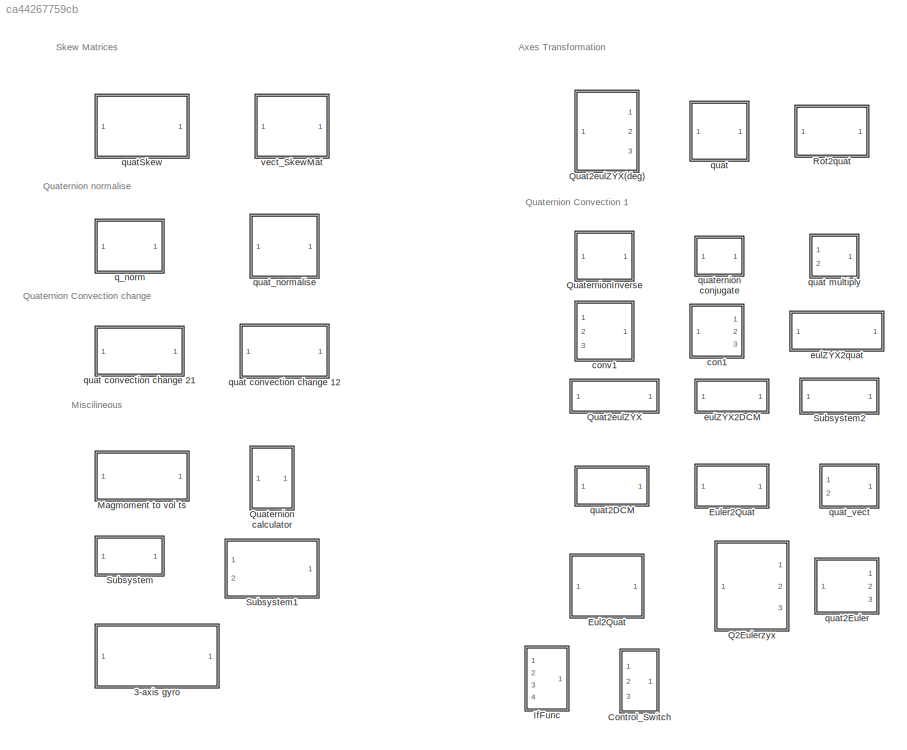
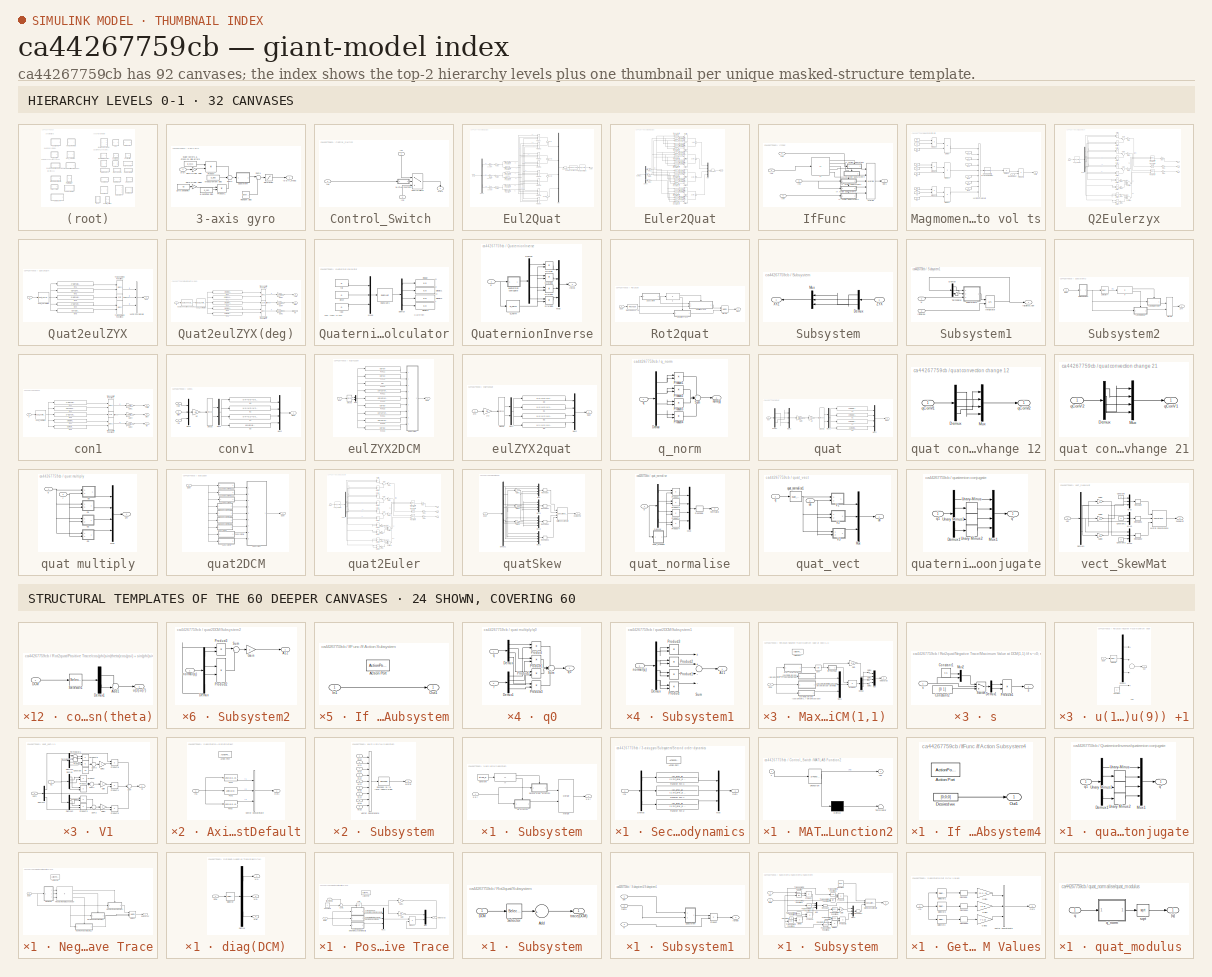
[diagram: thumbnail index - top-2 hierarchy levels (32 canvases) + 24 structural-template representatives of the remaining 60 canvases]
MODEL slx_ca44267759cb
KIND library
CONFIG AbsTol = auto
CONFIG EnableMultiTasking = on
CONFIG FixedStep = auto
CONFIG MaxStep = auto
CONFIG MinStep = auto
CONFIG RelTol = 1e-3
CONFIG SampleTimeConstraint = Unconstrained
CONFIG Solver = VariableStepAuto
CONFIG SolverName = VariableStepAuto
CONFIG StartTime = 0.0
CONFIG StopTime = 10.0
BLOCK [SubSystem] 3-axis gyro
  Ports = [1, 1]
  RequestExecContextInheritance = off
BLOCK [Outport] 3-axis gyro/(p q r)_meas
  IconDisplay = Port number
BLOCK [Constant] 3-axis gyro/Measurement bias
  Value = g_bias
BLOCK [Product] 3-axis gyro/Product
  InputSameDT = off
  Multiplication = Matrix(*)
  Ports = [2, 1]
  RndMeth = Floor
BLOCK [Product] 3-axis gyro/Product1
  InputSameDT = off
  Ports = [2, 1]
  RndMeth = Floor
BLOCK [Reference] 3-axis gyro/Random bias  REF=simulink/Sources/Band-Limited
White Noise
  Ports = [0, 1]
  SourceBlock = simulink/Sources/Band-Limited\nWhite Noise
  SourceProductBaseCode = SL
  SourceProductName = Simulink
  SourceType = Band-Limited White Noise.
BLOCK [Saturate] 3-axis gyro/Saturation
  InputPortMap = u0
  LowerLimit = g_satl
  Ports = [1, 1]
  UpperLimit = g_sath
BLOCK [Constant] 3-axis gyro/Scale factors & Cross-coupling errors 
  Value = g_sf_cc
BLOCK [SubSystem] 3-axis gyro/Subsystem
  Ports = [1, 1]
  RequestExecContextInheritance = off
BLOCK [Constant] 3-axis gyro/Subsystem/Constant
  Value = dtype_g
BLOCK [If] 3-axis gyro/Subsystem/If
  IfExpression = u1 == 1
  Ports = [1, 2]
BLOCK [Merge] 3-axis gyro/Subsystem/Merge
  InitialOutput = [0; 0; 0]
  Ports = [2, 1]
BLOCK [SubSystem] 3-axis gyro/Subsystem/No dynamics
  Ports = [1, 1, 0, 0, 0, 0, 0, 1]
  RequestExecContextInheritance = off
  TreatAsAtomicUnit = on
BLOCK [ActionPort] 3-axis gyro/Subsystem/No dynamics/Action Port
BLOCK [Inport] 3-axis gyro/Subsystem/No dynamics/In1
  IconDisplay = Port number
BLOCK [Outport] 3-axis gyro/Subsystem/No dynamics/Out1
  IconDisplay = Port number
BLOCK [SubSystem] 3-axis gyro/Subsystem/Second order dynamics
  Ports = [1, 1, 0, 0, 0, 0, 0, 1]
  RequestExecContextInheritance = off
  TreatAsAtomicUnit = on
BLOCK [ActionPort] 3-axis gyro/Subsystem/Second order dynamics/Action Port
BLOCK [Demux] 3-axis gyro/Subsystem/Second order dynamics/Demux
  DisplayOption = bar
  Outputs = 3
  Ports = [1, 3]
BLOCK [Inport] 3-axis gyro/Subsystem/Second order dynamics/In1
  IconDisplay = Port number
BLOCK [Mux] 3-axis gyro/Subsystem/Second order dynamics/Mux
  DisplayOption = bar
  Inputs = 3
  Ports = [3, 1]
BLOCK [Outport] 3-axis gyro/Subsystem/Second order dynamics/Out1
  IconDisplay = Port number
BLOCK [TransferFcn] 3-axis gyro/Subsystem/Second order dynamics/Transfer Fcn X
  Denominator = [1 2*z_g*w_g  w_g*w_g]
  Numerator = [w_g*w_g]
BLOCK [TransferFcn] 3-axis gyro/Subsystem/Second order dynamics/Transfer Fcn Y
  Denominator = [1 2*z_g*w_g  w_g*w_g]
  Numerator = [w_g*w_g]
BLOCK [TransferFcn] 3-axis gyro/Subsystem/Second order dynamics/Transfer Fcn Z
  Denominator = [1 2*z_g*w_g  w_g*w_g]
  Numerator = [w_g*w_g]
BLOCK [Inport] 3-axis gyro/Subsystem/p q r
  IconDisplay = Port number
BLOCK [Outport] 3-axis gyro/Subsystem/p q r 
  IconDisplay = Port number
BLOCK [Sum] 3-axis gyro/Sum1
  IconShape = round
  InputSameDT = off
  Inputs = |++
  OutDataTypeStr = Inherit: Inherit via internal rule
  Ports = [2, 1]
BLOCK [Sum] 3-axis gyro/Sum4
  IconShape = round
  InputSameDT = off
  Inputs = +++
  OutDataTypeStr = Inherit: Inherit via internal rule
  Ports = [3, 1]
BLOCK [Gain] 3-axis gyro/Zero-Order Hold
BLOCK [Gain] 3-axis gyro/Zero-Order Hold1
BLOCK [Constant] 3-axis gyro/g-sensitive bias
  Value = g_sen
BLOCK [Constant] 3-axis gyro/gyro sensitivity
  Value = Gs
BLOCK [Inport] 3-axis gyro/p q r
  IconDisplay = Port number
  PortDimensions = 3
BLOCK [SubSystem] Control_Switch 
  Ports = [3, 1]
  RequestExecContextInheritance = off
BLOCK [Switch] Control_Switch /Control switch
  Criteria = u2 ~= 0
  InputSameDT = off
  SaturateOnIntegerOverflow = off
  Threshold = 10000
BLOCK [Inport] Control_Switch /In1
  IconDisplay = Port number
BLOCK [Inport] Control_Switch /In2
  IconDisplay = Port number
  Port = 2
BLOCK [Inport] Control_Switch /In3
  IconDisplay = Port number
  Port = 3
BLOCK [SubSystem] Control_Switch /MATLAB Function2
  ErrorFcn = Stateflow.Translate.translate
  PermitHierarchicalResolution = ExplicitOnly
  Ports = [1, 1]
  RequestExecContextInheritance = off
  SFBlockType = MATLAB Function
  TreatAsAtomicUnit = on
BLOCK [Demux] Control_Switch /MATLAB Function2/ Demux 
  Outputs = 1
  Ports = [1, 1]
BLOCK [S-Function] Control_Switch /MATLAB Function2/ SFunction 
  EnableBusSupport = off
  FunctionName = sf_sfun
  PortCounts = [1 2]
  Ports = [1, 2]
  SFcnIsStateOwnerBlock = off
  SFunctionDeploymentMode = off
  Tag = Stateflow S-Function My_library 17
BLOCK [Terminator] Control_Switch /MATLAB Function2/ Terminator 
BLOCK [Inport] Control_Switch /MATLAB Function2/x
  IconDisplay = Port number
BLOCK [Outport] Control_Switch /MATLAB Function2/yes
  IconDisplay = Port number
BLOCK [Outport] Control_Switch /Out1
  IconDisplay = Port number
BLOCK [SubSystem] Eul2Quat
  Commented = on
  Ports = [1, 1]
  RequestExecContextInheritance = off
BLOCK [Demux] Eul2Quat/Demux
  DisplayOption = bar
  Outputs = 3
  Ports = [1, 3]
BLOCK [Gain] Eul2Quat/Gain
  Gain = pi/180
  OutDataTypeStr = Inherit: Inherit via internal rule
  ParamDataTypeStr = Inherit: Inherit via internal rule
  SaturateOnIntegerOverflow = off
BLOCK [Gain] Eul2Quat/Gain1
  Gain = pi/180
  OutDataTypeStr = Inherit: Inherit via internal rule
  ParamDataTypeStr = Inherit: Inherit via internal rule
  SaturateOnIntegerOverflow = off
BLOCK [Gain] Eul2Quat/Gain2
  Gain = pi/180
  OutDataTypeStr = Inherit: Inherit via internal rule
  ParamDataTypeStr = Inherit: Inherit via internal rule
  SaturateOnIntegerOverflow = off
BLOCK [Gain] Eul2Quat/Gain3
  Gain = 1/2
  OutDataTypeStr = Inherit: Inherit via internal rule
  ParamDataTypeStr = Inherit: Inherit via internal rule
  SaturateOnIntegerOverflow = off
BLOCK [Gain] Eul2Quat/Gain4
  Gain = 1/2
  OutDataTypeStr = Inherit: Inherit via internal rule
  ParamDataTypeStr = Inherit: Inherit via internal rule
  SaturateOnIntegerOverflow = off
BLOCK [Gain] Eul2Quat/Gain5
  Gain = 1/2
  OutDataTypeStr = Inherit: Inherit via internal rule
  ParamDataTypeStr = Inherit: Inherit via internal rule
  SaturateOnIntegerOverflow = off
BLOCK [Mux] Eul2Quat/Mux
  DisplayOption = bar
  Ports = [4, 1]
BLOCK [Product] Eul2Quat/Product
  InputSameDT = off
  Inputs = 3
  OutDataTypeStr = Inherit: Inherit via internal rule
  Ports = [3, 1]
  RndMeth = Floor
  SaturateOnIntegerOverflow = off
BLOCK [Product] Eul2Quat/Product1
  InputSameDT = off
  Inputs = 3
  OutDataTypeStr = Inherit: Inherit via internal rule
  Ports = [3, 1]
  RndMeth = Floor
  SaturateOnIntegerOverflow = off
BLOCK [Product] Eul2Quat/Product2
  InputSameDT = off
  Inputs = 3
  OutDataTypeStr = Inherit: Inherit via internal rule
  Ports = [3, 1]
  RndMeth = Floor
  SaturateOnIntegerOverflow = off
BLOCK [Product] Eul2Quat/Product3
  InputSameDT = off
  Inputs = 3
  OutDataTypeStr = Inherit: Inherit via internal rule
  Ports = [3, 1]
  RndMeth = Floor
  SaturateOnIntegerOverflow = off
BLOCK [Product] Eul2Quat/Product4
  InputSameDT = off
  Inputs = 3
  OutDataTypeStr = Inherit: Inherit via internal rule
  Ports = [3, 1]
  RndMeth = Floor
  SaturateOnIntegerOverflow = off
BLOCK [Product] Eul2Quat/Product5
  InputSameDT = off
  Inputs = 3
  OutDataTypeStr = Inherit: Inherit via internal rule
  Ports = [3, 1]
  RndMeth = Floor
  SaturateOnIntegerOverflow = off
BLOCK [Product] Eul2Quat/Product6
  InputSameDT = off
  Inputs = 3
  OutDataTypeStr = Inherit: Inherit via internal rule
  Ports = [3, 1]
  RndMeth = Floor
  SaturateOnIntegerOverflow = off
BLOCK [Product] Eul2Quat/Product7
  InputSameDT = off
  Inputs = 3
  OutDataTypeStr = Inherit: Inherit via internal rule
  Ports = [3, 1]
  RndMeth = Floor
  SaturateOnIntegerOverflow = off
BLOCK [Reshape] Eul2Quat/Reshape
  Ports = [1, 1]
BLOCK [Sum] Eul2Quat/Sum
  IconShape = round
  InputSameDT = off
  Inputs = +|+
  OutDataTypeStr = Inherit: Inherit via internal rule
  Ports = [2, 1]
  SaturateOnIntegerOverflow = off
BLOCK [Sum] Eul2Quat/Sum1
  IconShape = round
  InputSameDT = off
  Inputs = +|-
  OutDataTypeStr = Inherit: Inherit via internal rule
  Ports = [2, 1]
  SaturateOnIntegerOverflow = off
BLOCK [Sum] Eul2Quat/Sum2
  IconShape = round
  InputSameDT = off
  Inputs = +|+
  OutDataTypeStr = Inherit: Inherit via internal rule
  Ports = [2, 1]
  SaturateOnIntegerOverflow = off
BLOCK [Sum] Eul2Quat/Sum3
  IconShape = round
  InputSameDT = off
  Inputs = +|-
  OutDataTypeStr = Inherit: Inherit via internal rule
  Ports = [2, 1]
  SaturateOnIntegerOverflow = off
BLOCK [Trigonometry] Eul2Quat/Trigonometric Function
  Ports = [1, 1]
BLOCK [Trigonometry] Eul2Quat/Trigonometric Function1
  Ports = [1, 1]
BLOCK [Trigonometry] Eul2Quat/Trigonometric Function2
  Ports = [1, 1]
BLOCK [Trigonometry] Eul2Quat/Trigonometric Function3
  Operator = cos
  Ports = [1, 1]
BLOCK [Trigonometry] Eul2Quat/Trigonometric Function4
  Operator = cos
  Ports = [1, 1]
BLOCK [Trigonometry] Eul2Quat/Trigonometric Function5
  Operator = cos
  Ports = [1, 1]
BLOCK [Inport] Eul2Quat/euler
  IconDisplay = Port number
BLOCK [Outport] Eul2Quat/quat
  IconDisplay = Port number
BLOCK [Reference] Eul2Quat/quat convection change 12  REF=$bdroot/quat convection change 12
  Ports = [1, 1]
  SourceBlock = $bdroot/quat convection change 12
BLOCK [Reference] Eul2Quat/quat_normalise  REF=$bdroot/quat_normalise
  Ports = [1, 1]
  SourceBlock = $bdroot/quat_normalise
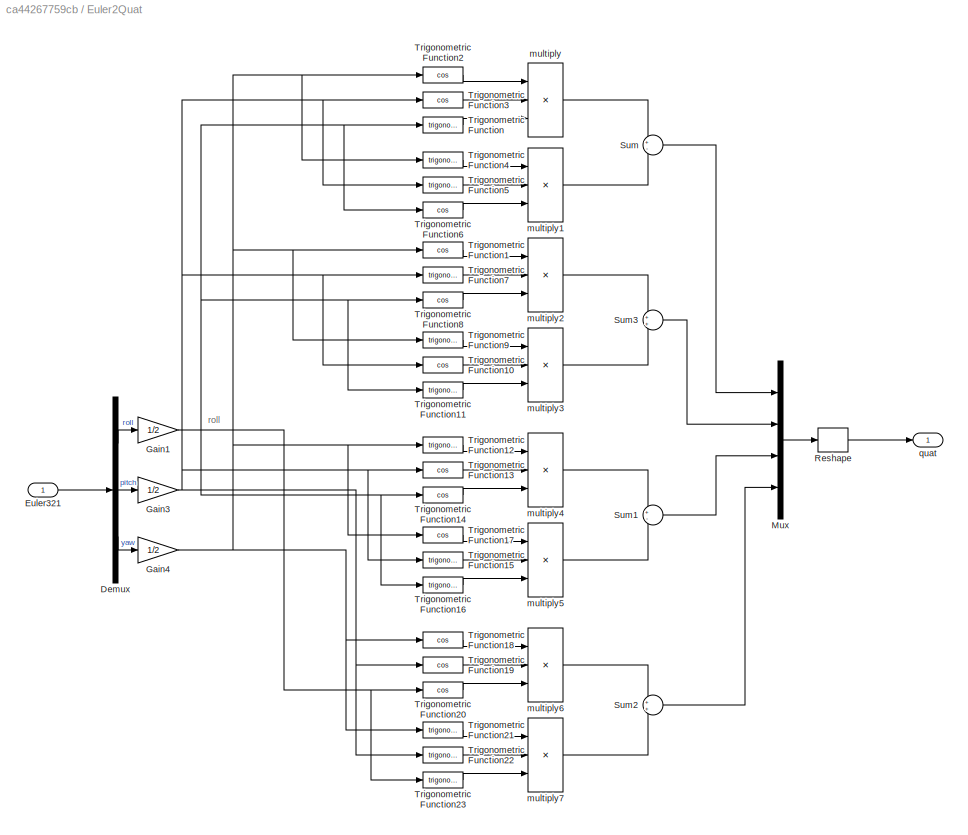
BLOCK [SubSystem] Euler2Quat
  Commented = on
  Ports = [1, 1]
  RequestExecContextInheritance = off
BLOCK [Demux] Euler2Quat/Demux
  DisplayOption = bar
  Outputs = 3
  Ports = [1, 3]
BLOCK [Inport] Euler2Quat/Euler321
  IconDisplay = Port number
BLOCK [Gain] Euler2Quat/Gain1
  Gain = 1/2
  OutDataTypeStr = Inherit: Inherit via internal rule
  ParamDataTypeStr = Inherit: Inherit via internal rule
  SaturateOnIntegerOverflow = off
BLOCK [Gain] Euler2Quat/Gain3
  Gain = 1/2
  OutDataTypeStr = Inherit: Inherit via internal rule
  ParamDataTypeStr = Inherit: Inherit via internal rule
  SaturateOnIntegerOverflow = off
BLOCK [Gain] Euler2Quat/Gain4
  Gain = 1/2
  OutDataTypeStr = Inherit: Inherit via internal rule
  ParamDataTypeStr = Inherit: Inherit via internal rule
  SaturateOnIntegerOverflow = off
BLOCK [Mux] Euler2Quat/Mux
  DisplayOption = bar
  Ports = [4, 1]
BLOCK [Reshape] Euler2Quat/Reshape
  Ports = [1, 1]
BLOCK [Sum] Euler2Quat/Sum
  IconShape = round
  InputSameDT = off
  Inputs = +-
  OutDataTypeStr = Inherit: Inherit via internal rule
  Ports = [2, 1]
  SaturateOnIntegerOverflow = off
BLOCK [Sum] Euler2Quat/Sum1
  IconShape = round
  InputSameDT = off
  Inputs = +-
  OutDataTypeStr = Inherit: Inherit via internal rule
  Ports = [2, 1]
  SaturateOnIntegerOverflow = off
BLOCK [Sum] Euler2Quat/Sum2
  IconShape = round
  InputSameDT = off
  OutDataTypeStr = Inherit: Inherit via internal rule
  Ports = [2, 1]
  SaturateOnIntegerOverflow = off
BLOCK [Sum] Euler2Quat/Sum3
  IconShape = round
  InputSameDT = off
  OutDataTypeStr = Inherit: Inherit via internal rule
  Ports = [2, 1]
  SaturateOnIntegerOverflow = off
BLOCK [Trigonometry] Euler2Quat/Trigonometric Function
  Ports = [1, 1]
BLOCK [Trigonometry] Euler2Quat/Trigonometric Function1
  Operator = cos
  Ports = [1, 1]
BLOCK [Trigonometry] Euler2Quat/Trigonometric Function10
  Operator = cos
  Ports = [1, 1]
BLOCK [Trigonometry] Euler2Quat/Trigonometric Function11
  Ports = [1, 1]
BLOCK [Trigonometry] Euler2Quat/Trigonometric Function12
  Ports = [1, 1]
BLOCK [Trigonometry] Euler2Quat/Trigonometric Function13
  Operator = cos
  Ports = [1, 1]
BLOCK [Trigonometry] Euler2Quat/Trigonometric Function14
  Operator = cos
  Ports = [1, 1]
BLOCK [Trigonometry] Euler2Quat/Trigonometric Function15
  Ports = [1, 1]
BLOCK [Trigonometry] Euler2Quat/Trigonometric Function16
  Ports = [1, 1]
BLOCK [Trigonometry] Euler2Quat/Trigonometric Function17
  Operator = cos
  Ports = [1, 1]
BLOCK [Trigonometry] Euler2Quat/Trigonometric Function18
  Operator = cos
  Ports = [1, 1]
BLOCK [Trigonometry] Euler2Quat/Trigonometric Function19
  Operator = cos
  Ports = [1, 1]
BLOCK [Trigonometry] Euler2Quat/Trigonometric Function2
  Operator = cos
  Ports = [1, 1]
BLOCK [Trigonometry] Euler2Quat/Trigonometric Function20
  Operator = cos
  Ports = [1, 1]
BLOCK [Trigonometry] Euler2Quat/Trigonometric Function21
  Ports = [1, 1]
BLOCK [Trigonometry] Euler2Quat/Trigonometric Function22
  Ports = [1, 1]
BLOCK [Trigonometry] Euler2Quat/Trigonometric Function23
  Ports = [1, 1]
BLOCK [Trigonometry] Euler2Quat/Trigonometric Function3
  Operator = cos
  Ports = [1, 1]
BLOCK [Trigonometry] Euler2Quat/Trigonometric Function4
  Ports = [1, 1]
BLOCK [Trigonometry] Euler2Quat/Trigonometric Function5
  Ports = [1, 1]
BLOCK [Trigonometry] Euler2Quat/Trigonometric Function6
  Operator = cos
  Ports = [1, 1]
BLOCK [Trigonometry] Euler2Quat/Trigonometric Function7
  Ports = [1, 1]
BLOCK [Trigonometry] Euler2Quat/Trigonometric Function8
  Operator = cos
  Ports = [1, 1]
BLOCK [Trigonometry] Euler2Quat/Trigonometric Function9
  Ports = [1, 1]
BLOCK [Product] Euler2Quat/multiply
  InputSameDT = off
  Inputs = ***
  OutDataTypeStr = Inherit: Inherit via internal rule
  Ports = [3, 1]
  RndMeth = Floor
  SaturateOnIntegerOverflow = off
BLOCK [Product] Euler2Quat/multiply1
  InputSameDT = off
  Inputs = ***
  OutDataTypeStr = Inherit: Inherit via internal rule
  Ports = [3, 1]
  RndMeth = Floor
  SaturateOnIntegerOverflow = off
BLOCK [Product] Euler2Quat/multiply2
  InputSameDT = off
  Inputs = ***
  OutDataTypeStr = Inherit: Inherit via internal rule
  Ports = [3, 1]
  RndMeth = Floor
  SaturateOnIntegerOverflow = off
BLOCK [Product] Euler2Quat/multiply3
  InputSameDT = off
  Inputs = ***
  OutDataTypeStr = Inherit: Inherit via internal rule
  Ports = [3, 1]
  RndMeth = Floor
  SaturateOnIntegerOverflow = off
BLOCK [Product] Euler2Quat/multiply4
  InputSameDT = off
  Inputs = ***
  OutDataTypeStr = Inherit: Inherit via internal rule
  Ports = [3, 1]
  RndMeth = Floor
  SaturateOnIntegerOverflow = off
BLOCK [Product] Euler2Quat/multiply5
  InputSameDT = off
  Inputs = ***
  OutDataTypeStr = Inherit: Inherit via internal rule
  Ports = [3, 1]
  RndMeth = Floor
  SaturateOnIntegerOverflow = off
BLOCK [Product] Euler2Quat/multiply6
  InputSameDT = off
  Inputs = ***
  OutDataTypeStr = Inherit: Inherit via internal rule
  Ports = [3, 1]
  RndMeth = Floor
  SaturateOnIntegerOverflow = off
BLOCK [Product] Euler2Quat/multiply7
  InputSameDT = off
  Inputs = ***
  OutDataTypeStr = Inherit: Inherit via internal rule
  Ports = [3, 1]
  RndMeth = Floor
  SaturateOnIntegerOverflow = off
BLOCK [Outport] Euler2Quat/quat
  IconDisplay = Port number
BLOCK [SubSystem] IfFunc 
  Ports = [4, 1]
  RequestExecContextInheritance = off
BLOCK [If] IfFunc /If
  ElseIfExpressions = u1 == 3, u1 ==1, u1 == 4
  IfExpression = u1 == 2
  Ports = [1, 5]
BLOCK [SubSystem] IfFunc /If Action Subsystem
  Ports = [1, 1, 0, 0, 0, 0, 0, 1]
  RequestExecContextInheritance = off
  TreatAsAtomicUnit = on
BLOCK [ActionPort] IfFunc /If Action Subsystem/Action Port
BLOCK [Inport] IfFunc /If Action Subsystem/In1
  IconDisplay = Port number
BLOCK [Outport] IfFunc /If Action Subsystem/Out1
  IconDisplay = Port number
BLOCK [SubSystem] IfFunc /If Action Subsystem1
  Ports = [1, 1, 0, 0, 0, 0, 0, 1]
  RequestExecContextInheritance = off
  TreatAsAtomicUnit = on
BLOCK [ActionPort] IfFunc /If Action Subsystem1/Action Port
BLOCK [Inport] IfFunc /If Action Subsystem1/In1
  IconDisplay = Port number
BLOCK [Outport] IfFunc /If Action Subsystem1/Out1
  IconDisplay = Port number
BLOCK [SubSystem] IfFunc /If Action Subsystem2
  Ports = [1, 1, 0, 0, 0, 0, 0, 1]
  RequestExecContextInheritance = off
  TreatAsAtomicUnit = on
BLOCK [ActionPort] IfFunc /If Action Subsystem2/Action Port
BLOCK [Inport] IfFunc /If Action Subsystem2/In1
  IconDisplay = Port number
BLOCK [Outport] IfFunc /If Action Subsystem2/Out1
  IconDisplay = Port number
BLOCK [SubSystem] IfFunc /If Action Subsystem3
  Ports = [1, 1, 0, 0, 0, 0, 0, 1]
  RequestExecContextInheritance = off
  TreatAsAtomicUnit = on
BLOCK [ActionPort] IfFunc /If Action Subsystem3/Action Port
BLOCK [Inport] IfFunc /If Action Subsystem3/In1
  IconDisplay = Port number
BLOCK [Outport] IfFunc /If Action Subsystem3/Out1
  IconDisplay = Port number
BLOCK [SubSystem] IfFunc /If Action Subsystem4
  Ports = [0, 1, 0, 0, 0, 0, 0, 1]
  RequestExecContextInheritance = off
  TreatAsAtomicUnit = on
BLOCK [ActionPort] IfFunc /If Action Subsystem4/Action Port
BLOCK [Constant] IfFunc /If Action Subsystem4/Desired wx
  Value = [0;0;0]
BLOCK [Outport] IfFunc /If Action Subsystem4/Out1
  IconDisplay = Port number
BLOCK [Inport] IfFunc /In1
  IconDisplay = Port number
BLOCK [Inport] IfFunc /In2
  IconDisplay = Port number
  Port = 2
BLOCK [Inport] IfFunc /In3
  IconDisplay = Port number
  Port = 3
BLOCK [Inport] IfFunc /In4
  IconDisplay = Port number
  Port = 4
BLOCK [Merge] IfFunc /Merge
  InitialOutput = [0;0;0]
  Inputs = 5
  Ports = [5, 1]
BLOCK [Outport] IfFunc /Out1
  IconDisplay = Port number
BLOCK [SubSystem] Magmoment to vol ts
  Ports = [1, 1]
  RequestExecContextInheritance = off
BLOCK [Constant] Magmoment to vol ts/Ax
  Value = Ax
BLOCK [Constant] Magmoment to vol ts/Ay
  Value = Ay
BLOCK [Constant] Magmoment to vol ts/Az
  Value = Az
BLOCK [Product] Magmoment to vol ts/Divide
  InputSameDT = off
  Inputs = */
  OutDataTypeStr = Inherit: Inherit via internal rule
  Ports = [2, 1]
  RndMeth = Floor
  SaturateOnIntegerOverflow = off
BLOCK [Product] Magmoment to vol ts/Divide1
  InputSameDT = off
  Inputs = */
  OutDataTypeStr = Inherit: Inherit via internal rule
  Ports = [2, 1]
  RndMeth = Floor
  SaturateOnIntegerOverflow = off
BLOCK [Product] Magmoment to vol ts/Divide2
  InputSameDT = off
  Inputs = */
  OutDataTypeStr = Inherit: Inherit via internal rule
  Ports = [2, 1]
  RndMeth = Floor
  SaturateOnIntegerOverflow = off
BLOCK [Product] Magmoment to vol ts/Divide3
  InputSameDT = off
  Inputs = /
  Multiplication = Matrix(*)
  OutDataTypeStr = Inherit: Inherit via internal rule
  Ports = [1, 1]
  RndMeth = Floor
  SaturateOnIntegerOverflow = off
BLOCK [Inport] Magmoment to vol ts/Magmoment
  IconDisplay = Port number
BLOCK [Constant] Magmoment to vol ts/Nx
  Value = Nx
BLOCK [Constant] Magmoment to vol ts/Ny
  Value = Ny
BLOCK [Constant] Magmoment to vol ts/Nz
  Value = Nz
BLOCK [Product] Magmoment to vol ts/Product
  InputSameDT = off
  OutDataTypeStr = Inherit: Inherit via internal rule
  Ports = [2, 1]
  RndMeth = Floor
  SaturateOnIntegerOverflow = off
BLOCK [Product] Magmoment to vol ts/Product1
  InputSameDT = off
  OutDataTypeStr = Inherit: Inherit via internal rule
  Ports = [2, 1]
  RndMeth = Floor
  SaturateOnIntegerOverflow = off
BLOCK [Product] Magmoment to vol ts/Product2
  InputSameDT = off
  OutDataTypeStr = Inherit: Inherit via internal rule
  Ports = [2, 1]
  RndMeth = Floor
  SaturateOnIntegerOverflow = off
BLOCK [Product] Magmoment to vol ts/Product3
  InputSameDT = off
  OutDataTypeStr = Inherit: Inherit via internal rule
  Ports = [2, 1]
  RndMeth = Floor
  SaturateOnIntegerOverflow = off
BLOCK [Reshape] Magmoment to vol ts/Reshape (9) to [3x3] column-major
  OutputDimensionality = Customize
  OutputDimensions = [3,3]
  Ports = [1, 1]
BLOCK [Constant] Magmoment to vol ts/Rx
  Value = Rx
BLOCK [Constant] Magmoment to vol ts/Rx1
  Value = 0
BLOCK [Constant] Magmoment to vol ts/Rx2
  Value = 0
BLOCK [Constant] Magmoment to vol ts/Rx3
  Value = 0
BLOCK [Constant] Magmoment to vol ts/Rx4
  Value = 0
BLOCK [Constant] Magmoment to vol ts/Rx5
  Value = 0
BLOCK [Constant] Magmoment to vol ts/Rx6
  Value = 0
BLOCK [Constant] Magmoment to vol ts/Ry
  Value = Ry
BLOCK [Constant] Magmoment to vol ts/Rz
  Value = Rz
BLOCK [Concatenate] Magmoment to vol ts/Vector Concatenate
  NumInputs = 9
  Ports = [9, 1]
BLOCK [Outport] Magmoment to vol ts/Volts
  IconDisplay = Port number
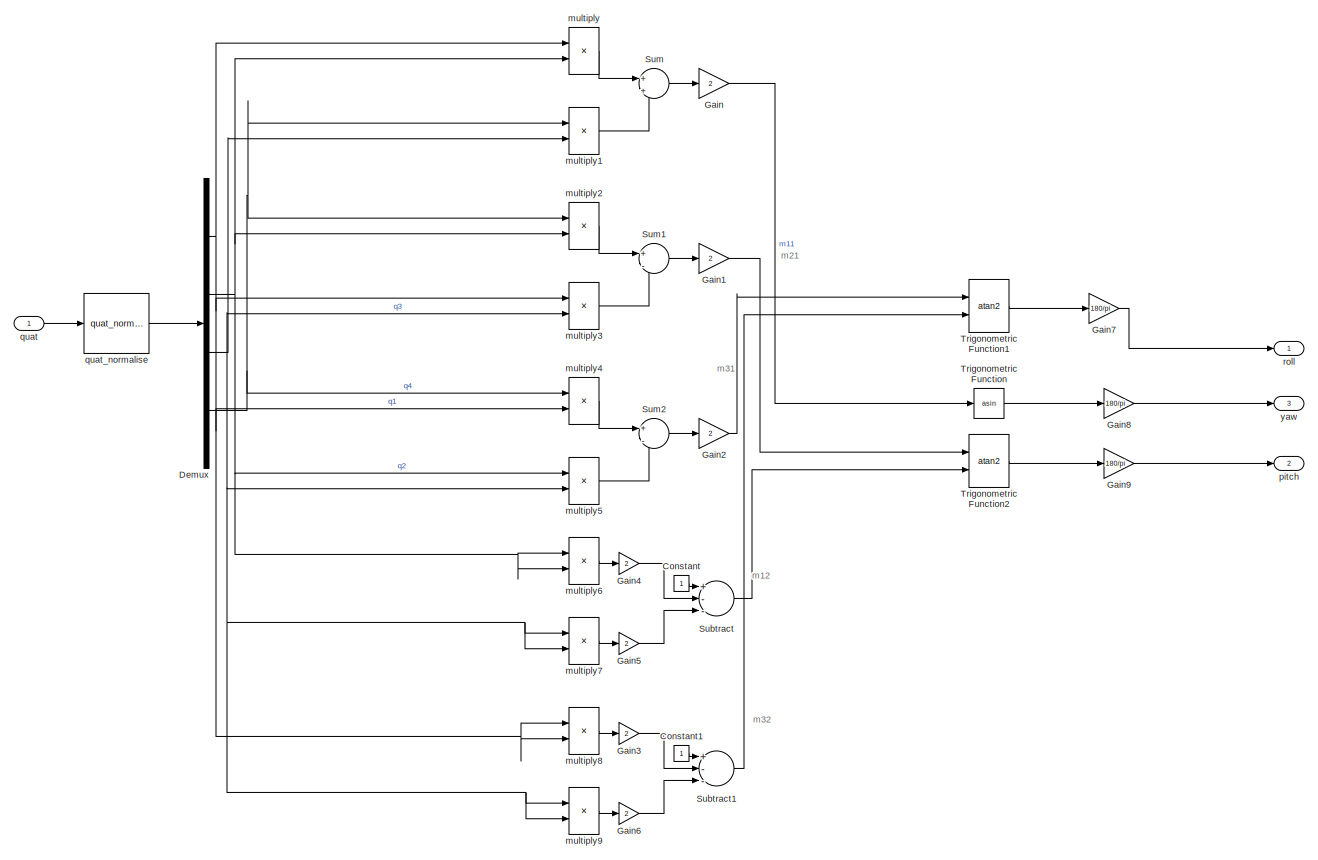
[diagram: Q2Eulerzyx - part 1/1, most of the canvas]
BLOCK [SubSystem] Q2Eulerzyx
  Commented = on
  Ports = [1, 3]
  RequestExecContextInheritance = off
BLOCK [Constant] Q2Eulerzyx/Constant
BLOCK [Constant] Q2Eulerzyx/Constant1
BLOCK [Demux] Q2Eulerzyx/Demux
  DisplayOption = bar
  Ports = [1, 4]
BLOCK [Gain] Q2Eulerzyx/Gain
  Gain = 2
  OutDataTypeStr = Inherit: Inherit via internal rule
  ParamDataTypeStr = Inherit: Inherit via internal rule
  SaturateOnIntegerOverflow = off
BLOCK [Gain] Q2Eulerzyx/Gain1
  Gain = 2
  OutDataTypeStr = Inherit: Inherit via internal rule
  ParamDataTypeStr = Inherit: Inherit via internal rule
  SaturateOnIntegerOverflow = off
BLOCK [Gain] Q2Eulerzyx/Gain2
  Gain = 2
  OutDataTypeStr = Inherit: Inherit via internal rule
  ParamDataTypeStr = Inherit: Inherit via internal rule
  SaturateOnIntegerOverflow = off
BLOCK [Gain] Q2Eulerzyx/Gain3
  Gain = 2
  OutDataTypeStr = Inherit: Inherit via internal rule
  ParamDataTypeStr = Inherit: Inherit via internal rule
  SaturateOnIntegerOverflow = off
BLOCK [Gain] Q2Eulerzyx/Gain4
  Gain = 2
  OutDataTypeStr = Inherit: Inherit via internal rule
  ParamDataTypeStr = Inherit: Inherit via internal rule
  SaturateOnIntegerOverflow = off
BLOCK [Gain] Q2Eulerzyx/Gain5
  Gain = 2
  OutDataTypeStr = Inherit: Inherit via internal rule
  ParamDataTypeStr = Inherit: Inherit via internal rule
  SaturateOnIntegerOverflow = off
BLOCK [Gain] Q2Eulerzyx/Gain6
  Gain = 2
  OutDataTypeStr = Inherit: Inherit via internal rule
  ParamDataTypeStr = Inherit: Inherit via internal rule
  SaturateOnIntegerOverflow = off
BLOCK [Gain] Q2Eulerzyx/Gain7
  Gain = 180/pi
  OutDataTypeStr = Inherit: Inherit via internal rule
  ParamDataTypeStr = Inherit: Inherit via internal rule
  SaturateOnIntegerOverflow = off
BLOCK [Gain] Q2Eulerzyx/Gain8
  Gain = 180/pi
  OutDataTypeStr = Inherit: Inherit via internal rule
  ParamDataTypeStr = Inherit: Inherit via internal rule
  SaturateOnIntegerOverflow = off
BLOCK [Gain] Q2Eulerzyx/Gain9
  Gain = 180/pi
  OutDataTypeStr = Inherit: Inherit via internal rule
  ParamDataTypeStr = Inherit: Inherit via internal rule
  SaturateOnIntegerOverflow = off
BLOCK [Sum] Q2Eulerzyx/Subtract
  InputSameDT = off
  Inputs = +--
  OutDataTypeStr = Inherit: Inherit via internal rule
  Ports = [3, 1]
  SaturateOnIntegerOverflow = off
BLOCK [Sum] Q2Eulerzyx/Subtract1
  InputSameDT = off
  Inputs = +--
  OutDataTypeStr = Inherit: Inherit via internal rule
  Ports = [3, 1]
  SaturateOnIntegerOverflow = off
BLOCK [Sum] Q2Eulerzyx/Sum
  IconShape = round
  InputSameDT = off
  Inputs = +|+
  OutDataTypeStr = Inherit: Inherit via internal rule
  Ports = [2, 1]
  SaturateOnIntegerOverflow = off
BLOCK [Sum] Q2Eulerzyx/Sum1
  IconShape = round
  InputSameDT = off
  Inputs = +|-
  OutDataTypeStr = Inherit: Inherit via internal rule
  Ports = [2, 1]
  SaturateOnIntegerOverflow = off
BLOCK [Sum] Q2Eulerzyx/Sum2
  IconShape = round
  InputSameDT = off
  Inputs = +|-
  OutDataTypeStr = Inherit: Inherit via internal rule
  Ports = [2, 1]
  SaturateOnIntegerOverflow = off
BLOCK [Trigonometry] Q2Eulerzyx/Trigonometric Function
  Operator = asin
  Ports = [1, 1]
BLOCK [Trigonometry] Q2Eulerzyx/Trigonometric Function1
  Operator = atan2
  Ports = [2, 1]
BLOCK [Trigonometry] Q2Eulerzyx/Trigonometric Function2
  Operator = atan2
  Ports = [2, 1]
BLOCK [Product] Q2Eulerzyx/multiply
  InputSameDT = off
  Inputs = **
  OutDataTypeStr = Inherit: Inherit via internal rule
  Ports = [2, 1]
  RndMeth = Floor
  SaturateOnIntegerOverflow = off
BLOCK [Product] Q2Eulerzyx/multiply1
  InputSameDT = off
  Inputs = **
  OutDataTypeStr = Inherit: Inherit via internal rule
  Ports = [2, 1]
  RndMeth = Floor
  SaturateOnIntegerOverflow = off
BLOCK [Product] Q2Eulerzyx/multiply2
  InputSameDT = off
  Inputs = **
  OutDataTypeStr = Inherit: Inherit via internal rule
  Ports = [2, 1]
  RndMeth = Floor
  SaturateOnIntegerOverflow = off
BLOCK [Product] Q2Eulerzyx/multiply3
  InputSameDT = off
  Inputs = **
  OutDataTypeStr = Inherit: Inherit via internal rule
  Ports = [2, 1]
  RndMeth = Floor
  SaturateOnIntegerOverflow = off
BLOCK [Product] Q2Eulerzyx/multiply4
  InputSameDT = off
  Inputs = **
  OutDataTypeStr = Inherit: Inherit via internal rule
  Ports = [2, 1]
  RndMeth = Floor
  SaturateOnIntegerOverflow = off
BLOCK [Product] Q2Eulerzyx/multiply5
  InputSameDT = off
  Inputs = **
  OutDataTypeStr = Inherit: Inherit via internal rule
  Ports = [2, 1]
  RndMeth = Floor
  SaturateOnIntegerOverflow = off
BLOCK [Product] Q2Eulerzyx/multiply6
  InputSameDT = off
  Inputs = **
  OutDataTypeStr = Inherit: Inherit via internal rule
  Ports = [2, 1]
  RndMeth = Floor
  SaturateOnIntegerOverflow = off
BLOCK [Product] Q2Eulerzyx/multiply7
  InputSameDT = off
  Inputs = **
  OutDataTypeStr = Inherit: Inherit via internal rule
  Ports = [2, 1]
  RndMeth = Floor
  SaturateOnIntegerOverflow = off
BLOCK [Product] Q2Eulerzyx/multiply8
  InputSameDT = off
  Inputs = **
  OutDataTypeStr = Inherit: Inherit via internal rule
  Ports = [2, 1]
  RndMeth = Floor
  SaturateOnIntegerOverflow = off
BLOCK [Product] Q2Eulerzyx/multiply9
  InputSameDT = off
  Inputs = **
  OutDataTypeStr = Inherit: Inherit via internal rule
  Ports = [2, 1]
  RndMeth = Floor
  SaturateOnIntegerOverflow = off
BLOCK [Outport] Q2Eulerzyx/pitch
  IconDisplay = Port number
  Port = 2
BLOCK [Inport] Q2Eulerzyx/quat
  IconDisplay = Port number
BLOCK [Reference] Q2Eulerzyx/quat_normalise  REF=$bdroot/quat_normalise
  Ports = [1, 1]
  SourceBlock = $bdroot/quat_normalise
BLOCK [Outport] Q2Eulerzyx/roll
  IconDisplay = Port number
BLOCK [Outport] Q2Eulerzyx/yaw
  IconDisplay = Port number
  Port = 3
BLOCK [SubSystem] Quat2eulZYX
  Ports = [1, 1]
  RequestExecContextInheritance = off
BLOCK [SubSystem] Quat2eulZYX(deg)
  Ports = [1, 3]
  RequestExecContextInheritance = off
BLOCK [Gain] Quat2eulZYX(deg)/Gain1
  Gain = 180/pi
  OutDataTypeStr = Inherit: Inherit via internal rule
  ParamDataTypeStr = Inherit: Inherit via internal rule
  SaturateOnIntegerOverflow = off
BLOCK [Gain] Quat2eulZYX(deg)/Gain2
  Gain = 180/pi
  OutDataTypeStr = Inherit: Inherit via internal rule
  ParamDataTypeStr = Inherit: Inherit via internal rule
  SaturateOnIntegerOverflow = off
BLOCK [Gain] Quat2eulZYX(deg)/Gain4
  Gain = 180/pi
  OutDataTypeStr = Inherit: Inherit via internal rule
  ParamDataTypeStr = Inherit: Inherit via internal rule
  SaturateOnIntegerOverflow = off
BLOCK [Trigonometry] Quat2eulZYX(deg)/Trigonometric Function1
  Operator = atan2
  Ports = [2, 1]
BLOCK [Trigonometry] Quat2eulZYX(deg)/Trigonometric Function3
  Operator = atan2
  Ports = [2, 1]
BLOCK [Fcn] Quat2eulZYX(deg)/fcn1
  Expr = 2*(u[2]*u[3] + u[1]*u[4])
BLOCK [Fcn] Quat2eulZYX(deg)/fcn2
  Expr = u[1]*u[1] + u[2]*u[2] - u[3]*u[3] - u[4]*u[4]
BLOCK [Fcn] Quat2eulZYX(deg)/fcn3
  Expr = -2*(u[2]*u[4] - u[1]*u[3])
BLOCK [Fcn] Quat2eulZYX(deg)/fcn4
  Expr = 2*(u[3]*u[4] + u[1]*u[2])
BLOCK [Fcn] Quat2eulZYX(deg)/fcn5
  Expr = u[1]*u[1] - u[2]*u[2] - u[3]*u[3] + u[4]*u[4]
BLOCK [Outport] Quat2eulZYX(deg)/pitch
  IconDisplay = Port number
  Port = 2
BLOCK [Inport] Quat2eulZYX(deg)/q
  IconDisplay = Port number
BLOCK [Reference] Quat2eulZYX(deg)/quat convection change 21  REF=$bdroot/quat convection change 21
  Ports = [1, 1]
  SourceBlock = $bdroot/quat convection change 21
BLOCK [Reference] Quat2eulZYX(deg)/quat_normalise  REF=$bdroot/quat_normalise
  Ports = [1, 1]
  SourceBlock = $bdroot/quat_normalise
BLOCK [Outport] Quat2eulZYX(deg)/roll
  IconDisplay = Port number
BLOCK [Trigonometry] Quat2eulZYX(deg)/trigFcn
  Operator = asin
  Ports = [1, 1]
BLOCK [Outport] Quat2eulZYX(deg)/yaw
  IconDisplay = Port number
  Port = 3
BLOCK [Trigonometry] Quat2eulZYX/Trigonometric Function1
  Operator = atan2
  Ports = [2, 1]
BLOCK [Trigonometry] Quat2eulZYX/Trigonometric Function3
  Operator = atan2
  Ports = [2, 1]
BLOCK [Concatenate] Quat2eulZYX/Vector Concatenate
  NumInputs = 3
  Ports = [3, 1]
BLOCK [Outport] Quat2eulZYX/ZYX
  IconDisplay = Port number
BLOCK [Fcn] Quat2eulZYX/fcn1
  Expr = 2*(u[2]*u[3] + u[1]*u[4])
BLOCK [Fcn] Quat2eulZYX/fcn2
  Expr = u[1]*u[1] + u[2]*u[2] - u[3]*u[3] - u[4]*u[4]
BLOCK [Fcn] Quat2eulZYX/fcn3
  Expr = -2*(u[2]*u[4] - u[1]*u[3])
BLOCK [Fcn] Quat2eulZYX/fcn4
  Expr = 2*(u[3]*u[4] + u[1]*u[2])
BLOCK [Fcn] Quat2eulZYX/fcn5
  Expr = u[1]*u[1] - u[2]*u[2] - u[3]*u[3] + u[4]*u[4]
BLOCK [Inport] Quat2eulZYX/q
  IconDisplay = Port number
BLOCK [Reference] Quat2eulZYX/quat_normalise  REF=$bdroot/quat_normalise
  Ports = [1, 1]
  SourceBlock = $bdroot/quat_normalise
BLOCK [Trigonometry] Quat2eulZYX/trigFcn
  Operator = asin
  Ports = [1, 1]
BLOCK [SubSystem] Quaternion calculator
  Ports = []
  RequestExecContextInheritance = off
BLOCK [Constant] Quaternion calculator/ pitch
  Value = 0
BLOCK [Constant] Quaternion calculator/ roll
  Value = 0
BLOCK [Constant] Quaternion calculator/ yaw
  Value = 0
BLOCK [Demux] Quaternion calculator/Demux
  DisplayOption = bar
  Ports = [1, 4]
BLOCK [Display] Quaternion calculator/Display
  Decimation = 1
  Ports = [1]
BLOCK [Display] Quaternion calculator/Display1
  Decimation = 1
  Ports = [1]
BLOCK [Display] Quaternion calculator/Display2
  Decimation = 1
  Ports = [1]
BLOCK [Display] Quaternion calculator/Display3
  Decimation = 1
  Ports = [1]
BLOCK [Reference] Quaternion calculator/Eul2Quat1  REF=$bdroot/Eul2Quat
  Ports = [1, 1]
  SourceBlock = $bdroot/Eul2Quat
BLOCK [Mux] Quaternion calculator/Mux6
  DisplayOption = bar
  Inputs = 3
  Ports = [3, 1]
BLOCK [SubSystem] QuaternionInverse
  Ports = [1, 1]
  RequestExecContextInheritance = off
BLOCK [Demux] QuaternionInverse/Demux
  DisplayOption = bar
  Ports = [1, 4]
BLOCK [Product] QuaternionInverse/Divide
  InputSameDT = off
  Inputs = */
  OutDataTypeStr = Inherit: Inherit via internal rule
  Ports = [2, 1]
  RndMeth = Floor
  SaturateOnIntegerOverflow = off
BLOCK [Product] QuaternionInverse/Divide1
  InputSameDT = off
  Inputs = */
  OutDataTypeStr = Inherit: Inherit via internal rule
  Ports = [2, 1]
  RndMeth = Floor
  SaturateOnIntegerOverflow = off
BLOCK [Product] QuaternionInverse/Divide2
  InputSameDT = off
  Inputs = */
  OutDataTypeStr = Inherit: Inherit via internal rule
  Ports = [2, 1]
  RndMeth = Floor
  SaturateOnIntegerOverflow = off
BLOCK [Product] QuaternionInverse/Divide3
  InputSameDT = off
  Inputs = */
  OutDataTypeStr = Inherit: Inherit via internal rule
  Ports = [2, 1]
  RndMeth = Floor
  SaturateOnIntegerOverflow = off
BLOCK [Outport] QuaternionInverse/Inv(q)
  IconDisplay = Port number
BLOCK [Mux] QuaternionInverse/Mux
  DisplayOption = bar
  Ports = [4, 1]
BLOCK [Inport] QuaternionInverse/q
  IconDisplay = Port number
BLOCK [Reference] QuaternionInverse/q_norm  REF=$bdroot/q_norm
  Ports = [1, 1]
  SourceBlock = $bdroot/q_norm
BLOCK [SubSystem] QuaternionInverse/quaternion conjugate
  Ports = [1, 1]
  RequestExecContextInheritance = off
BLOCK [Demux] QuaternionInverse/quaternion conjugate/Demux1
  DisplayOption = bar
  Ports = [1, 4]
BLOCK [Mux] QuaternionInverse/quaternion conjugate/Mux1
  DisplayOption = bar
  Ports = [4, 1]
BLOCK [UnaryMinus] QuaternionInverse/quaternion conjugate/Unary Minus
BLOCK [UnaryMinus] QuaternionInverse/quaternion conjugate/Unary Minus1
BLOCK [UnaryMinus] QuaternionInverse/quaternion conjugate/Unary Minus2
BLOCK [Outport] QuaternionInverse/quaternion conjugate/q*
  IconDisplay = Port number
BLOCK [Inport] QuaternionInverse/quaternion conjugate/q1
  IconDisplay = Port number
BLOCK [SubSystem] Rot2quat
  Ports = [1, 1]
  RequestExecContextInheritance = off
BLOCK [Inport] Rot2quat/DCM
  IconDisplay = Port number
  PortDimensions = [3,3]
BLOCK [If] Rot2quat/If
  Ports = [1, 2]
BLOCK [Merge] Rot2quat/Merge
  InitialOutput = [1 0 0 0]
  Ports = [2, 1]
BLOCK [SubSystem] Rot2quat/Negative Trace
  Ports = [1, 1, 0, 0, 0, 0, 0, 1]
  RequestExecContextInheritance = off
  TreatAsAtomicUnit = on
BLOCK [ActionPort] Rot2quat/Negative Trace/Action Port
BLOCK [Inport] Rot2quat/Negative Trace/DCM
  IconDisplay = Port number
BLOCK [If] Rot2quat/Negative Trace/Find Maximum Diagonal Value
  ElseIfExpressions = u3 > u1
  IfExpression = ((u2 > u1) & (u2 > u3))
  NumInputs = 3
  Ports = [3, 3]
BLOCK [SubSystem] Rot2quat/Negative Trace/Maximum Value at DCM(1,1) 
  Ports = [1, 1, 0, 0, 0, 0, 0, 1]
  RequestExecContextInheritance = off
  TreatAsAtomicUnit = on
BLOCK [ActionPort] Rot2quat/Negative Trace/Maximum Value at DCM(1,1) /Action Port
BLOCK [Inport] Rot2quat/Negative Trace/Maximum Value at DCM(1,1) /DCM
  IconDisplay = Port number
BLOCK [Demux] Rot2quat/Negative Trace/Maximum Value at DCM(1,1) /Demux
  Outputs = 3
  Ports = [1, 3]
BLOCK [Gain] Rot2quat/Negative Trace/Maximum Value at DCM(1,1) /Gain
  Gain = 0.5
BLOCK [Gain] Rot2quat/Negative Trace/Maximum Value at DCM(1,1) /Gain1
BLOCK [Gain] Rot2quat/Negative Trace/Maximum Value at DCM(1,1) /Gain2
BLOCK [Gain] Rot2quat/Negative Trace/Maximum Value at DCM(1,1) /Gain3
BLOCK [Mux] Rot2quat/Negative Trace/Maximum Value at DCM(1,1) /Mux
  DisplayOption = bar
  Ports = [4, 1]
BLOCK [Mux] Rot2quat/Negative Trace/Maximum Value at DCM(1,1) /Mux1
  DisplayOption = bar
  Inputs = 3
  Ports = [3, 1]
BLOCK [Product] Rot2quat/Negative Trace/Maximum Value at DCM(1,1) /Product
  Ports = [2, 1]
  RndMeth = Floor
BLOCK [SubSystem] Rot2quat/Negative Trace/Maximum Value at DCM(1,1) /cos(phi)sin(theta)cos(psi) + sin(phi)sin(psi) -sin(theta)
  Ports = [1, 1]
  RequestExecContextInheritance = off
BLOCK [Sum] Rot2quat/Negative Trace/Maximum Value at DCM(1,1) /cos(phi)sin(theta)cos(psi) + sin(phi)sin(psi) -sin(theta)/Add
  IconShape = round
  InputSameDT = off
  Inputs = ++|
  OutDataTypeStr = Inherit: Inherit via internal rule
  Ports = [2, 1]
  SaturateOnIntegerOverflow = off
BLOCK [Inport] Rot2quat/Negative Trace/Maximum Value at DCM(1,1) /cos(phi)sin(theta)cos(psi) + sin(phi)sin(psi) -sin(theta)/DCM
  IconDisplay = Port number
BLOCK [Demux] Rot2quat/Negative Trace/Maximum Value at DCM(1,1) /cos(phi)sin(theta)cos(psi) + sin(phi)sin(psi) -sin(theta)/Demux1
  DisplayOption = bar
  Outputs = 2
  Ports = [1, 2]
BLOCK [Selector] Rot2quat/Negative Trace/Maximum Value at DCM(1,1) /cos(phi)sin(theta)cos(psi) + sin(phi)sin(psi) -sin(theta)/Selector
  IndexOptions = Index vector (dialog)
  Indices = [3 7]
  InputPortWidth = 9
  OutputSizes = 1
  Ports = [1, 1]
BLOCK [Outport] Rot2quat/Negative Trace/Maximum Value at DCM(1,1) /cos(phi)sin(theta)cos(psi) + sin(phi)sin(psi) -sin(theta)/u(3)+u(7)
  IconDisplay = Port number
BLOCK [SubSystem] Rot2quat/Negative Trace/Maximum Value at DCM(1,1) /cos(theta)sin(phi) - (cos(phi)sin(theta)sin(psi) - sin(phi)cos(psi))
  Ports = [1, 1]
  RequestExecContextInheritance = off
BLOCK [Sum] Rot2quat/Negative Trace/Maximum Value at DCM(1,1) /cos(theta)sin(phi) - (cos(phi)sin(theta)sin(psi) - sin(phi)cos(psi))/Add
  IconShape = round
  InputSameDT = off
  Inputs = |-+
  OutDataTypeStr = Inherit: Inherit via internal rule
  Ports = [2, 1]
  SaturateOnIntegerOverflow = off
BLOCK [Inport] Rot2quat/Negative Trace/Maximum Value at DCM(1,1) /cos(theta)sin(phi) - (cos(phi)sin(theta)sin(psi) - sin(phi)cos(psi))/DCM
  IconDisplay = Port number
BLOCK [Demux] Rot2quat/Negative Trace/Maximum Value at DCM(1,1) /cos(theta)sin(phi) - (cos(phi)sin(theta)sin(psi) - sin(phi)cos(psi))/Demux1
  DisplayOption = bar
  Outputs = 2
  Ports = [1, 2]
BLOCK [Selector] Rot2quat/Negative Trace/Maximum Value at DCM(1,1) /cos(theta)sin(phi) - (cos(phi)sin(theta)sin(psi) - sin(phi)cos(psi))/Selector
  IndexOptions = Index vector (dialog)
  Indices = [6 8]
  InputPortWidth = 9
  OutputSizes = 1
  Ports = [1, 1]
BLOCK [Outport] Rot2quat/Negative Trace/Maximum Value at DCM(1,1) /cos(theta)sin(phi) - (cos(phi)sin(theta)sin(psi) - sin(phi)cos(psi))/u(8)-u(6)
  IconDisplay = Port number
BLOCK [SubSystem] Rot2quat/Negative Trace/Maximum Value at DCM(1,1) /cos(theta)sin(psi) + (sin(phi)sin(theta)cos(psi) - cos(phi)sin(psi))
  Ports = [1, 1]
  RequestExecContextInheritance = off
BLOCK [Sum] Rot2quat/Negative Trace/Maximum Value at DCM(1,1) /cos(theta)sin(psi) + (sin(phi)sin(theta)cos(psi) - cos(phi)sin(psi))/Add
  IconShape = round
  InputSameDT = off
  Inputs = |++
  OutDataTypeStr = Inherit: Inherit via internal rule
  Ports = [2, 1]
  SaturateOnIntegerOverflow = off
BLOCK [Inport] Rot2quat/Negative Trace/Maximum Value at DCM(1,1) /cos(theta)sin(psi) + (sin(phi)sin(theta)cos(psi) - cos(phi)sin(psi))/DCM
  IconDisplay = Port number
BLOCK [Demux] Rot2quat/Negative Trace/Maximum Value at DCM(1,1) /cos(theta)sin(psi) + (sin(phi)sin(theta)cos(psi) - cos(phi)sin(psi))/Demux1
  DisplayOption = bar
  Outputs = 2
  Ports = [1, 2]
BLOCK [Selector] Rot2quat/Negative Trace/Maximum Value at DCM(1,1) /cos(theta)sin(psi) + (sin(phi)sin(theta)cos(psi) - cos(phi)sin(psi))/Selector
  IndexOptions = Index vector (dialog)
  Indices = [2 4]
  InputPortWidth = 9
  OutputSizes = 1
  Ports = [1, 1]
BLOCK [Outport] Rot2quat/Negative Trace/Maximum Value at DCM(1,1) /cos(theta)sin(psi) + (sin(phi)sin(theta)cos(psi) - cos(phi)sin(psi))/u(4)+u(2)
  IconDisplay = Port number
BLOCK [SubSystem] Rot2quat/Negative Trace/Maximum Value at DCM(1,1) /if s~=0; s=0.5//s
  Ports = [1, 1]
  RequestExecContextInheritance = off
BLOCK [Constant] Rot2quat/Negative Trace/Maximum Value at DCM(1,1) /if s~=0; s=0.5//s/Constant1
  OutDataTypeStr = Inherit: Inherit via back propagation
  Value = 0.5
BLOCK [Constant] Rot2quat/Negative Trace/Maximum Value at DCM(1,1) /if s~=0; s=0.5//s/Constant2
  OutDataTypeStr = Inherit: Inherit via back propagation
  Value = [0 1]
BLOCK [Demux] Rot2quat/Negative Trace/Maximum Value at DCM(1,1) /if s~=0; s=0.5//s/Demux1
  DisplayOption = bar
  Outputs = 2
  Ports = [1, 2]
BLOCK [Mux] Rot2quat/Negative Trace/Maximum Value at DCM(1,1) /if s~=0; s=0.5//s/Mux2
  DisplayOption = bar
  Inputs = 2
  Ports = [2, 1]
BLOCK [Product] Rot2quat/Negative Trace/Maximum Value at DCM(1,1) /if s~=0; s=0.5//s/Product1
  InputSameDT = off
  Inputs = */
  OutDataTypeStr = Inherit: Inherit via internal rule
  Ports = [2, 1]
  SaturateOnIntegerOverflow = off
BLOCK [Switch] Rot2quat/Negative Trace/Maximum Value at DCM(1,1) /if s~=0; s=0.5//s/Switch
  Criteria = u2 ~= 0
BLOCK [Inport] Rot2quat/Negative Trace/Maximum Value at DCM(1,1) /if s~=0; s=0.5//s/s
  IconDisplay = Port number
BLOCK [Outport] Rot2quat/Negative Trace/Maximum Value at DCM(1,1) /if s~=0; s=0.5//s/s 
  IconDisplay = Port number
BLOCK [Outport] Rot2quat/Negative Trace/Maximum Value at DCM(1,1) /qw qx qy qz
  IconDisplay = Port number
BLOCK [Sqrt] Rot2quat/Negative Trace/Maximum Value at DCM(1,1) /sqrt
  AlgorithmType = Newton-Raphson
BLOCK [SubSystem] Rot2quat/Negative Trace/Maximum Value at DCM(1,1) /u(1) -(u(5)+u(9)) +1
  Ports = [1, 1]
  RequestExecContextInheritance = off
BLOCK [Sum] Rot2quat/Negative Trace/Maximum Value at DCM(1,1) /u(1) -(u(5)+u(9)) +1/Add
  InputSameDT = off
  Inputs = +--+
  OutDataTypeStr = Inherit: Inherit via internal rule
  Ports = [4, 1]
  SaturateOnIntegerOverflow = off
BLOCK [Constant] Rot2quat/Negative Trace/Maximum Value at DCM(1,1) /u(1) -(u(5)+u(9)) +1/Constant
  OutDataTypeStr = Inherit: Inherit via back propagation
BLOCK [Inport] Rot2quat/Negative Trace/Maximum Value at DCM(1,1) /u(1) -(u(5)+u(9)) +1/DCM
  IconDisplay = Port number
BLOCK [Demux] Rot2quat/Negative Trace/Maximum Value at DCM(1,1) /u(1) -(u(5)+u(9)) +1/Demux1
  DisplayOption = bar
  Outputs = 3
  Ports = [1, 3]
BLOCK [Selector] Rot2quat/Negative Trace/Maximum Value at DCM(1,1) /u(1) -(u(5)+u(9)) +1/Selector
  IndexOptions = Index vector (dialog)
  Indices = [1 5 9]
  InputPortWidth = 9
  OutputSizes = 1
  Ports = [1, 1]
BLOCK [Outport] Rot2quat/Negative Trace/Maximum Value at DCM(1,1) /u(1) -(u(5)+u(9)) +1/out
  IconDisplay = Port number
BLOCK [SubSystem] Rot2quat/Negative Trace/Maximum Value at DCM(2,2)
  Ports = [1, 1, 0, 0, 0, 0, 0, 1]
  RequestExecContextInheritance = off
  TreatAsAtomicUnit = on
BLOCK [ActionPort] Rot2quat/Negative Trace/Maximum Value at DCM(2,2)/Action Port
BLOCK [Inport] Rot2quat/Negative Trace/Maximum Value at DCM(2,2)/DCM
  IconDisplay = Port number
BLOCK [Demux] Rot2quat/Negative Trace/Maximum Value at DCM(2,2)/Demux
  Outputs = 3
  Ports = [1, 3]
BLOCK [Gain] Rot2quat/Negative Trace/Maximum Value at DCM(2,2)/Gain
  Gain = 0.5
BLOCK [Gain] Rot2quat/Negative Trace/Maximum Value at DCM(2,2)/Gain1
BLOCK [Gain] Rot2quat/Negative Trace/Maximum Value at DCM(2,2)/Gain3
BLOCK [Gain] Rot2quat/Negative Trace/Maximum Value at DCM(2,2)/Gain4
BLOCK [Mux] Rot2quat/Negative Trace/Maximum Value at DCM(2,2)/Mux
  DisplayOption = bar
  Ports = [4, 1]
BLOCK [Mux] Rot2quat/Negative Trace/Maximum Value at DCM(2,2)/Mux1
  DisplayOption = bar
  Inputs = 3
  Ports = [3, 1]
BLOCK [Product] Rot2quat/Negative Trace/Maximum Value at DCM(2,2)/Product
  Ports = [2, 1]
  RndMeth = Floor
BLOCK [SubSystem] Rot2quat/Negative Trace/Maximum Value at DCM(2,2)/cos(phi)sin(theta)cos(psi) + sin(phi)sin(psi) +sin(theta)
  Ports = [1, 1]
  RequestExecContextInheritance = off
BLOCK [Sum] Rot2quat/Negative Trace/Maximum Value at DCM(2,2)/cos(phi)sin(theta)cos(psi) + sin(phi)sin(psi) +sin(theta)/Add
  IconShape = round
  InputSameDT = off
  Inputs = +-|
  OutDataTypeStr = Inherit: Inherit via internal rule
  Ports = [2, 1]
  SaturateOnIntegerOverflow = off
BLOCK [Inport] Rot2quat/Negative Trace/Maximum Value at DCM(2,2)/cos(phi)sin(theta)cos(psi) + sin(phi)sin(psi) +sin(theta)/DCM1
  IconDisplay = Port number
BLOCK [Demux] Rot2quat/Negative Trace/Maximum Value at DCM(2,2)/cos(phi)sin(theta)cos(psi) + sin(phi)sin(psi) +sin(theta)/Demux1
  DisplayOption = bar
  Outputs = 2
  Ports = [1, 2]
BLOCK [Selector] Rot2quat/Negative Trace/Maximum Value at DCM(2,2)/cos(phi)sin(theta)cos(psi) + sin(phi)sin(psi) +sin(theta)/Selector
  IndexOptions = Index vector (dialog)
  Indices = [3 7]
  InputPortWidth = 9
  OutputSizes = 1
  Ports = [1, 1]
BLOCK [Outport] Rot2quat/Negative Trace/Maximum Value at DCM(2,2)/cos(phi)sin(theta)cos(psi) + sin(phi)sin(psi) +sin(theta)/u(3)-u(7)
  IconDisplay = Port number
BLOCK [SubSystem] Rot2quat/Negative Trace/Maximum Value at DCM(2,2)/cos(theta)sin(phi) + (cos(phi)sin(theta)sin(psi) - sin(phi)cos(psi))
  Ports = [1, 1]
  RequestExecContextInheritance = off
BLOCK [Sum] Rot2quat/Negative Trace/Maximum Value at DCM(2,2)/cos(theta)sin(phi) + (cos(phi)sin(theta)sin(psi) - sin(phi)cos(psi))/Add
  IconShape = round
  InputSameDT = off
  Inputs = |++
  OutDataTypeStr = Inherit: Inherit via internal rule
  Ports = [2, 1]
  SaturateOnIntegerOverflow = off
BLOCK [Inport] Rot2quat/Negative Trace/Maximum Value at DCM(2,2)/cos(theta)sin(phi) + (cos(phi)sin(theta)sin(psi) - sin(phi)cos(psi))/DCM1
  IconDisplay = Port number
BLOCK [Demux] Rot2quat/Negative Trace/Maximum Value at DCM(2,2)/cos(theta)sin(phi) + (cos(phi)sin(theta)sin(psi) - sin(phi)cos(psi))/Demux1
  DisplayOption = bar
  Outputs = 2
  Ports = [1, 2]
BLOCK [Selector] Rot2quat/Negative Trace/Maximum Value at DCM(2,2)/cos(theta)sin(phi) + (cos(phi)sin(theta)sin(psi) - sin(phi)cos(psi))/Selector
  IndexOptions = Index vector (dialog)
  Indices = [6 8]
  InputPortWidth = 9
  OutputSizes = 1
  Ports = [1, 1]
BLOCK [Outport] Rot2quat/Negative Trace/Maximum Value at DCM(2,2)/cos(theta)sin(phi) + (cos(phi)sin(theta)sin(psi) - sin(phi)cos(psi))/u(8)+u(6)
  IconDisplay = Port number
BLOCK [SubSystem] Rot2quat/Negative Trace/Maximum Value at DCM(2,2)/cos(theta)sin(psi) + (sin(phi)sin(theta)cos(psi) - cos(phi)sin(psi))
  Ports = [1, 1]
  RequestExecContextInheritance = off
BLOCK [Sum] Rot2quat/Negative Trace/Maximum Value at DCM(2,2)/cos(theta)sin(psi) + (sin(phi)sin(theta)cos(psi) - cos(phi)sin(psi))/Add
  IconShape = round
  InputSameDT = off
  Inputs = |++
  OutDataTypeStr = Inherit: Inherit via internal rule
  Ports = [2, 1]
  SaturateOnIntegerOverflow = off
BLOCK [Inport] Rot2quat/Negative Trace/Maximum Value at DCM(2,2)/cos(theta)sin(psi) + (sin(phi)sin(theta)cos(psi) - cos(phi)sin(psi))/DCM1
  IconDisplay = Port number
BLOCK [Demux] Rot2quat/Negative Trace/Maximum Value at DCM(2,2)/cos(theta)sin(psi) + (sin(phi)sin(theta)cos(psi) - cos(phi)sin(psi))/Demux1
  DisplayOption = bar
  Outputs = 2
  Ports = [1, 2]
BLOCK [Selector] Rot2quat/Negative Trace/Maximum Value at DCM(2,2)/cos(theta)sin(psi) + (sin(phi)sin(theta)cos(psi) - cos(phi)sin(psi))/Selector
  IndexOptions = Index vector (dialog)
  Indices = [2 4]
  InputPortWidth = 9
  OutputSizes = 1
  Ports = [1, 1]
BLOCK [Outport] Rot2quat/Negative Trace/Maximum Value at DCM(2,2)/cos(theta)sin(psi) + (sin(phi)sin(theta)cos(psi) - cos(phi)sin(psi))/u(4)+u(2)
  IconDisplay = Port number
BLOCK [SubSystem] Rot2quat/Negative Trace/Maximum Value at DCM(2,2)/if s~=0; s=0.5//s
  Ports = [1, 1]
  RequestExecContextInheritance = off
BLOCK [Constant] Rot2quat/Negative Trace/Maximum Value at DCM(2,2)/if s~=0; s=0.5//s/Constant1
  OutDataTypeStr = Inherit: Inherit via back propagation
  Value = 0.5
BLOCK [Constant] Rot2quat/Negative Trace/Maximum Value at DCM(2,2)/if s~=0; s=0.5//s/Constant2
  OutDataTypeStr = Inherit: Inherit via back propagation
  Value = [0 1]
BLOCK [Demux] Rot2quat/Negative Trace/Maximum Value at DCM(2,2)/if s~=0; s=0.5//s/Demux1
  DisplayOption = bar
  Outputs = 2
  Ports = [1, 2]
BLOCK [Mux] Rot2quat/Negative Trace/Maximum Value at DCM(2,2)/if s~=0; s=0.5//s/Mux2
  DisplayOption = bar
  Inputs = 2
  Ports = [2, 1]
BLOCK [Product] Rot2quat/Negative Trace/Maximum Value at DCM(2,2)/if s~=0; s=0.5//s/Product1
  InputSameDT = off
  Inputs = */
  OutDataTypeStr = Inherit: Inherit via internal rule
  Ports = [2, 1]
  SaturateOnIntegerOverflow = off
BLOCK [Switch] Rot2quat/Negative Trace/Maximum Value at DCM(2,2)/if s~=0; s=0.5//s/Switch
  Criteria = u2 ~= 0
BLOCK [Inport] Rot2quat/Negative Trace/Maximum Value at DCM(2,2)/if s~=0; s=0.5//s/s
  IconDisplay = Port number
BLOCK [Outport] Rot2quat/Negative Trace/Maximum Value at DCM(2,2)/if s~=0; s=0.5//s/s 
  IconDisplay = Port number
BLOCK [Outport] Rot2quat/Negative Trace/Maximum Value at DCM(2,2)/qw qx qy qz
  IconDisplay = Port number
BLOCK [Sqrt] Rot2quat/Negative Trace/Maximum Value at DCM(2,2)/sqrt
  AlgorithmType = Newton-Raphson
BLOCK [SubSystem] Rot2quat/Negative Trace/Maximum Value at DCM(2,2)/u(5) -(u(1)+u(9)) +1
  Ports = [1, 1]
  RequestExecContextInheritance = off
BLOCK [Sum] Rot2quat/Negative Trace/Maximum Value at DCM(2,2)/u(5) -(u(1)+u(9)) +1/Add
  InputSameDT = off
  Inputs = -+-+
  OutDataTypeStr = Inherit: Inherit via internal rule
  Ports = [4, 1]
  SaturateOnIntegerOverflow = off
BLOCK [Constant] Rot2quat/Negative Trace/Maximum Value at DCM(2,2)/u(5) -(u(1)+u(9)) +1/Constant
  OutDataTypeStr = Inherit: Inherit via back propagation
BLOCK [Inport] Rot2quat/Negative Trace/Maximum Value at DCM(2,2)/u(5) -(u(1)+u(9)) +1/DCM1
  IconDisplay = Port number
BLOCK [Demux] Rot2quat/Negative Trace/Maximum Value at DCM(2,2)/u(5) -(u(1)+u(9)) +1/Demux1
  DisplayOption = bar
  Outputs = 3
  Ports = [1, 3]
BLOCK [Selector] Rot2quat/Negative Trace/Maximum Value at DCM(2,2)/u(5) -(u(1)+u(9)) +1/Selector
  IndexOptions = Index vector (dialog)
  Indices = [1 5 9]
  InputPortWidth = 9
  OutputSizes = 1
  Ports = [1, 1]
BLOCK [Outport] Rot2quat/Negative Trace/Maximum Value at DCM(2,2)/u(5) -(u(1)+u(9)) +1/out
  IconDisplay = Port number
BLOCK [SubSystem] Rot2quat/Negative Trace/Maximum Value at DCM(3,3) 
  Ports = [1, 1, 0, 0, 0, 0, 0, 1]
  RequestExecContextInheritance = off
  TreatAsAtomicUnit = on
BLOCK [ActionPort] Rot2quat/Negative Trace/Maximum Value at DCM(3,3) /Action Port
BLOCK [Inport] Rot2quat/Negative Trace/Maximum Value at DCM(3,3) /DCM
  IconDisplay = Port number
BLOCK [Demux] Rot2quat/Negative Trace/Maximum Value at DCM(3,3) /Demux
  Outputs = 3
  Ports = [1, 3]
BLOCK [Gain] Rot2quat/Negative Trace/Maximum Value at DCM(3,3) /Gain
  Gain = 0.5
BLOCK [Gain] Rot2quat/Negative Trace/Maximum Value at DCM(3,3) /Gain1
BLOCK [Gain] Rot2quat/Negative Trace/Maximum Value at DCM(3,3) /Gain2
BLOCK [Gain] Rot2quat/Negative Trace/Maximum Value at DCM(3,3) /Gain3
BLOCK [Mux] Rot2quat/Negative Trace/Maximum Value at DCM(3,3) /Mux
  DisplayOption = bar
  Ports = [4, 1]
BLOCK [Mux] Rot2quat/Negative Trace/Maximum Value at DCM(3,3) /Mux1
  DisplayOption = bar
  Inputs = 3
  Ports = [3, 1]
BLOCK [Product] Rot2quat/Negative Trace/Maximum Value at DCM(3,3) /Product
  Ports = [2, 1]
  RndMeth = Floor
BLOCK [SubSystem] Rot2quat/Negative Trace/Maximum Value at DCM(3,3) /cos(phi)sin(theta)cos(psi) + sin(phi)sin(psi) -sin(theta)
  Ports = [1, 1]
  RequestExecContextInheritance = off
BLOCK [Sum] Rot2quat/Negative Trace/Maximum Value at DCM(3,3) /cos(phi)sin(theta)cos(psi) + sin(phi)sin(psi) -sin(theta)/Add
  IconShape = round
  InputSameDT = off
  Inputs = ++|
  OutDataTypeStr = Inherit: Inherit via internal rule
  Ports = [2, 1]
  SaturateOnIntegerOverflow = off
BLOCK [Inport] Rot2quat/Negative Trace/Maximum Value at DCM(3,3) /cos(phi)sin(theta)cos(psi) + sin(phi)sin(psi) -sin(theta)/DCM1
  IconDisplay = Port number
BLOCK [Demux] Rot2quat/Negative Trace/Maximum Value at DCM(3,3) /cos(phi)sin(theta)cos(psi) + sin(phi)sin(psi) -sin(theta)/Demux1
  DisplayOption = bar
  Outputs = 2
  Ports = [1, 2]
BLOCK [Selector] Rot2quat/Negative Trace/Maximum Value at DCM(3,3) /cos(phi)sin(theta)cos(psi) + sin(phi)sin(psi) -sin(theta)/Selector
  IndexOptions = Index vector (dialog)
  Indices = [3 7]
  InputPortWidth = 9
  OutputSizes = 1
  Ports = [1, 1]
BLOCK [Outport] Rot2quat/Negative Trace/Maximum Value at DCM(3,3) /cos(phi)sin(theta)cos(psi) + sin(phi)sin(psi) -sin(theta)/u(3)+u(7)
  IconDisplay = Port number
BLOCK [SubSystem] Rot2quat/Negative Trace/Maximum Value at DCM(3,3) /cos(theta)sin(phi) + (cos(phi)sin(theta)sin(psi) - sin(phi)cos(psi))
  Ports = [1, 1]
  RequestExecContextInheritance = off
BLOCK [Sum] Rot2quat/Negative Trace/Maximum Value at DCM(3,3) /cos(theta)sin(phi) + (cos(phi)sin(theta)sin(psi) - sin(phi)cos(psi))/Add
  IconShape = round
  InputSameDT = off
  Inputs = |++
  OutDataTypeStr = Inherit: Inherit via internal rule
  Ports = [2, 1]
  SaturateOnIntegerOverflow = off
BLOCK [Inport] Rot2quat/Negative Trace/Maximum Value at DCM(3,3) /cos(theta)sin(phi) + (cos(phi)sin(theta)sin(psi) - sin(phi)cos(psi))/DCM1
  IconDisplay = Port number
BLOCK [Demux] Rot2quat/Negative Trace/Maximum Value at DCM(3,3) /cos(theta)sin(phi) + (cos(phi)sin(theta)sin(psi) - sin(phi)cos(psi))/Demux1
  DisplayOption = bar
  Outputs = 2
  Ports = [1, 2]
BLOCK [Selector] Rot2quat/Negative Trace/Maximum Value at DCM(3,3) /cos(theta)sin(phi) + (cos(phi)sin(theta)sin(psi) - sin(phi)cos(psi))/Selector
  IndexOptions = Index vector (dialog)
  Indices = [6 8]
  InputPortWidth = 9
  OutputSizes = 1
  Ports = [1, 1]
BLOCK [Outport] Rot2quat/Negative Trace/Maximum Value at DCM(3,3) /cos(theta)sin(phi) + (cos(phi)sin(theta)sin(psi) - sin(phi)cos(psi))/u(8)+u(6)
  IconDisplay = Port number
BLOCK [SubSystem] Rot2quat/Negative Trace/Maximum Value at DCM(3,3) /cos(theta)sin(psi) - (sin(phi)sin(theta)cos(psi) - cos(phi)sin(psi))
  Ports = [1, 1]
  RequestExecContextInheritance = off
BLOCK [Sum] Rot2quat/Negative Trace/Maximum Value at DCM(3,3) /cos(theta)sin(psi) - (sin(phi)sin(theta)cos(psi) - cos(phi)sin(psi))/Add
  IconShape = round
  InputSameDT = off
  Inputs = |-+
  OutDataTypeStr = Inherit: Inherit via internal rule
  Ports = [2, 1]
  SaturateOnIntegerOverflow = off
BLOCK [Inport] Rot2quat/Negative Trace/Maximum Value at DCM(3,3) /cos(theta)sin(psi) - (sin(phi)sin(theta)cos(psi) - cos(phi)sin(psi))/DCM1
  IconDisplay = Port number
BLOCK [Demux] Rot2quat/Negative Trace/Maximum Value at DCM(3,3) /cos(theta)sin(psi) - (sin(phi)sin(theta)cos(psi) - cos(phi)sin(psi))/Demux1
  DisplayOption = bar
  Outputs = 2
  Ports = [1, 2]
BLOCK [Selector] Rot2quat/Negative Trace/Maximum Value at DCM(3,3) /cos(theta)sin(psi) - (sin(phi)sin(theta)cos(psi) - cos(phi)sin(psi))/Selector
  IndexOptions = Index vector (dialog)
  Indices = [2 4]
  InputPortWidth = 9
  OutputSizes = 1
  Ports = [1, 1]
BLOCK [Outport] Rot2quat/Negative Trace/Maximum Value at DCM(3,3) /cos(theta)sin(psi) - (sin(phi)sin(theta)cos(psi) - cos(phi)sin(psi))/u(4)-u(2)
  IconDisplay = Port number
BLOCK [SubSystem] Rot2quat/Negative Trace/Maximum Value at DCM(3,3) /if s~=0; s=0.5//s
  Ports = [1, 1]
  RequestExecContextInheritance = off
BLOCK [Constant] Rot2quat/Negative Trace/Maximum Value at DCM(3,3) /if s~=0; s=0.5//s/Constant1
  OutDataTypeStr = Inherit: Inherit via back propagation
  Value = 0.5
BLOCK [Constant] Rot2quat/Negative Trace/Maximum Value at DCM(3,3) /if s~=0; s=0.5//s/Constant2
  OutDataTypeStr = Inherit: Inherit via back propagation
  Value = [0 1]
BLOCK [Demux] Rot2quat/Negative Trace/Maximum Value at DCM(3,3) /if s~=0; s=0.5//s/Demux1
  DisplayOption = bar
  Outputs = 2
  Ports = [1, 2]
BLOCK [Mux] Rot2quat/Negative Trace/Maximum Value at DCM(3,3) /if s~=0; s=0.5//s/Mux2
  DisplayOption = bar
  Inputs = 2
  Ports = [2, 1]
BLOCK [Product] Rot2quat/Negative Trace/Maximum Value at DCM(3,3) /if s~=0; s=0.5//s/Product1
  InputSameDT = off
  Inputs = */
  OutDataTypeStr = Inherit: Inherit via internal rule
  Ports = [2, 1]
  SaturateOnIntegerOverflow = off
BLOCK [Switch] Rot2quat/Negative Trace/Maximum Value at DCM(3,3) /if s~=0; s=0.5//s/Switch
  Criteria = u2 ~= 0
BLOCK [Inport] Rot2quat/Negative Trace/Maximum Value at DCM(3,3) /if s~=0; s=0.5//s/s
  IconDisplay = Port number
BLOCK [Outport] Rot2quat/Negative Trace/Maximum Value at DCM(3,3) /if s~=0; s=0.5//s/s 
  IconDisplay = Port number
BLOCK [Outport] Rot2quat/Negative Trace/Maximum Value at DCM(3,3) /qw qx qy qz
  IconDisplay = Port number
BLOCK [Sqrt] Rot2quat/Negative Trace/Maximum Value at DCM(3,3) /sqrt
  AlgorithmType = Newton-Raphson
BLOCK [SubSystem] Rot2quat/Negative Trace/Maximum Value at DCM(3,3) /u(9) -(u(1)+u(5)) +1
  Ports = [1, 1]
  RequestExecContextInheritance = off
BLOCK [Sum] Rot2quat/Negative Trace/Maximum Value at DCM(3,3) /u(9) -(u(1)+u(5)) +1/Add
  InputSameDT = off
  Inputs = --++
  OutDataTypeStr = Inherit: Inherit via internal rule
  Ports = [4, 1]
  SaturateOnIntegerOverflow = off
BLOCK [Constant] Rot2quat/Negative Trace/Maximum Value at DCM(3,3) /u(9) -(u(1)+u(5)) +1/Constant
  OutDataTypeStr = Inherit: Inherit via back propagation
BLOCK [Inport] Rot2quat/Negative Trace/Maximum Value at DCM(3,3) /u(9) -(u(1)+u(5)) +1/DCM1
  IconDisplay = Port number
BLOCK [Demux] Rot2quat/Negative Trace/Maximum Value at DCM(3,3) /u(9) -(u(1)+u(5)) +1/Demux1
  DisplayOption = bar
  Outputs = 3
  Ports = [1, 3]
BLOCK [Selector] Rot2quat/Negative Trace/Maximum Value at DCM(3,3) /u(9) -(u(1)+u(5)) +1/Selector
  IndexOptions = Index vector (dialog)
  Indices = [1 5 9]
  InputPortWidth = 9
  OutputSizes = 1
  Ports = [1, 1]
BLOCK [Outport] Rot2quat/Negative Trace/Maximum Value at DCM(3,3) /u(9) -(u(1)+u(5)) +1/out
  IconDisplay = Port number
BLOCK [Merge] Rot2quat/Negative Trace/Merge1
  Inputs = 3
  Ports = [3, 1]
BLOCK [SubSystem] Rot2quat/Negative Trace/diag(DCM)
  Ports = [1, 3]
  RequestExecContextInheritance = off
BLOCK [Inport] Rot2quat/Negative Trace/diag(DCM)/DCM
  IconDisplay = Port number
BLOCK [Demux] Rot2quat/Negative Trace/diag(DCM)/Demux
  DisplayOption = bar
  Outputs = 3
  Ports = [1, 3]
BLOCK [Selector] Rot2quat/Negative Trace/diag(DCM)/Selector
  IndexOptions = Index vector (dialog)
  Indices = [1 5 9]
  InputPortWidth = 9
  OutputSizes = 1
  Ports = [1, 1]
BLOCK [Outport] Rot2quat/Negative Trace/diag(DCM)/u(1)
  IconDisplay = Port number
BLOCK [Outport] Rot2quat/Negative Trace/diag(DCM)/u(5)
  IconDisplay = Port number
  Port = 2
BLOCK [Outport] Rot2quat/Negative Trace/diag(DCM)/u(9)
  IconDisplay = Port number
  Port = 3
BLOCK [Outport] Rot2quat/Negative Trace/qw qx qy qz
  IconDisplay = Port number
BLOCK [SubSystem] Rot2quat/Positive Trace
  Ports = [2, 1, 0, 0, 0, 0, 0, 1]
  RequestExecContextInheritance = off
  TreatAsAtomicUnit = on
BLOCK [ActionPort] Rot2quat/Positive Trace/Action Port
BLOCK [Constant] Rot2quat/Positive Trace/Constant1
  OutDataTypeStr = Inherit: Inherit via back propagation
BLOCK [Inport] Rot2quat/Positive Trace/DCM
  IconDisplay = Port number
  Port = 2
BLOCK [Gain] Rot2quat/Positive Trace/Gain
  Gain = 0.5
  OutDataTypeStr = Inherit: Inherit via back propagation
BLOCK [Gain] Rot2quat/Positive Trace/Gain1
  Gain = 2
  OutDataTypeStr = Inherit: Inherit via back propagation
BLOCK [Mux] Rot2quat/Positive Trace/Mux
  DisplayOption = bar
  Inputs = 2
  Ports = [2, 1]
BLOCK [Mux] Rot2quat/Positive Trace/Mux1
  DisplayOption = bar
  Inputs = 3
  Ports = [3, 1]
BLOCK [Product] Rot2quat/Positive Trace/Product
  Inputs = */
  Ports = [2, 1]
  RndMeth = Floor
BLOCK [Sum] Rot2quat/Positive Trace/Sum1
  IconShape = round
  Inputs = ++|
  Ports = [2, 1]
BLOCK [SubSystem] Rot2quat/Positive Trace/cos(phi)sin(theta)cos(psi) + sin(phi)sin(psi) +sin(theta)
  Ports = [1, 1]
  RequestExecContextInheritance = off
BLOCK [Sum] Rot2quat/Positive Trace/cos(phi)sin(theta)cos(psi) + sin(phi)sin(psi) +sin(theta)/Add1
  IconShape = round
  InputSameDT = off
  Inputs = +-|
  OutDataTypeStr = Inherit: Inherit via internal rule
  Ports = [2, 1]
  SaturateOnIntegerOverflow = off
BLOCK [Inport] Rot2quat/Positive Trace/cos(phi)sin(theta)cos(psi) + sin(phi)sin(psi) +sin(theta)/DCM
  IconDisplay = Port number
BLOCK [Demux] Rot2quat/Positive Trace/cos(phi)sin(theta)cos(psi) + sin(phi)sin(psi) +sin(theta)/Demux1
  DisplayOption = bar
  Outputs = 2
  Ports = [1, 2]
BLOCK [Selector] Rot2quat/Positive Trace/cos(phi)sin(theta)cos(psi) + sin(phi)sin(psi) +sin(theta)/Selector1
  IndexOptions = Index vector (dialog)
  Indices = [3 7]
  InputPortWidth = 9
  OutputSizes = 1
  Ports = [1, 1]
BLOCK [Outport] Rot2quat/Positive Trace/cos(phi)sin(theta)cos(psi) + sin(phi)sin(psi) +sin(theta)/u(3)-u(7)
  IconDisplay = Port number
BLOCK [SubSystem] Rot2quat/Positive Trace/cos(theta)sin(phi) - (cos(phi)sin(theta)sin(psi) - sin(phi)cos(psi))1
  Ports = [1, 1]
  RequestExecContextInheritance = off
BLOCK [Sum] Rot2quat/Positive Trace/cos(theta)sin(phi) - (cos(phi)sin(theta)sin(psi) - sin(phi)cos(psi))1/Add
  IconShape = round
  InputSameDT = off
  Inputs = |-+
  OutDataTypeStr = Inherit: Inherit via internal rule
  Ports = [2, 1]
  SaturateOnIntegerOverflow = off
BLOCK [Inport] Rot2quat/Positive Trace/cos(theta)sin(phi) - (cos(phi)sin(theta)sin(psi) - sin(phi)cos(psi))1/DCM
  IconDisplay = Port number
BLOCK [Demux] Rot2quat/Positive Trace/cos(theta)sin(phi) - (cos(phi)sin(theta)sin(psi) - sin(phi)cos(psi))1/Demux
  DisplayOption = bar
  Outputs = 2
  Ports = [1, 2]
BLOCK [Selector] Rot2quat/Positive Trace/cos(theta)sin(phi) - (cos(phi)sin(theta)sin(psi) - sin(phi)cos(psi))1/Selector
  IndexOptions = Index vector (dialog)
  Indices = [6 8]
  InputPortWidth = 9
  OutputSizes = 1
  Ports = [1, 1]
BLOCK [Outport] Rot2quat/Positive Trace/cos(theta)sin(phi) - (cos(phi)sin(theta)sin(psi) - sin(phi)cos(psi))1/u(8)-u(6)
  IconDisplay = Port number
BLOCK [SubSystem] Rot2quat/Positive Trace/cos(theta)sin(psi) - (sin(phi)sin(theta)cos(psi) - cos(phi)sin(psi))1
  Ports = [1, 1]
  RequestExecContextInheritance = off
BLOCK [Sum] Rot2quat/Positive Trace/cos(theta)sin(psi) - (sin(phi)sin(theta)cos(psi) - cos(phi)sin(psi))1/Add2
  IconShape = round
  InputSameDT = off
  Inputs = |-+
  OutDataTypeStr = Inherit: Inherit via internal rule
  Ports = [2, 1]
  SaturateOnIntegerOverflow = off
BLOCK [Inport] Rot2quat/Positive Trace/cos(theta)sin(psi) - (sin(phi)sin(theta)cos(psi) - cos(phi)sin(psi))1/DCM
  IconDisplay = Port number
BLOCK [Demux] Rot2quat/Positive Trace/cos(theta)sin(psi) - (sin(phi)sin(theta)cos(psi) - cos(phi)sin(psi))1/Demux2
  DisplayOption = bar
  Outputs = 2
  Ports = [1, 2]
BLOCK [Selector] Rot2quat/Positive Trace/cos(theta)sin(psi) - (sin(phi)sin(theta)cos(psi) - cos(phi)sin(psi))1/Selector2
  IndexOptions = Index vector (dialog)
  Indices = [2 4]
  InputPortWidth = 9
  OutputSizes = 1
  Ports = [1, 1]
BLOCK [Outport] Rot2quat/Positive Trace/cos(theta)sin(psi) - (sin(phi)sin(theta)cos(psi) - cos(phi)sin(psi))1/u(4)-u(2)
  IconDisplay = Port number
BLOCK [Outport] Rot2quat/Positive Trace/qw qx qy qz
  IconDisplay = Port number
BLOCK [Sqrt] Rot2quat/Positive Trace/sqrt
  AlgorithmType = Newton-Raphson
BLOCK [Inport] Rot2quat/Positive Trace/trace(DCM)
  IconDisplay = Port number
BLOCK [Outport] Rot2quat/Quat
  IconDisplay = Port number
  PortDimensions = 4
BLOCK [Reshape] Rot2quat/Reshape 3x3 -> 9
  OutputDimensions = [9,1]
  Ports = [1, 1]
BLOCK [SubSystem] Rot2quat/Subsystem
  Ports = [1, 1]
  RequestExecContextInheritance = off
BLOCK [Sum] Rot2quat/Subsystem/Add
  InputSameDT = off
  Inputs = +
  OutDataTypeStr = Inherit: Inherit via internal rule
  Ports = [1, 1]
  SaturateOnIntegerOverflow = off
BLOCK [Inport] Rot2quat/Subsystem/DCM
  IconDisplay = Port number
BLOCK [Selector] Rot2quat/Subsystem/Selector
  IndexOptions = Index vector (dialog)
  Indices = [1 5 9]
  InputPortWidth = 9
  OutputSizes = 1
  Ports = [1, 1]
BLOCK [Outport] Rot2quat/Subsystem/trace(DCM)
  IconDisplay = Port number
BLOCK [SubSystem] Subsystem
  Ports = [1, 1]
  RequestExecContextInheritance = off
BLOCK [Demux] Subsystem/Demux
  DisplayOption = bar
  Outputs = 3
  Ports = [1, 3]
BLOCK [Mux] Subsystem/Mux
  DisplayOption = bar
  Inputs = 3
  Ports = [3, 1]
BLOCK [Outport] Subsystem/XYZ
  IconDisplay = Port number
BLOCK [Inport] Subsystem/ZYX
  IconDisplay = Port number
BLOCK [SubSystem] Subsystem1
  Ports = [2, 1]
  RequestExecContextInheritance = off
BLOCK [Demux] Subsystem1/Demux
  DisplayOption = bar
  Outputs = 3
  Ports = [1, 3]
BLOCK [Inport] Subsystem1/Initial eul
  IconDisplay = Port number
  Port = 2
BLOCK [Integrator] Subsystem1/Integrator
  InitialConditionSource = external
  Ports = [2, 1]
BLOCK [SubSystem] Subsystem1/Subsystem1
  Ports = [3, 1]
  RequestExecContextInheritance = off
BLOCK [Product] Subsystem1/Subsystem1/Product
  InputSameDT = off
  Multiplication = Matrix(*)
  OutDataTypeStr = Inherit: Inherit via internal rule
  Ports = [2, 1]
  RndMeth = Floor
  SaturateOnIntegerOverflow = off
BLOCK [SubSystem] Subsystem1/Subsystem1/Subsystem
  Ports = [2, 1]
  RequestExecContextInheritance = off
BLOCK [Constant] Subsystem1/Subsystem1/Subsystem/Constant
  Value = [1;0;0]
BLOCK [Constant] Subsystem1/Subsystem1/Subsystem/Constant1
BLOCK [Constant] Subsystem1/Subsystem1/Subsystem/Constant2
BLOCK [Product] Subsystem1/Subsystem1/Subsystem/Divide
  InputSameDT = off
  Inputs = */
  OutDataTypeStr = Inherit: Inherit via internal rule
  Ports = [2, 1]
  RndMeth = Floor
  SaturateOnIntegerOverflow = off
BLOCK [Product] Subsystem1/Subsystem1/Subsystem/Divide1
  InputSameDT = off
  Inputs = */
  OutDataTypeStr = Inherit: Inherit via internal rule
  Ports = [2, 1]
  RndMeth = Floor
  SaturateOnIntegerOverflow = off
BLOCK [Gain] Subsystem1/Subsystem1/Subsystem/Gain
  Gain = -1
  OutDataTypeStr = Inherit: Inherit via internal rule
  ParamDataTypeStr = Inherit: Inherit via internal rule
  SaturateOnIntegerOverflow = off
BLOCK [Outport] Subsystem1/Subsystem1/Subsystem/J
  IconDisplay = Port number
BLOCK [Concatenate] Subsystem1/Subsystem1/Subsystem/Matrix Concatenate
  ConcatenateDimension = 2
  Mode = Multidimensional array
  NumInputs = 3
  Ports = [3, 1]
BLOCK [Mux] Subsystem1/Subsystem1/Subsystem/Mux
  DisplayOption = bar
  Inputs = 3
  Ports = [3, 1]
BLOCK [Mux] Subsystem1/Subsystem1/Subsystem/Mux1
  DisplayOption = bar
  Inputs = 3
  Ports = [3, 1]
BLOCK [Product] Subsystem1/Subsystem1/Subsystem/Product
  InputSameDT = off
  OutDataTypeStr = Inherit: Inherit via internal rule
  Ports = [2, 1]
  RndMeth = Floor
  SaturateOnIntegerOverflow = off
BLOCK [Product] Subsystem1/Subsystem1/Subsystem/Product1
  InputSameDT = off
  OutDataTypeStr = Inherit: Inherit via internal rule
  Ports = [2, 1]
  RndMeth = Floor
  SaturateOnIntegerOverflow = off
BLOCK [Product] Subsystem1/Subsystem1/Subsystem/Product2
  InputSameDT = off
  OutDataTypeStr = Inherit: Inherit via internal rule
  Ports = [2, 1]
  RndMeth = Floor
  SaturateOnIntegerOverflow = off
BLOCK [Product] Subsystem1/Subsystem1/Subsystem/Product3
  InputSameDT = off
  OutDataTypeStr = Inherit: Inherit via internal rule
  Ports = [2, 1]
  RndMeth = Floor
  SaturateOnIntegerOverflow = off
BLOCK [Reshape] Subsystem1/Subsystem1/Subsystem/Reshape
  Ports = [1, 1]
BLOCK [Reshape] Subsystem1/Subsystem1/Subsystem/Reshape1
  Ports = [1, 1]
BLOCK [Trigonometry] Subsystem1/Subsystem1/Subsystem/Trigonometric Function
  Ports = [1, 1]
BLOCK [Trigonometry] Subsystem1/Subsystem1/Subsystem/Trigonometric Function1
  Operator = tan
  Ports = [1, 1]
BLOCK [Trigonometry] Subsystem1/Subsystem1/Subsystem/Trigonometric Function2
  Ports = [1, 1]
BLOCK [Trigonometry] Subsystem1/Subsystem1/Subsystem/Trigonometric Function3
  Operator = cos
  Ports = [1, 1]
BLOCK [Trigonometry] Subsystem1/Subsystem1/Subsystem/Trigonometric Function4
  Operator = cos
  Ports = [1, 1]
BLOCK [Trigonometry] Subsystem1/Subsystem1/Subsystem/Trigonometric Function5
  Operator = cos
  Ports = [1, 1]
BLOCK [Trigonometry] Subsystem1/Subsystem1/Subsystem/Trigonometric Function6
  Operator = tan
  Ports = [1, 1]
BLOCK [Trigonometry] Subsystem1/Subsystem1/Subsystem/Trigonometric Function7
  Operator = cos
  Ports = [1, 1]
BLOCK [Trigonometry] Subsystem1/Subsystem1/Subsystem/Trigonometric Function8
  Operator = cos
  Ports = [1, 1]
BLOCK [Trigonometry] Subsystem1/Subsystem1/Subsystem/Trigonometric Function9
  Ports = [1, 1]
BLOCK [Inport] Subsystem1/Subsystem1/Subsystem/phi
  IconDisplay = Port number
BLOCK [Inport] Subsystem1/Subsystem1/Subsystem/theta
  IconDisplay = Port number
  Port = 2
BLOCK [Inport] Subsystem1/Subsystem1/phi
  IconDisplay = Port number
BLOCK [Outport] Subsystem1/Subsystem1/rpydot
  IconDisplay = Port number
BLOCK [Inport] Subsystem1/Subsystem1/theta
  IconDisplay = Port number
  Port = 2
BLOCK [Inport] Subsystem1/Subsystem1/w
  IconDisplay = Port number
  Port = 3
BLOCK [Terminator] Subsystem1/Terminator
BLOCK [Outport] Subsystem1/roll,pitch,yaw
  IconDisplay = Port number
BLOCK [Inport] Subsystem1/w
  IconDisplay = Port number
BLOCK [SubSystem] Subsystem2
  Ports = [1, 1]
  RequestExecContextInheritance = off
BLOCK [SubSystem] Subsystem2/AxisRotDefault
  Ports = [1, 1, 0, 0, 0, 0, 0, 1]
  RequestExecContextInheritance = off
  TreatAsAtomicUnit = on
BLOCK [ActionPort] Subsystem2/AxisRotDefault/Action Port
BLOCK [Fcn] Subsystem2/AxisRotDefault/Fcn1
  Expr = atan2(u[1],u[2])
BLOCK [Fcn] Subsystem2/AxisRotDefault/Fcn2
  Expr = asin(u[3])
BLOCK [Fcn] Subsystem2/AxisRotDefault/Fcn3
  Expr = atan2(u[4],u[5])
BLOCK [Inport] Subsystem2/AxisRotDefault/In1
  IconDisplay = Port number
BLOCK [Outport] Subsystem2/AxisRotDefault/Out1
  IconDisplay = Port number
BLOCK [Concatenate] Subsystem2/AxisRotDefault/Vector Concatenate
  NumInputs = 3
  Ports = [3, 1]
BLOCK [SubSystem] Subsystem2/AxisRotZeroR3
  Ports = [1, 1, 0, 0, 0, 0, 0, 1]
  RequestExecContextInheritance = off
  TreatAsAtomicUnit = on
BLOCK [ActionPort] Subsystem2/AxisRotZeroR3/Action Port
BLOCK [Fcn] Subsystem2/AxisRotZeroR3/Fcn1
  Expr = atan2(u[6],u[7])
BLOCK [Fcn] Subsystem2/AxisRotZeroR3/Fcn2
  Expr = asin(u[3])
BLOCK [Fcn] Subsystem2/AxisRotZeroR3/Fcn3
  Expr = 0
BLOCK [Inport] Subsystem2/AxisRotZeroR3/In1
  IconDisplay = Port number
BLOCK [Outport] Subsystem2/AxisRotZeroR3/Out1
  IconDisplay = Port number
BLOCK [Concatenate] Subsystem2/AxisRotZeroR3/Vector Concatenate
  NumInputs = 3
  Ports = [3, 1]
BLOCK [Inport] Subsystem2/DCM
  IconDisplay = Port number
BLOCK [SubSystem] Subsystem2/Get DCM Values
  Ports = [1, 1]
  RequestExecContextInheritance = off
BLOCK [Gain] Subsystem2/Get DCM Values/Gain1
  Gain = [1 1 -1]
  OutDataTypeStr = Inherit: Inherit via internal rule
  ParamDataTypeStr = Inherit: Inherit via internal rule
  SaturateOnIntegerOverflow = off
BLOCK [Gain] Subsystem2/Get DCM Values/Gain2
  Gain = [1 1]
  OutDataTypeStr = Inherit: Inherit via internal rule
  ParamDataTypeStr = Inherit: Inherit via internal rule
  SaturateOnIntegerOverflow = off
BLOCK [Gain] Subsystem2/Get DCM Values/Gain3
  Gain = [-1 1]
  OutDataTypeStr = Inherit: Inherit via internal rule
  ParamDataTypeStr = Inherit: Inherit via internal rule
  SaturateOnIntegerOverflow = off
BLOCK [Inport] Subsystem2/Get DCM Values/In1
  IconDisplay = Port number
BLOCK [Outport] Subsystem2/Get DCM Values/Out1
  IconDisplay = Port number
BLOCK [Reshape] Subsystem2/Get DCM Values/Reshape
  Ports = [1, 1]
BLOCK [Reshape] Subsystem2/Get DCM Values/Reshape1
  Ports = [1, 1]
BLOCK [Reshape] Subsystem2/Get DCM Values/Reshape2
  Ports = [1, 1]
BLOCK [Selector] Subsystem2/Get DCM Values/Selector1
  IndexOptions = Index vector (dialog),Index vector (dialog)
  Indices = 1,[2 1 3]
  InputPortWidth = 3
  NumberOfDimensions = 2
  OutputSizes = 1,1
  Ports = [1, 1]
BLOCK [Selector] Subsystem2/Get DCM Values/Selector2
  IndexOptions = Index vector (dialog),Index vector (dialog)
  Indices = [2 3],3
  InputPortWidth = 3
  NumberOfDimensions = 2
  OutputSizes = 1,1
  Ports = [1, 1]
BLOCK [Selector] Subsystem2/Get DCM Values/Selector3
  IndexOptions = Index vector (dialog),Index vector (dialog)
  Indices = 2,[1 2]
  InputPortWidth = 3
  NumberOfDimensions = 2
  OutputSizes = 1,1
  Ports = [1, 1]
BLOCK [Concatenate] Subsystem2/Get DCM Values/Vector Concatenate
  NumInputs = 3
  Ports = [3, 1]
BLOCK [If] Subsystem2/If
  IfExpression = (u1>=1)|(u1<=-1)
  Ports = [1, 2]
BLOCK [Merge] Subsystem2/Merge
  Ports = [2, 1]
BLOCK [Selector] Subsystem2/Selector4
  IndexOptions = Index vector (dialog)
  Indices = 3
  InputPortWidth = 7
  OutputSizes = 1
  Ports = [1, 1]
BLOCK [Outport] Subsystem2/ZYX
  IconDisplay = Port number
BLOCK [SubSystem] con1
  Ports = [1, 3]
  RequestExecContextInheritance = off
BLOCK [Gain] con1/Gain1
  Gain = 180/pi
  OutDataTypeStr = Inherit: Inherit via internal rule
  ParamDataTypeStr = Inherit: Inherit via internal rule
  SaturateOnIntegerOverflow = off
BLOCK [Gain] con1/Gain2
  Gain = 180/pi
  OutDataTypeStr = Inherit: Inherit via internal rule
  ParamDataTypeStr = Inherit: Inherit via internal rule
  SaturateOnIntegerOverflow = off
BLOCK [Gain] con1/Gain4
  Gain = 180/pi
  OutDataTypeStr = Inherit: Inherit via internal rule
  ParamDataTypeStr = Inherit: Inherit via internal rule
  SaturateOnIntegerOverflow = off
BLOCK [Trigonometry] con1/Trigonometric Function1
  Operator = atan2
  Ports = [2, 1]
BLOCK [Trigonometry] con1/Trigonometric Function3
  Operator = atan2
  Ports = [2, 1]
BLOCK [Fcn] con1/fcn1
  Expr = 2*(u[2]*u[3] + u[1]*u[4])
BLOCK [Fcn] con1/fcn2
  Expr = u[1]*u[1] + u[2]*u[2] - u[3]*u[3] - u[4]*u[4]
BLOCK [Fcn] con1/fcn3
  Expr = -2*(u[2]*u[4] - u[1]*u[3])
BLOCK [Fcn] con1/fcn4
  Expr = 2*(u[3]*u[4] + u[1]*u[2])
BLOCK [Fcn] con1/fcn5
  Expr = u[1]*u[1] - u[2]*u[2] - u[3]*u[3] + u[4]*u[4]
BLOCK [Outport] con1/pitch
  IconDisplay = Port number
  Port = 2
BLOCK [Inport] con1/q
  IconDisplay = Port number
BLOCK [Reference] con1/quat_normalise  REF=$bdroot/quat_normalise
  Ports = [1, 1]
  SourceBlock = $bdroot/quat_normalise
BLOCK [Outport] con1/roll
  IconDisplay = Port number
BLOCK [Trigonometry] con1/trigFcn
  Operator = asin
  Ports = [1, 1]
BLOCK [Outport] con1/yaw
  IconDisplay = Port number
  Port = 3
BLOCK [SubSystem] conv1
  Ports = [3, 1]
  RequestExecContextInheritance = off
BLOCK [Gain] conv1/1//2
  Gain = 0.5
BLOCK [Mux] conv1/Mux1
  DisplayOption = bar
  Inputs = 2
  Ports = [2, 1]
BLOCK [Mux] conv1/Mux2
  DisplayOption = bar
  Ports = [4, 1]
BLOCK [Mux] conv1/Mux3
  DisplayOption = bar
  Inputs = 3
  Ports = [3, 1]
BLOCK [Outport] conv1/Quat
  IconDisplay = Port number
  InitialOutput = 0
BLOCK [Inport] conv1/pitch
  IconDisplay = Port number
  Port = 2
BLOCK [Fcn] conv1/q0
  Expr = u(4)*u(5)*u(6) + u(1)*u(2)*u(3)
BLOCK [Fcn] conv1/q1
  Expr = u(4)*u(5)*u(3) - u(1)*u(2)*u(6)
BLOCK [Fcn] conv1/q2
  Expr = u(4)*u(2)*u(6) + u(1)*u(5)*u(3)
BLOCK [Fcn] conv1/q3
  Expr = u(1)*u(5)*u(6) - u(4)*u(2)*u(3)
BLOCK [Inport] conv1/roll
  IconDisplay = Port number
BLOCK [Trigonometry] conv1/sincos
  Operator = sincos
  Ports = [1, 2]
BLOCK [Inport] conv1/yaw
  IconDisplay = Port number
  Port = 3
BLOCK [SubSystem] eulZYX2DCM
  Ports = [1, 1]
  RequestExecContextInheritance = off
BLOCK [Outport] eulZYX2DCM/DCM
  IconDisplay = Port number
  PortDimensions = [3,3]
BLOCK [Fcn] eulZYX2DCM/Fcn11
  Expr = u(5)*u(4)
BLOCK [Fcn] eulZYX2DCM/Fcn12
  Expr = u(5)*u(1)
BLOCK [Fcn] eulZYX2DCM/Fcn13
  Expr = -u(2)
BLOCK [Fcn] eulZYX2DCM/Fcn21
  Expr = u(3)*u(2)*u(4) - u(6)*u(1)
BLOCK [Fcn] eulZYX2DCM/Fcn22
  Expr = u(3)*u(2)*u(1) + u(6)*u(4)
BLOCK [Fcn] eulZYX2DCM/Fcn23
  Expr = u(3)*u(5)
BLOCK [Fcn] eulZYX2DCM/Fcn31
  Expr = u(6)*u(2)*u(4) + u(3)*u(1)
BLOCK [Fcn] eulZYX2DCM/Fcn32
  Expr = u(6)*u(2)*u(1) - u(3)*u(4)
BLOCK [Fcn] eulZYX2DCM/Fcn33
  Expr = u(6)*u(5)
BLOCK [Mux] eulZYX2DCM/Mux
  DisplayOption = bar
  Inputs = 2
  Ports = [2, 1]
BLOCK [SubSystem] eulZYX2DCM/Subsystem
  Ports = [9, 1]
  RequestExecContextInheritance = off
BLOCK [Inport] eulZYX2DCM/Subsystem/M11
  IconDisplay = Port number
  PortDimensions = 1
BLOCK [Inport] eulZYX2DCM/Subsystem/M12
  IconDisplay = Port number
  Port = 2
  PortDimensions = 1
BLOCK [Inport] eulZYX2DCM/Subsystem/M13
  IconDisplay = Port number
  Port = 3
  PortDimensions = 1
BLOCK [Inport] eulZYX2DCM/Subsystem/M21
  IconDisplay = Port number
  Port = 4
  PortDimensions = 1
BLOCK [Inport] eulZYX2DCM/Subsystem/M22
  IconDisplay = Port number
  Port = 5
  PortDimensions = 1
BLOCK [Inport] eulZYX2DCM/Subsystem/M23
  IconDisplay = Port number
  Port = 6
  PortDimensions = 1
BLOCK [Inport] eulZYX2DCM/Subsystem/M31
  IconDisplay = Port number
  Port = 7
  PortDimensions = 1
BLOCK [Inport] eulZYX2DCM/Subsystem/M32
  IconDisplay = Port number
  Port = 8
  PortDimensions = 1
BLOCK [Inport] eulZYX2DCM/Subsystem/M33
  IconDisplay = Port number
  Port = 9
  PortDimensions = 1
BLOCK [Outport] eulZYX2DCM/Subsystem/Matrix
  IconDisplay = Port number
  PortDimensions = [3 3]
BLOCK [Reshape] eulZYX2DCM/Subsystem/Reshape (9) to [3x3] column-major
  OutputDimensionality = Customize
  OutputDimensions = [3,3]
  Ports = [1, 1]
BLOCK [Concatenate] eulZYX2DCM/Subsystem/Vector Concatenate
  NumInputs = 9
  Ports = [9, 1]
BLOCK [Inport] eulZYX2DCM/ZYX
  IconDisplay = Port number
  PortDimensions = 3
BLOCK [Trigonometry] eulZYX2DCM/sincos
  Operator = sincos
  Ports = [1, 2]
BLOCK [SubSystem] eulZYX2quat
  Ports = [1, 1]
  RequestExecContextInheritance = off
BLOCK [Gain] eulZYX2quat/1//2
  Gain = 0.5
BLOCK [Mux] eulZYX2quat/Mux1
  DisplayOption = bar
  Inputs = 2
  Ports = [2, 1]
BLOCK [Mux] eulZYX2quat/Mux2
  DisplayOption = bar
  Ports = [4, 1]
BLOCK [Outport] eulZYX2quat/Quat
  IconDisplay = Port number
  InitialOutput = 0
BLOCK [Inport] eulZYX2quat/ZYX
  IconDisplay = Port number
BLOCK [Fcn] eulZYX2quat/q0
  Expr = u(4)*u(5)*u(6) + u(1)*u(2)*u(3)
BLOCK [Fcn] eulZYX2quat/q1
  Expr = u(4)*u(5)*u(3) - u(1)*u(2)*u(6)
BLOCK [Fcn] eulZYX2quat/q2
  Expr = u(4)*u(2)*u(6) + u(1)*u(5)*u(3)
BLOCK [Fcn] eulZYX2quat/q3
  Expr = u(1)*u(5)*u(6) - u(4)*u(2)*u(3)
BLOCK [Trigonometry] eulZYX2quat/sincos
  Operator = sincos
  Ports = [1, 2]
BLOCK [SubSystem] q_norm
  Ports = [1, 1]
  RequestExecContextInheritance = off
BLOCK [Demux] q_norm/Demux
  DisplayOption = bar
  Ports = [1, 4]
BLOCK [Product] q_norm/Product1
  InputSameDT = off
  OutDataTypeStr = Inherit: Inherit via internal rule
  Ports = [2, 1]
  RndMeth = Floor
  SaturateOnIntegerOverflow = off
BLOCK [Product] q_norm/Product2
  InputSameDT = off
  OutDataTypeStr = Inherit: Inherit via internal rule
  Ports = [2, 1]
  RndMeth = Floor
  SaturateOnIntegerOverflow = off
BLOCK [Product] q_norm/Product3
  InputSameDT = off
  OutDataTypeStr = Inherit: Inherit via internal rule
  Ports = [2, 1]
  RndMeth = Floor
  SaturateOnIntegerOverflow = off
BLOCK [Product] q_norm/Product4
  InputSameDT = off
  OutDataTypeStr = Inherit: Inherit via internal rule
  Ports = [2, 1]
  RndMeth = Floor
  SaturateOnIntegerOverflow = off
BLOCK [Sum] q_norm/Sum
  IconShape = round
  InputSameDT = off
  Inputs = 4
  OutDataTypeStr = Inherit: Inherit via internal rule
  Ports = [4, 1]
  SaturateOnIntegerOverflow = off
BLOCK [Outport] q_norm/norm(q)
  IconDisplay = Port number
BLOCK [Inport] q_norm/q
  IconDisplay = Port number
BLOCK [SubSystem] quat
  Ports = [1, 1]
  RequestExecContextInheritance = off
BLOCK [SubSystem] quat convection change 12
  Ports = [1, 1]
  RequestExecContextInheritance = off
BLOCK [Demux] quat convection change 12/Demux
  DisplayOption = bar
  Ports = [1, 4]
BLOCK [Mux] quat convection change 12/Mux
  DisplayOption = bar
  Ports = [4, 1]
BLOCK [Inport] quat convection change 12/qConV1
  IconDisplay = Port number
BLOCK [Outport] quat convection change 12/qConV2
  IconDisplay = Port number
BLOCK [SubSystem] quat convection change 21
  Ports = [1, 1]
  RequestExecContextInheritance = off
BLOCK [Demux] quat convection change 21/Demux
  DisplayOption = bar
  Ports = [1, 4]
BLOCK [Mux] quat convection change 21/Mux
  DisplayOption = bar
  Ports = [4, 1]
BLOCK [Outport] quat convection change 21/qConV1
  IconDisplay = Port number
BLOCK [Inport] quat convection change 21/qConV2
  IconDisplay = Port number
BLOCK [SubSystem] quat multiply
  Ports = [2, 1]
  RequestExecContextInheritance = off
BLOCK [Mux] quat multiply/Mux
  DisplayOption = bar
  Ports = [4, 1]
BLOCK [Inport] quat multiply/q
  IconDisplay = Port number
BLOCK [Outport] quat multiply/q*r
  IconDisplay = Port number
BLOCK [SubSystem] quat multiply/q0
  Ports = [2, 1]
  RequestExecContextInheritance = off
BLOCK [Demux] quat multiply/q0/Demux
  DisplayOption = bar
  Ports = [1, 4]
BLOCK [Demux] quat multiply/q0/Demux1
  DisplayOption = bar
  Ports = [1, 4]
BLOCK [Product] quat multiply/q0/Product
  InputSameDT = off
  OutDataTypeStr = Inherit: Inherit via internal rule
  Ports = [2, 1]
  SaturateOnIntegerOverflow = off
BLOCK [Product] quat multiply/q0/Product1
  InputSameDT = off
  OutDataTypeStr = Inherit: Inherit via internal rule
  Ports = [2, 1]
  SaturateOnIntegerOverflow = off
BLOCK [Product] quat multiply/q0/Product2
  InputSameDT = off
  OutDataTypeStr = Inherit: Inherit via internal rule
  Ports = [2, 1]
  SaturateOnIntegerOverflow = off
BLOCK [Product] quat multiply/q0/Product3
  InputSameDT = off
  OutDataTypeStr = Inherit: Inherit via internal rule
  Ports = [2, 1]
  SaturateOnIntegerOverflow = off
BLOCK [Sum] quat multiply/q0/Sum
  IconShape = round
  InputSameDT = off
  Inputs = +---
  OutDataTypeStr = Inherit: Inherit via internal rule
  Ports = [4, 1]
  SaturateOnIntegerOverflow = off
BLOCK [Inport] quat multiply/q0/q
  IconDisplay = Port number
BLOCK [Outport] quat multiply/q0/q0
  IconDisplay = Port number
BLOCK [Inport] quat multiply/q0/r
  IconDisplay = Port number
  Port = 2
BLOCK [SubSystem] quat multiply/q1
  Ports = [2, 1]
  RequestExecContextInheritance = off
BLOCK [Demux] quat multiply/q1/Demux
  DisplayOption = bar
  Ports = [1, 4]
BLOCK [Demux] quat multiply/q1/Demux1
  DisplayOption = bar
  Ports = [1, 4]
BLOCK [Product] quat multiply/q1/Product
  InputSameDT = off
  OutDataTypeStr = Inherit: Inherit via internal rule
  Ports = [2, 1]
  SaturateOnIntegerOverflow = off
BLOCK [Product] quat multiply/q1/Product1
  InputSameDT = off
  OutDataTypeStr = Inherit: Inherit via internal rule
  Ports = [2, 1]
  SaturateOnIntegerOverflow = off
BLOCK [Product] quat multiply/q1/Product2
  InputSameDT = off
  OutDataTypeStr = Inherit: Inherit via internal rule
  Ports = [2, 1]
  SaturateOnIntegerOverflow = off
BLOCK [Product] quat multiply/q1/Product3
  InputSameDT = off
  OutDataTypeStr = Inherit: Inherit via internal rule
  Ports = [2, 1]
  SaturateOnIntegerOverflow = off
BLOCK [Sum] quat multiply/q1/Sum
  IconShape = round
  InputSameDT = off
  Inputs = +++-
  OutDataTypeStr = Inherit: Inherit via internal rule
  Ports = [4, 1]
  SaturateOnIntegerOverflow = off
BLOCK [Inport] quat multiply/q1/q
  IconDisplay = Port number
BLOCK [Outport] quat multiply/q1/q1
  IconDisplay = Port number
BLOCK [Inport] quat multiply/q1/r
  IconDisplay = Port number
  Port = 2
BLOCK [SubSystem] quat multiply/q2
  Ports = [2, 1]
  RequestExecContextInheritance = off
BLOCK [Demux] quat multiply/q2/Demux
  DisplayOption = bar
  Ports = [1, 4]
BLOCK [Demux] quat multiply/q2/Demux1
  DisplayOption = bar
  Ports = [1, 4]
BLOCK [Product] quat multiply/q2/Product
  InputSameDT = off
  OutDataTypeStr = Inherit: Inherit via internal rule
  Ports = [2, 1]
  SaturateOnIntegerOverflow = off
BLOCK [Product] quat multiply/q2/Product1
  InputSameDT = off
  OutDataTypeStr = Inherit: Inherit via internal rule
  Ports = [2, 1]
  SaturateOnIntegerOverflow = off
BLOCK [Product] quat multiply/q2/Product2
  InputSameDT = off
  OutDataTypeStr = Inherit: Inherit via internal rule
  Ports = [2, 1]
  SaturateOnIntegerOverflow = off
BLOCK [Product] quat multiply/q2/Product3
  InputSameDT = off
  OutDataTypeStr = Inherit: Inherit via internal rule
  Ports = [2, 1]
  SaturateOnIntegerOverflow = off
BLOCK [Sum] quat multiply/q2/Sum
  IconShape = round
  InputSameDT = off
  Inputs = +-++
  OutDataTypeStr = Inherit: Inherit via internal rule
  Ports = [4, 1]
  SaturateOnIntegerOverflow = off
BLOCK [Inport] quat multiply/q2/q
  IconDisplay = Port number
BLOCK [Outport] quat multiply/q2/q2
  IconDisplay = Port number
BLOCK [Inport] quat multiply/q2/r
  IconDisplay = Port number
  Port = 2
BLOCK [SubSystem] quat multiply/q3
  Ports = [2, 1]
  RequestExecContextInheritance = off
BLOCK [Demux] quat multiply/q3/Demux
  DisplayOption = bar
  Ports = [1, 4]
BLOCK [Demux] quat multiply/q3/Demux1
  DisplayOption = bar
  Ports = [1, 4]
BLOCK [Product] quat multiply/q3/Product
  InputSameDT = off
  OutDataTypeStr = Inherit: Inherit via internal rule
  Ports = [2, 1]
  SaturateOnIntegerOverflow = off
BLOCK [Product] quat multiply/q3/Product1
  InputSameDT = off
  OutDataTypeStr = Inherit: Inherit via internal rule
  Ports = [2, 1]
  SaturateOnIntegerOverflow = off
BLOCK [Product] quat multiply/q3/Product2
  InputSameDT = off
  OutDataTypeStr = Inherit: Inherit via internal rule
  Ports = [2, 1]
  SaturateOnIntegerOverflow = off
BLOCK [Product] quat multiply/q3/Product3
  InputSameDT = off
  OutDataTypeStr = Inherit: Inherit via internal rule
  Ports = [2, 1]
  SaturateOnIntegerOverflow = off
BLOCK [Sum] quat multiply/q3/Sum
  IconShape = round
  InputSameDT = off
  Inputs = ++-+
  OutDataTypeStr = Inherit: Inherit via internal rule
  Ports = [4, 1]
  SaturateOnIntegerOverflow = off
BLOCK [Inport] quat multiply/q3/q
  IconDisplay = Port number
BLOCK [Outport] quat multiply/q3/q3
  IconDisplay = Port number
BLOCK [Inport] quat multiply/q3/r
  IconDisplay = Port number
  Port = 2
BLOCK [Inport] quat multiply/r
  IconDisplay = Port number
  Port = 2
BLOCK [Gain] quat/1//2
  Gain = 0.5
BLOCK [Demux] quat/Demux
  DisplayOption = bar
  Outputs = 3
  Ports = [1, 3]
BLOCK [Gain] quat/Gain
  Gain = pi/180
  OutDataTypeStr = Inherit: Inherit via internal rule
  ParamDataTypeStr = Inherit: Inherit via internal rule
  SaturateOnIntegerOverflow = off
BLOCK [Mux] quat/Mux1
  DisplayOption = bar
  Inputs = 2
  Ports = [2, 1]
BLOCK [Mux] quat/Mux2
  DisplayOption = bar
  Ports = [4, 1]
BLOCK [Mux] quat/Mux3
  DisplayOption = bar
  Inputs = 3
  Ports = [3, 1]
BLOCK [Outport] quat/Quat
  IconDisplay = Port number
  InitialOutput = 0
BLOCK [Inport] quat/eul
  IconDisplay = Port number
BLOCK [Fcn] quat/q0
  Expr = u(4)*u(5)*u(6) + u(1)*u(2)*u(3)
BLOCK [Fcn] quat/q1
  Expr = u(4)*u(5)*u(3) - u(1)*u(2)*u(6)
BLOCK [Fcn] quat/q2
  Expr = u(4)*u(2)*u(6) + u(1)*u(5)*u(3)
BLOCK [Fcn] quat/q3
  Expr = u(1)*u(5)*u(6) - u(4)*u(2)*u(3)
BLOCK [Trigonometry] quat/sincos
  Operator = sincos
  Ports = [1, 2]
BLOCK [SubSystem] quat2DCM
  Ports = [1, 1]
  RequestExecContextInheritance = off
BLOCK [Outport] quat2DCM/DCM
  IconDisplay = Port number
  InitialOutput = 0
  PortDimensions = [3,3]
BLOCK [Inport] quat2DCM/Quat
  IconDisplay = Port number
  PortDimensions = 4
BLOCK [SubSystem] quat2DCM/Subsystem
  Ports = [9, 1]
  RequestExecContextInheritance = off
BLOCK [Inport] quat2DCM/Subsystem/M11
  IconDisplay = Port number
  PortDimensions = 1
BLOCK [Inport] quat2DCM/Subsystem/M12
  IconDisplay = Port number
  Port = 2
  PortDimensions = 1
BLOCK [Inport] quat2DCM/Subsystem/M13
  IconDisplay = Port number
  Port = 3
  PortDimensions = 1
BLOCK [Inport] quat2DCM/Subsystem/M21
  IconDisplay = Port number
  Port = 4
  PortDimensions = 1
BLOCK [Inport] quat2DCM/Subsystem/M22
  IconDisplay = Port number
  Port = 5
  PortDimensions = 1
BLOCK [Inport] quat2DCM/Subsystem/M23
  IconDisplay = Port number
  Port = 6
  PortDimensions = 1
BLOCK [Inport] quat2DCM/Subsystem/M31
  IconDisplay = Port number
  Port = 7
  PortDimensions = 1
BLOCK [Inport] quat2DCM/Subsystem/M32
  IconDisplay = Port number
  Port = 8
  PortDimensions = 1
BLOCK [Inport] quat2DCM/Subsystem/M33
  IconDisplay = Port number
  Port = 9
  PortDimensions = 1
BLOCK [Outport] quat2DCM/Subsystem/Matrix
  IconDisplay = Port number
  PortDimensions = [3 3]
BLOCK [Reshape] quat2DCM/Subsystem/Reshape (9) to [3x3] column-major
  OutputDimensionality = Customize
  OutputDimensions = [3,3]
  Ports = [1, 1]
BLOCK [Concatenate] quat2DCM/Subsystem/Vector Concatenate
  NumInputs = 9
  Ports = [9, 1]
BLOCK [SubSystem] quat2DCM/Subsystem1
  Ports = [1, 1]
  RequestExecContextInheritance = off
BLOCK [Outport] quat2DCM/Subsystem1/A11
  IconDisplay = Port number
BLOCK [Demux] quat2DCM/Subsystem1/Demux
  DisplayOption = bar
  Ports = [1, 4]
BLOCK [Product] quat2DCM/Subsystem1/Product
  InputSameDT = off
  OutDataTypeStr = Inherit: Inherit via internal rule
  Ports = [2, 1]
  SaturateOnIntegerOverflow = off
BLOCK [Product] quat2DCM/Subsystem1/Product1
  InputSameDT = off
  OutDataTypeStr = Inherit: Inherit via internal rule
  Ports = [2, 1]
  SaturateOnIntegerOverflow = off
BLOCK [Product] quat2DCM/Subsystem1/Product2
  InputSameDT = off
  OutDataTypeStr = Inherit: Inherit via internal rule
  Ports = [2, 1]
  SaturateOnIntegerOverflow = off
BLOCK [Product] quat2DCM/Subsystem1/Product3
  InputSameDT = off
  OutDataTypeStr = Inherit: Inherit via internal rule
  Ports = [2, 1]
  SaturateOnIntegerOverflow = off
BLOCK [Sum] quat2DCM/Subsystem1/Sum
  InputSameDT = off
  Inputs = ++--
  OutDataTypeStr = Inherit: Inherit via internal rule
  Ports = [4, 1]
  SaturateOnIntegerOverflow = off
BLOCK [Inport] quat2DCM/Subsystem1/normal(q)
  IconDisplay = Port number
BLOCK [SubSystem] quat2DCM/Subsystem2
  Ports = [1, 1]
  RequestExecContextInheritance = off
BLOCK [Outport] quat2DCM/Subsystem2/A12
  IconDisplay = Port number
BLOCK [Demux] quat2DCM/Subsystem2/Demux
  DisplayOption = bar
  Ports = [1, 4]
BLOCK [Gain] quat2DCM/Subsystem2/Gain
  Gain = 2
  OutDataTypeStr = Inherit: Inherit via internal rule
  ParamDataTypeStr = Inherit: Inherit via internal rule
  SaturateOnIntegerOverflow = off
BLOCK [Product] quat2DCM/Subsystem2/Product2
  InputSameDT = off
  OutDataTypeStr = Inherit: Inherit via internal rule
  Ports = [2, 1]
  SaturateOnIntegerOverflow = off
BLOCK [Product] quat2DCM/Subsystem2/Product3
  InputSameDT = off
  OutDataTypeStr = Inherit: Inherit via internal rule
  Ports = [2, 1]
  SaturateOnIntegerOverflow = off
BLOCK [Sum] quat2DCM/Subsystem2/Sum
  IconShape = round
  InputSameDT = off
  Inputs = |++
  OutDataTypeStr = Inherit: Inherit via internal rule
  Ports = [2, 1]
  SaturateOnIntegerOverflow = off
BLOCK [Inport] quat2DCM/Subsystem2/normal(q)
  IconDisplay = Port number
BLOCK [SubSystem] quat2DCM/Subsystem3
  Ports = [1, 1]
  RequestExecContextInheritance = off
BLOCK [Outport] quat2DCM/Subsystem3/A13
  IconDisplay = Port number
BLOCK [Demux] quat2DCM/Subsystem3/Demux
  DisplayOption = bar
  Ports = [1, 4]
BLOCK [Gain] quat2DCM/Subsystem3/Gain
  Gain = 2
  OutDataTypeStr = Inherit: Inherit via internal rule
  ParamDataTypeStr = Inherit: Inherit via internal rule
  SaturateOnIntegerOverflow = off
BLOCK [Product] quat2DCM/Subsystem3/Product1
  InputSameDT = off
  OutDataTypeStr = Inherit: Inherit via internal rule
  Ports = [2, 1]
  SaturateOnIntegerOverflow = off
BLOCK [Product] quat2DCM/Subsystem3/Product2
  InputSameDT = off
  OutDataTypeStr = Inherit: Inherit via internal rule
  Ports = [2, 1]
  SaturateOnIntegerOverflow = off
BLOCK [Sum] quat2DCM/Subsystem3/Sum
  IconShape = round
  InputSameDT = off
  Inputs = |-+
  OutDataTypeStr = Inherit: Inherit via internal rule
  Ports = [2, 1]
  SaturateOnIntegerOverflow = off
BLOCK [Inport] quat2DCM/Subsystem3/normal(q)
  IconDisplay = Port number
BLOCK [SubSystem] quat2DCM/Subsystem4
  Ports = [1, 1]
  RequestExecContextInheritance = off
BLOCK [Outport] quat2DCM/Subsystem4/A21
  IconDisplay = Port number
BLOCK [Demux] quat2DCM/Subsystem4/Demux
  DisplayOption = bar
  Ports = [1, 4]
BLOCK [Gain] quat2DCM/Subsystem4/Gain
  Gain = 2
  OutDataTypeStr = Inherit: Inherit via internal rule
  ParamDataTypeStr = Inherit: Inherit via internal rule
  SaturateOnIntegerOverflow = off
BLOCK [Product] quat2DCM/Subsystem4/Product2
  InputSameDT = off
  OutDataTypeStr = Inherit: Inherit via internal rule
  Ports = [2, 1]
  SaturateOnIntegerOverflow = off
BLOCK [Product] quat2DCM/Subsystem4/Product3
  InputSameDT = off
  OutDataTypeStr = Inherit: Inherit via internal rule
  Ports = [2, 1]
  SaturateOnIntegerOverflow = off
BLOCK [Sum] quat2DCM/Subsystem4/Sum
  IconShape = round
  InputSameDT = off
  Inputs = |-+
  OutDataTypeStr = Inherit: Inherit via internal rule
  Ports = [2, 1]
  SaturateOnIntegerOverflow = off
BLOCK [Inport] quat2DCM/Subsystem4/normal(q)
  IconDisplay = Port number
BLOCK [SubSystem] quat2DCM/Subsystem5
  Ports = [1, 1]
  RequestExecContextInheritance = off
BLOCK [Outport] quat2DCM/Subsystem5/A22
  IconDisplay = Port number
BLOCK [Demux] quat2DCM/Subsystem5/Demux
  DisplayOption = bar
  Ports = [1, 4]
BLOCK [Product] quat2DCM/Subsystem5/Product
  InputSameDT = off
  OutDataTypeStr = Inherit: Inherit via internal rule
  Ports = [2, 1]
  SaturateOnIntegerOverflow = off
BLOCK [Product] quat2DCM/Subsystem5/Product1
  InputSameDT = off
  OutDataTypeStr = Inherit: Inherit via internal rule
  Ports = [2, 1]
  SaturateOnIntegerOverflow = off
BLOCK [Product] quat2DCM/Subsystem5/Product2
  InputSameDT = off
  OutDataTypeStr = Inherit: Inherit via internal rule
  Ports = [2, 1]
  SaturateOnIntegerOverflow = off
BLOCK [Product] quat2DCM/Subsystem5/Product3
  InputSameDT = off
  OutDataTypeStr = Inherit: Inherit via internal rule
  Ports = [2, 1]
  SaturateOnIntegerOverflow = off
BLOCK [Sum] quat2DCM/Subsystem5/Sum
  InputSameDT = off
  Inputs = +-+-
  OutDataTypeStr = Inherit: Inherit via internal rule
  Ports = [4, 1]
  SaturateOnIntegerOverflow = off
BLOCK [Inport] quat2DCM/Subsystem5/normal(q)
  IconDisplay = Port number
BLOCK [SubSystem] quat2DCM/Subsystem6
  Ports = [1, 1]
  RequestExecContextInheritance = off
BLOCK [Outport] quat2DCM/Subsystem6/A23
  IconDisplay = Port number
BLOCK [Demux] quat2DCM/Subsystem6/Demux
  DisplayOption = bar
  Ports = [1, 4]
BLOCK [Gain] quat2DCM/Subsystem6/Gain
  Gain = 2
  OutDataTypeStr = Inherit: Inherit via internal rule
  ParamDataTypeStr = Inherit: Inherit via internal rule
  SaturateOnIntegerOverflow = off
BLOCK [Product] quat2DCM/Subsystem6/Product1
  InputSameDT = off
  OutDataTypeStr = Inherit: Inherit via internal rule
  Ports = [2, 1]
  SaturateOnIntegerOverflow = off
BLOCK [Product] quat2DCM/Subsystem6/Product2
  InputSameDT = off
  OutDataTypeStr = Inherit: Inherit via internal rule
  Ports = [2, 1]
  SaturateOnIntegerOverflow = off
BLOCK [Sum] quat2DCM/Subsystem6/Sum
  IconShape = round
  InputSameDT = off
  Inputs = |++
  OutDataTypeStr = Inherit: Inherit via internal rule
  Ports = [2, 1]
  SaturateOnIntegerOverflow = off
BLOCK [Inport] quat2DCM/Subsystem6/normal(q)
  IconDisplay = Port number
BLOCK [SubSystem] quat2DCM/Subsystem7
  Ports = [1, 1]
  RequestExecContextInheritance = off
BLOCK [Outport] quat2DCM/Subsystem7/A31
  IconDisplay = Port number
BLOCK [Demux] quat2DCM/Subsystem7/Demux
  DisplayOption = bar
  Ports = [1, 4]
BLOCK [Gain] quat2DCM/Subsystem7/Gain
  Gain = 2
  OutDataTypeStr = Inherit: Inherit via internal rule
  ParamDataTypeStr = Inherit: Inherit via internal rule
  SaturateOnIntegerOverflow = off
BLOCK [Product] quat2DCM/Subsystem7/Product1
  InputSameDT = off
  OutDataTypeStr = Inherit: Inherit via internal rule
  Ports = [2, 1]
  SaturateOnIntegerOverflow = off
BLOCK [Product] quat2DCM/Subsystem7/Product2
  InputSameDT = off
  OutDataTypeStr = Inherit: Inherit via internal rule
  Ports = [2, 1]
  SaturateOnIntegerOverflow = off
BLOCK [Sum] quat2DCM/Subsystem7/Sum
  IconShape = round
  InputSameDT = off
  Inputs = |++
  OutDataTypeStr = Inherit: Inherit via internal rule
  Ports = [2, 1]
  SaturateOnIntegerOverflow = off
BLOCK [Inport] quat2DCM/Subsystem7/normal(q)
  IconDisplay = Port number
BLOCK [SubSystem] quat2DCM/Subsystem8
  Ports = [1, 1]
  RequestExecContextInheritance = off
BLOCK [Outport] quat2DCM/Subsystem8/A32
  IconDisplay = Port number
BLOCK [Demux] quat2DCM/Subsystem8/Demux
  DisplayOption = bar
  Ports = [1, 4]
BLOCK [Gain] quat2DCM/Subsystem8/Gain
  Gain = 2
  OutDataTypeStr = Inherit: Inherit via internal rule
  ParamDataTypeStr = Inherit: Inherit via internal rule
  SaturateOnIntegerOverflow = off
BLOCK [Product] quat2DCM/Subsystem8/Product1
  InputSameDT = off
  OutDataTypeStr = Inherit: Inherit via internal rule
  Ports = [2, 1]
  SaturateOnIntegerOverflow = off
BLOCK [Product] quat2DCM/Subsystem8/Product2
  InputSameDT = off
  OutDataTypeStr = Inherit: Inherit via internal rule
  Ports = [2, 1]
  SaturateOnIntegerOverflow = off
BLOCK [Sum] quat2DCM/Subsystem8/Sum
  IconShape = round
  InputSameDT = off
  Inputs = |-+
  OutDataTypeStr = Inherit: Inherit via internal rule
  Ports = [2, 1]
  SaturateOnIntegerOverflow = off
BLOCK [Inport] quat2DCM/Subsystem8/normal(q)
  IconDisplay = Port number
BLOCK [SubSystem] quat2DCM/Subsystem9
  Ports = [1, 1]
  RequestExecContextInheritance = off
BLOCK [Outport] quat2DCM/Subsystem9/A33
  IconDisplay = Port number
BLOCK [Demux] quat2DCM/Subsystem9/Demux
  DisplayOption = bar
  Ports = [1, 4]
BLOCK [Product] quat2DCM/Subsystem9/Product
  InputSameDT = off
  OutDataTypeStr = Inherit: Inherit via internal rule
  Ports = [2, 1]
  SaturateOnIntegerOverflow = off
BLOCK [Product] quat2DCM/Subsystem9/Product1
  InputSameDT = off
  OutDataTypeStr = Inherit: Inherit via internal rule
  Ports = [2, 1]
  SaturateOnIntegerOverflow = off
BLOCK [Product] quat2DCM/Subsystem9/Product2
  InputSameDT = off
  OutDataTypeStr = Inherit: Inherit via internal rule
  Ports = [2, 1]
  SaturateOnIntegerOverflow = off
BLOCK [Product] quat2DCM/Subsystem9/Product3
  InputSameDT = off
  OutDataTypeStr = Inherit: Inherit via internal rule
  Ports = [2, 1]
  SaturateOnIntegerOverflow = off
BLOCK [Sum] quat2DCM/Subsystem9/Sum
  InputSameDT = off
  Inputs = +--+
  OutDataTypeStr = Inherit: Inherit via internal rule
  Ports = [4, 1]
  SaturateOnIntegerOverflow = off
BLOCK [Inport] quat2DCM/Subsystem9/normal(q)
  IconDisplay = Port number
BLOCK [SubSystem] quat2Euler
  Commented = on
  Ports = [1, 3]
  RequestExecContextInheritance = off
BLOCK [Constant] quat2Euler/Constant
BLOCK [Constant] quat2Euler/Constant1
BLOCK [Demux] quat2Euler/Demux
  DisplayOption = bar
  Ports = [1, 4]
BLOCK [Gain] quat2Euler/Gain
  Gain = 2
  OutDataTypeStr = Inherit: Inherit via internal rule
  ParamDataTypeStr = Inherit: Inherit via internal rule
  SaturateOnIntegerOverflow = off
BLOCK [Gain] quat2Euler/Gain1
  Gain = 2
  OutDataTypeStr = Inherit: Inherit via internal rule
  ParamDataTypeStr = Inherit: Inherit via internal rule
  SaturateOnIntegerOverflow = off
BLOCK [Gain] quat2Euler/Gain2
  Gain = 2
  OutDataTypeStr = Inherit: Inherit via internal rule
  ParamDataTypeStr = Inherit: Inherit via internal rule
  SaturateOnIntegerOverflow = off
BLOCK [Gain] quat2Euler/Gain3
  Gain = 2
  OutDataTypeStr = Inherit: Inherit via internal rule
  ParamDataTypeStr = Inherit: Inherit via internal rule
  SaturateOnIntegerOverflow = off
BLOCK [Gain] quat2Euler/Gain4
  Gain = 2
  OutDataTypeStr = Inherit: Inherit via internal rule
  ParamDataTypeStr = Inherit: Inherit via internal rule
  SaturateOnIntegerOverflow = off
BLOCK [Gain] quat2Euler/Gain5
  Gain = 2
  OutDataTypeStr = Inherit: Inherit via internal rule
  ParamDataTypeStr = Inherit: Inherit via internal rule
  SaturateOnIntegerOverflow = off
BLOCK [Gain] quat2Euler/Gain6
  Gain = 2
  OutDataTypeStr = Inherit: Inherit via internal rule
  ParamDataTypeStr = Inherit: Inherit via internal rule
  SaturateOnIntegerOverflow = off
BLOCK [Gain] quat2Euler/Gain7
  Gain = 180/pi
  OutDataTypeStr = Inherit: Inherit via internal rule
  ParamDataTypeStr = Inherit: Inherit via internal rule
  SaturateOnIntegerOverflow = off
BLOCK [Gain] quat2Euler/Gain8
  Gain = 180/pi
  OutDataTypeStr = Inherit: Inherit via internal rule
  ParamDataTypeStr = Inherit: Inherit via internal rule
  SaturateOnIntegerOverflow = off
BLOCK [Gain] quat2Euler/Gain9
  Gain = 180/pi
  OutDataTypeStr = Inherit: Inherit via internal rule
  ParamDataTypeStr = Inherit: Inherit via internal rule
  SaturateOnIntegerOverflow = off
BLOCK [Sum] quat2Euler/Subtract
  InputSameDT = off
  Inputs = +--
  OutDataTypeStr = Inherit: Inherit via internal rule
  Ports = [3, 1]
  SaturateOnIntegerOverflow = off
BLOCK [Sum] quat2Euler/Subtract1
  InputSameDT = off
  Inputs = +--
  OutDataTypeStr = Inherit: Inherit via internal rule
  Ports = [3, 1]
  SaturateOnIntegerOverflow = off
BLOCK [Sum] quat2Euler/Sum
  IconShape = round
  InputSameDT = off
  Inputs = +|+
  OutDataTypeStr = Inherit: Inherit via internal rule
  Ports = [2, 1]
  SaturateOnIntegerOverflow = off
BLOCK [Sum] quat2Euler/Sum1
  IconShape = round
  InputSameDT = off
  Inputs = +|-
  OutDataTypeStr = Inherit: Inherit via internal rule
  Ports = [2, 1]
  SaturateOnIntegerOverflow = off
BLOCK [Sum] quat2Euler/Sum2
  IconShape = round
  InputSameDT = off
  Inputs = +|-
  OutDataTypeStr = Inherit: Inherit via internal rule
  Ports = [2, 1]
  SaturateOnIntegerOverflow = off
BLOCK [Trigonometry] quat2Euler/Trigonometric Function
  Operator = asin
  Ports = [1, 1]
BLOCK [Trigonometry] quat2Euler/Trigonometric Function1
  Operator = atan2
  Ports = [2, 1]
BLOCK [Trigonometry] quat2Euler/Trigonometric Function2
  Operator = atan2
  Ports = [2, 1]
BLOCK [Product] quat2Euler/multiply
  InputSameDT = off
  Inputs = **
  OutDataTypeStr = Inherit: Inherit via internal rule
  Ports = [2, 1]
  RndMeth = Floor
  SaturateOnIntegerOverflow = off
BLOCK [Product] quat2Euler/multiply1
  InputSameDT = off
  Inputs = **
  OutDataTypeStr = Inherit: Inherit via internal rule
  Ports = [2, 1]
  RndMeth = Floor
  SaturateOnIntegerOverflow = off
BLOCK [Product] quat2Euler/multiply2
  InputSameDT = off
  Inputs = **
  OutDataTypeStr = Inherit: Inherit via internal rule
  Ports = [2, 1]
  RndMeth = Floor
  SaturateOnIntegerOverflow = off
BLOCK [Product] quat2Euler/multiply3
  InputSameDT = off
  Inputs = **
  OutDataTypeStr = Inherit: Inherit via internal rule
  Ports = [2, 1]
  RndMeth = Floor
  SaturateOnIntegerOverflow = off
BLOCK [Product] quat2Euler/multiply4
  InputSameDT = off
  Inputs = **
  OutDataTypeStr = Inherit: Inherit via internal rule
  Ports = [2, 1]
  RndMeth = Floor
  SaturateOnIntegerOverflow = off
BLOCK [Product] quat2Euler/multiply5
  InputSameDT = off
  Inputs = **
  OutDataTypeStr = Inherit: Inherit via internal rule
  Ports = [2, 1]
  RndMeth = Floor
  SaturateOnIntegerOverflow = off
BLOCK [Product] quat2Euler/multiply6
  InputSameDT = off
  Inputs = **
  OutDataTypeStr = Inherit: Inherit via internal rule
  Ports = [2, 1]
  RndMeth = Floor
  SaturateOnIntegerOverflow = off
BLOCK [Product] quat2Euler/multiply7
  InputSameDT = off
  Inputs = **
  OutDataTypeStr = Inherit: Inherit via internal rule
  Ports = [2, 1]
  RndMeth = Floor
  SaturateOnIntegerOverflow = off
BLOCK [Product] quat2Euler/multiply8
  InputSameDT = off
  Inputs = **
  OutDataTypeStr = Inherit: Inherit via internal rule
  Ports = [2, 1]
  RndMeth = Floor
  SaturateOnIntegerOverflow = off
BLOCK [Product] quat2Euler/multiply9
  InputSameDT = off
  Inputs = **
  OutDataTypeStr = Inherit: Inherit via internal rule
  Ports = [2, 1]
  RndMeth = Floor
  SaturateOnIntegerOverflow = off
BLOCK [Outport] quat2Euler/pitch
  IconDisplay = Port number
  Port = 2
BLOCK [Inport] quat2Euler/quat
  IconDisplay = Port number
BLOCK [Reference] quat2Euler/quat_normalise  REF=$bdroot/quat_normalise
  Ports = [1, 1]
  SourceBlock = $bdroot/quat_normalise
BLOCK [Outport] quat2Euler/roll
  IconDisplay = Port number
BLOCK [Outport] quat2Euler/yaw
  IconDisplay = Port number
  Port = 3
BLOCK [SubSystem] quatSkew
  Ports = [1, 1]
  RequestExecContextInheritance = off
BLOCK [Demux] quatSkew/Demux1
  DisplayOption = bar
  Ports = [1, 4]
BLOCK [Gain] quatSkew/Gain1
  Gain = -1
  OutDataTypeStr = Inherit: Inherit via internal rule
  ParamDataTypeStr = Inherit: Inherit via internal rule
  SaturateOnIntegerOverflow = off
BLOCK [Gain] quatSkew/Gain2
  Gain = -1
  OutDataTypeStr = Inherit: Inherit via internal rule
  ParamDataTypeStr = Inherit: Inherit via internal rule
  SaturateOnIntegerOverflow = off
BLOCK [Gain] quatSkew/Gain3
  Gain = -1
  OutDataTypeStr = Inherit: Inherit via internal rule
  ParamDataTypeStr = Inherit: Inherit via internal rule
  SaturateOnIntegerOverflow = off
BLOCK [Concatenate] quatSkew/Matrix Concatenate
  ConcatenateDimension = 2
  Mode = Multidimensional array
  NumInputs = 4
  Ports = [4, 1]
BLOCK [Mux] quatSkew/Mux
  DisplayOption = bar
  Ports = [4, 1]
BLOCK [Mux] quatSkew/Mux1
  DisplayOption = bar
  Ports = [4, 1]
BLOCK [Mux] quatSkew/Mux2
  DisplayOption = bar
  Ports = [4, 1]
BLOCK [Mux] quatSkew/Mux3
  DisplayOption = bar
  Ports = [4, 1]
BLOCK [Reshape] quatSkew/Reshape
  Ports = [1, 1]
BLOCK [Reshape] quatSkew/Reshape1
  Ports = [1, 1]
BLOCK [Reshape] quatSkew/Reshape2
  Ports = [1, 1]
BLOCK [Reshape] quatSkew/Reshape3
  Ports = [1, 1]
BLOCK [Inport] quatSkew/quat
  IconDisplay = Port number
BLOCK [Outport] quatSkew/quat skew
  IconDisplay = Port number
BLOCK [SubSystem] quat_normalise
  Ports = [1, 1]
  RequestExecContextInheritance = off
BLOCK [Demux] quat_normalise/Demux
  DisplayOption = bar
  Ports = [1, 4]
BLOCK [Mux] quat_normalise/Mux
  DisplayOption = bar
  Ports = [4, 1]
BLOCK [Product] quat_normalise/Product1
  InputSameDT = off
  Inputs = */
  OutDataTypeStr = Inherit: Inherit via internal rule
  Ports = [2, 1]
  RndMeth = Floor
  SaturateOnIntegerOverflow = off
BLOCK [Product] quat_normalise/Product2
  InputSameDT = off
  Inputs = */
  OutDataTypeStr = Inherit: Inherit via internal rule
  Ports = [2, 1]
  RndMeth = Floor
  SaturateOnIntegerOverflow = off
BLOCK [Product] quat_normalise/Product3
  InputSameDT = off
  Inputs = */
  OutDataTypeStr = Inherit: Inherit via internal rule
  Ports = [2, 1]
  RndMeth = Floor
  SaturateOnIntegerOverflow = off
BLOCK [Product] quat_normalise/Product4
  InputSameDT = off
  Inputs = */
  OutDataTypeStr = Inherit: Inherit via internal rule
  Ports = [2, 1]
  RndMeth = Floor
  SaturateOnIntegerOverflow = off
BLOCK [Reshape] quat_normalise/Reshape
  Ports = [1, 1]
BLOCK [Outport] quat_normalise/normal(q)
  IconDisplay = Port number
BLOCK [Inport] quat_normalise/q
  IconDisplay = Port number
BLOCK [SubSystem] quat_normalise/quat_modulus 
  Ports = [1, 1]
  RequestExecContextInheritance = off
BLOCK [Inport] quat_normalise/quat_modulus /q
  IconDisplay = Port number
BLOCK [SubSystem] quat_normalise/quat_modulus /q_norm
  Ports = [1, 1]
  RequestExecContextInheritance = off
BLOCK [Demux] quat_normalise/quat_modulus /q_norm/Demux
  DisplayOption = bar
  Ports = [1, 4]
BLOCK [Product] quat_normalise/quat_modulus /q_norm/Product1
  InputSameDT = off
  OutDataTypeStr = Inherit: Inherit via internal rule
  Ports = [2, 1]
  RndMeth = Floor
  SaturateOnIntegerOverflow = off
BLOCK [Product] quat_normalise/quat_modulus /q_norm/Product2
  InputSameDT = off
  OutDataTypeStr = Inherit: Inherit via internal rule
  Ports = [2, 1]
  RndMeth = Floor
  SaturateOnIntegerOverflow = off
BLOCK [Product] quat_normalise/quat_modulus /q_norm/Product3
  InputSameDT = off
  OutDataTypeStr = Inherit: Inherit via internal rule
  Ports = [2, 1]
  RndMeth = Floor
  SaturateOnIntegerOverflow = off
BLOCK [Product] quat_normalise/quat_modulus /q_norm/Product4
  InputSameDT = off
  OutDataTypeStr = Inherit: Inherit via internal rule
  Ports = [2, 1]
  RndMeth = Floor
  SaturateOnIntegerOverflow = off
BLOCK [Sum] quat_normalise/quat_modulus /q_norm/Sum
  IconShape = round
  InputSameDT = off
  Inputs = 4
  OutDataTypeStr = Inherit: Inherit via internal rule
  Ports = [4, 1]
  SaturateOnIntegerOverflow = off
BLOCK [Outport] quat_normalise/quat_modulus /q_norm/norm(q)
  IconDisplay = Port number
BLOCK [Inport] quat_normalise/quat_modulus /q_norm/q
  IconDisplay = Port number
BLOCK [Sqrt] quat_normalise/quat_modulus /sqrt
  AlgorithmType = Newton-Raphson
BLOCK [Outport] quat_normalise/quat_modulus /|q|
  IconDisplay = Port number
BLOCK [SubSystem] quat_vect
  Ports = [2, 1]
  RequestExecContextInheritance = off
BLOCK [Mux] quat_vect/Mux
  DisplayOption = bar
  Inputs = 3
  Ports = [3, 1]
BLOCK [SubSystem] quat_vect/V1
  Ports = [2, 1]
  RequestExecContextInheritance = off
BLOCK [Constant] quat_vect/V1/Constant
  Value = 0.5
BLOCK [Demux] quat_vect/V1/Demux
  DisplayOption = bar
  Ports = [1, 4]
BLOCK [Demux] quat_vect/V1/Demux1
  DisplayOption = bar
  Outputs = 3
  Ports = [1, 3]
BLOCK [Demux] quat_vect/V1/Demux2
  DisplayOption = bar
  Ports = [1, 4]
BLOCK [Demux] quat_vect/V1/Demux3
  DisplayOption = bar
  Ports = [1, 4]
BLOCK [Gain] quat_vect/V1/Gain
  Gain = 2
  OutDataTypeStr = Inherit: Inherit via internal rule
  ParamDataTypeStr = Inherit: Inherit via internal rule
  SaturateOnIntegerOverflow = off
BLOCK [Gain] quat_vect/V1/Gain1
  Gain = 2
  OutDataTypeStr = Inherit: Inherit via internal rule
  ParamDataTypeStr = Inherit: Inherit via internal rule
  SaturateOnIntegerOverflow = off
BLOCK [Gain] quat_vect/V1/Gain2
  Gain = 2
  OutDataTypeStr = Inherit: Inherit via internal rule
  ParamDataTypeStr = Inherit: Inherit via internal rule
  SaturateOnIntegerOverflow = off
BLOCK [Product] quat_vect/V1/Product
  InputSameDT = off
  OutDataTypeStr = Inherit: Inherit via internal rule
  Ports = [2, 1]
  SaturateOnIntegerOverflow = off
BLOCK [Product] quat_vect/V1/Product1
  InputSameDT = off
  OutDataTypeStr = Inherit: Inherit via internal rule
  Ports = [2, 1]
  SaturateOnIntegerOverflow = off
BLOCK [Product] quat_vect/V1/Product2
  InputSameDT = off
  OutDataTypeStr = Inherit: Inherit via internal rule
  Ports = [2, 1]
  SaturateOnIntegerOverflow = off
BLOCK [Product] quat_vect/V1/Product3
  InputSameDT = off
  OutDataTypeStr = Inherit: Inherit via internal rule
  Ports = [2, 1]
  SaturateOnIntegerOverflow = off
BLOCK [Product] quat_vect/V1/Product4
  InputSameDT = off
  OutDataTypeStr = Inherit: Inherit via internal rule
  Ports = [2, 1]
  SaturateOnIntegerOverflow = off
BLOCK [Product] quat_vect/V1/Product5
  InputSameDT = off
  OutDataTypeStr = Inherit: Inherit via internal rule
  Ports = [2, 1]
  SaturateOnIntegerOverflow = off
BLOCK [Product] quat_vect/V1/Product6
  InputSameDT = off
  OutDataTypeStr = Inherit: Inherit via internal rule
  Ports = [2, 1]
  SaturateOnIntegerOverflow = off
BLOCK [Product] quat_vect/V1/Product7
  InputSameDT = off
  OutDataTypeStr = Inherit: Inherit via internal rule
  Ports = [2, 1]
  SaturateOnIntegerOverflow = off
BLOCK [Product] quat_vect/V1/Product8
  InputSameDT = off
  OutDataTypeStr = Inherit: Inherit via internal rule
  Ports = [2, 1]
  SaturateOnIntegerOverflow = off
BLOCK [Sum] quat_vect/V1/Sum
  IconShape = round
  InputSameDT = off
  Inputs = 3
  OutDataTypeStr = Inherit: Inherit via internal rule
  Ports = [3, 1]
  SaturateOnIntegerOverflow = off
BLOCK [Sum] quat_vect/V1/Sum1
  IconShape = round
  InputSameDT = off
  Inputs = +|+
  OutDataTypeStr = Inherit: Inherit via internal rule
  Ports = [2, 1]
  SaturateOnIntegerOverflow = off
BLOCK [Sum] quat_vect/V1/Sum2
  IconShape = round
  InputSameDT = off
  Inputs = -+|
  OutDataTypeStr = Inherit: Inherit via internal rule
  Ports = [2, 1]
  SaturateOnIntegerOverflow = off
BLOCK [Sum] quat_vect/V1/Sum3
  IconShape = round
  InputSameDT = off
  Inputs = --+
  OutDataTypeStr = Inherit: Inherit via internal rule
  Ports = [3, 1]
  SaturateOnIntegerOverflow = off
BLOCK [Terminator] quat_vect/V1/Terminator1
BLOCK [Terminator] quat_vect/V1/Terminator2
BLOCK [Outport] quat_vect/V1/V1
  IconDisplay = Port number
BLOCK [Inport] quat_vect/V1/q1
  IconDisplay = Port number
BLOCK [Inport] quat_vect/V1/vec1
  IconDisplay = Port number
  Port = 2
BLOCK [SubSystem] quat_vect/V2
  Ports = [2, 1]
  RequestExecContextInheritance = off
BLOCK [Constant] quat_vect/V2/Constant
  Value = 0.5
BLOCK [Demux] quat_vect/V2/Demux
  DisplayOption = bar
  Ports = [1, 4]
BLOCK [Demux] quat_vect/V2/Demux1
  DisplayOption = bar
  Outputs = 3
  Ports = [1, 3]
BLOCK [Demux] quat_vect/V2/Demux2
  DisplayOption = bar
  Ports = [1, 4]
BLOCK [Demux] quat_vect/V2/Demux3
  DisplayOption = bar
  Ports = [1, 4]
BLOCK [Gain] quat_vect/V2/Gain
  Gain = 2
  OutDataTypeStr = Inherit: Inherit via internal rule
  ParamDataTypeStr = Inherit: Inherit via internal rule
  SaturateOnIntegerOverflow = off
BLOCK [Gain] quat_vect/V2/Gain1
  Gain = 2
  OutDataTypeStr = Inherit: Inherit via internal rule
  ParamDataTypeStr = Inherit: Inherit via internal rule
  SaturateOnIntegerOverflow = off
BLOCK [Gain] quat_vect/V2/Gain2
  Gain = 2
  OutDataTypeStr = Inherit: Inherit via internal rule
  ParamDataTypeStr = Inherit: Inherit via internal rule
  SaturateOnIntegerOverflow = off
BLOCK [Product] quat_vect/V2/Product
  InputSameDT = off
  OutDataTypeStr = Inherit: Inherit via internal rule
  Ports = [2, 1]
  SaturateOnIntegerOverflow = off
BLOCK [Product] quat_vect/V2/Product1
  InputSameDT = off
  OutDataTypeStr = Inherit: Inherit via internal rule
  Ports = [2, 1]
  SaturateOnIntegerOverflow = off
BLOCK [Product] quat_vect/V2/Product2
  InputSameDT = off
  OutDataTypeStr = Inherit: Inherit via internal rule
  Ports = [2, 1]
  SaturateOnIntegerOverflow = off
BLOCK [Product] quat_vect/V2/Product3
  InputSameDT = off
  OutDataTypeStr = Inherit: Inherit via internal rule
  Ports = [2, 1]
  SaturateOnIntegerOverflow = off
BLOCK [Product] quat_vect/V2/Product4
  InputSameDT = off
  OutDataTypeStr = Inherit: Inherit via internal rule
  Ports = [2, 1]
  SaturateOnIntegerOverflow = off
BLOCK [Product] quat_vect/V2/Product5
  InputSameDT = off
  OutDataTypeStr = Inherit: Inherit via internal rule
  Ports = [2, 1]
  SaturateOnIntegerOverflow = off
BLOCK [Product] quat_vect/V2/Product6
  InputSameDT = off
  OutDataTypeStr = Inherit: Inherit via internal rule
  Ports = [2, 1]
  SaturateOnIntegerOverflow = off
BLOCK [Product] quat_vect/V2/Product7
  InputSameDT = off
  OutDataTypeStr = Inherit: Inherit via internal rule
  Ports = [2, 1]
  SaturateOnIntegerOverflow = off
BLOCK [Product] quat_vect/V2/Product8
  InputSameDT = off
  OutDataTypeStr = Inherit: Inherit via internal rule
  Ports = [2, 1]
  SaturateOnIntegerOverflow = off
BLOCK [Sum] quat_vect/V2/Sum
  IconShape = round
  InputSameDT = off
  Inputs = 3
  OutDataTypeStr = Inherit: Inherit via internal rule
  Ports = [3, 1]
  SaturateOnIntegerOverflow = off
BLOCK [Sum] quat_vect/V2/Sum1
  IconShape = round
  InputSameDT = off
  Inputs = +|-
  OutDataTypeStr = Inherit: Inherit via internal rule
  Ports = [2, 1]
  SaturateOnIntegerOverflow = off
BLOCK [Sum] quat_vect/V2/Sum2
  IconShape = round
  InputSameDT = off
  Inputs = ++|
  OutDataTypeStr = Inherit: Inherit via internal rule
  Ports = [2, 1]
  SaturateOnIntegerOverflow = off
BLOCK [Sum] quat_vect/V2/Sum3
  IconShape = round
  InputSameDT = off
  Inputs = --+
  OutDataTypeStr = Inherit: Inherit via internal rule
  Ports = [3, 1]
  SaturateOnIntegerOverflow = off
BLOCK [Terminator] quat_vect/V2/Terminator1
BLOCK [Terminator] quat_vect/V2/Terminator2
BLOCK [Outport] quat_vect/V2/V2
  IconDisplay = Port number
BLOCK [Inport] quat_vect/V2/q1
  IconDisplay = Port number
BLOCK [Inport] quat_vect/V2/vec1
  IconDisplay = Port number
  Port = 2
BLOCK [SubSystem] quat_vect/V3
  Ports = [2, 1]
  RequestExecContextInheritance = off
BLOCK [Constant] quat_vect/V3/Constant
  Value = 0.5
BLOCK [Demux] quat_vect/V3/Demux
  DisplayOption = bar
  Ports = [1, 4]
BLOCK [Demux] quat_vect/V3/Demux1
  DisplayOption = bar
  Outputs = 3
  Ports = [1, 3]
BLOCK [Demux] quat_vect/V3/Demux2
  DisplayOption = bar
  Ports = [1, 4]
BLOCK [Demux] quat_vect/V3/Demux3
  DisplayOption = bar
  Ports = [1, 4]
BLOCK [Gain] quat_vect/V3/Gain
  Gain = 2
  OutDataTypeStr = Inherit: Inherit via internal rule
  ParamDataTypeStr = Inherit: Inherit via internal rule
  SaturateOnIntegerOverflow = off
BLOCK [Gain] quat_vect/V3/Gain1
  Gain = 2
  OutDataTypeStr = Inherit: Inherit via internal rule
  ParamDataTypeStr = Inherit: Inherit via internal rule
  SaturateOnIntegerOverflow = off
BLOCK [Gain] quat_vect/V3/Gain2
  Gain = 2
  OutDataTypeStr = Inherit: Inherit via internal rule
  ParamDataTypeStr = Inherit: Inherit via internal rule
  SaturateOnIntegerOverflow = off
BLOCK [Product] quat_vect/V3/Product
  InputSameDT = off
  OutDataTypeStr = Inherit: Inherit via internal rule
  Ports = [2, 1]
  SaturateOnIntegerOverflow = off
BLOCK [Product] quat_vect/V3/Product1
  InputSameDT = off
  OutDataTypeStr = Inherit: Inherit via internal rule
  Ports = [2, 1]
  SaturateOnIntegerOverflow = off
BLOCK [Product] quat_vect/V3/Product2
  InputSameDT = off
  OutDataTypeStr = Inherit: Inherit via internal rule
  Ports = [2, 1]
  SaturateOnIntegerOverflow = off
BLOCK [Product] quat_vect/V3/Product3
  InputSameDT = off
  OutDataTypeStr = Inherit: Inherit via internal rule
  Ports = [2, 1]
  SaturateOnIntegerOverflow = off
BLOCK [Product] quat_vect/V3/Product4
  InputSameDT = off
  OutDataTypeStr = Inherit: Inherit via internal rule
  Ports = [2, 1]
  SaturateOnIntegerOverflow = off
BLOCK [Product] quat_vect/V3/Product5
  InputSameDT = off
  OutDataTypeStr = Inherit: Inherit via internal rule
  Ports = [2, 1]
  SaturateOnIntegerOverflow = off
BLOCK [Product] quat_vect/V3/Product6
  InputSameDT = off
  OutDataTypeStr = Inherit: Inherit via internal rule
  Ports = [2, 1]
  SaturateOnIntegerOverflow = off
BLOCK [Product] quat_vect/V3/Product7
  InputSameDT = off
  OutDataTypeStr = Inherit: Inherit via internal rule
  Ports = [2, 1]
  SaturateOnIntegerOverflow = off
BLOCK [Product] quat_vect/V3/Product8
  InputSameDT = off
  OutDataTypeStr = Inherit: Inherit via internal rule
  Ports = [2, 1]
  SaturateOnIntegerOverflow = off
BLOCK [Sum] quat_vect/V3/Sum
  IconShape = round
  InputSameDT = off
  Inputs = 3
  OutDataTypeStr = Inherit: Inherit via internal rule
  Ports = [3, 1]
  SaturateOnIntegerOverflow = off
BLOCK [Sum] quat_vect/V3/Sum1
  IconShape = round
  InputSameDT = off
  Inputs = +|+
  OutDataTypeStr = Inherit: Inherit via internal rule
  Ports = [2, 1]
  SaturateOnIntegerOverflow = off
BLOCK [Sum] quat_vect/V3/Sum2
  IconShape = round
  InputSameDT = off
  Inputs = -+|
  OutDataTypeStr = Inherit: Inherit via internal rule
  Ports = [2, 1]
  SaturateOnIntegerOverflow = off
BLOCK [Sum] quat_vect/V3/Sum3
  IconShape = round
  InputSameDT = off
  Inputs = --+
  OutDataTypeStr = Inherit: Inherit via internal rule
  Ports = [3, 1]
  SaturateOnIntegerOverflow = off
BLOCK [Terminator] quat_vect/V3/Terminator
BLOCK [Terminator] quat_vect/V3/Terminator1
BLOCK [Outport] quat_vect/V3/V3
  IconDisplay = Port number
BLOCK [Inport] quat_vect/V3/q1
  IconDisplay = Port number
BLOCK [Inport] quat_vect/V3/vec1
  IconDisplay = Port number
  Port = 2
BLOCK [Inport] quat_vect/q
  IconDisplay = Port number
BLOCK [Reference] quat_vect/quat_normalise1  REF=$bdroot/quat_normalise
  Ports = [1, 1]
  SourceBlock = $bdroot/quat_normalise
BLOCK [Inport] quat_vect/ua
  IconDisplay = Port number
  Port = 2
BLOCK [Outport] quat_vect/ub
  IconDisplay = Port number
BLOCK [SubSystem] quaternion conjugate
  Ports = [1, 1]
  RequestExecContextInheritance = off
BLOCK [Demux] quaternion conjugate/Demux1
  DisplayOption = bar
  Ports = [1, 4]
BLOCK [Mux] quaternion conjugate/Mux1
  DisplayOption = bar
  Ports = [4, 1]
BLOCK [UnaryMinus] quaternion conjugate/Unary Minus
BLOCK [UnaryMinus] quaternion conjugate/Unary Minus1
BLOCK [UnaryMinus] quaternion conjugate/Unary Minus2
BLOCK [Outport] quaternion conjugate/q*
  IconDisplay = Port number
BLOCK [Inport] quaternion conjugate/q1
  IconDisplay = Port number
BLOCK [SubSystem] vect_SkewMat
  Ports = [1, 1]
  RequestExecContextInheritance = off
BLOCK [Constant] vect_SkewMat/Constant
  Value = 0
BLOCK [Constant] vect_SkewMat/Constant1
  Value = 0
BLOCK [Constant] vect_SkewMat/Constant2
  Value = 0
BLOCK [Demux] vect_SkewMat/Demux1
  DisplayOption = bar
  Outputs = 3
  Ports = [1, 3]
BLOCK [Gain] vect_SkewMat/Gain1
  Gain = -1
  OutDataTypeStr = Inherit: Inherit via internal rule
  ParamDataTypeStr = Inherit: Inherit via internal rule
  SaturateOnIntegerOverflow = off
BLOCK [Gain] vect_SkewMat/Gain2
  Gain = -1
  OutDataTypeStr = Inherit: Inherit via internal rule
  ParamDataTypeStr = Inherit: Inherit via internal rule
  SaturateOnIntegerOverflow = off
BLOCK [Gain] vect_SkewMat/Gain3
  Gain = -1
  OutDataTypeStr = Inherit: Inherit via internal rule
  ParamDataTypeStr = Inherit: Inherit via internal rule
  SaturateOnIntegerOverflow = off
BLOCK [Concatenate] vect_SkewMat/Matrix Concatenate
  ConcatenateDimension = 2
  Mode = Multidimensional array
  NumInputs = 3
  Ports = [3, 1]
BLOCK [Mux] vect_SkewMat/Mux
  DisplayOption = bar
  Inputs = 3
  Ports = [3, 1]
BLOCK [Mux] vect_SkewMat/Mux1
  DisplayOption = bar
  Inputs = 3
  Ports = [3, 1]
BLOCK [Mux] vect_SkewMat/Mux2
  DisplayOption = bar
  Inputs = 3
  Ports = [3, 1]
BLOCK [Reshape] vect_SkewMat/Reshape
  Ports = [1, 1]
BLOCK [Reshape] vect_SkewMat/Reshape1
  Ports = [1, 1]
BLOCK [Reshape] vect_SkewMat/Reshape2
  Ports = [1, 1]
BLOCK [Outport] vect_SkewMat/skewMat
  IconDisplay = Port number
BLOCK [Inport] vect_SkewMat/vec
  IconDisplay = Port number
ANNOTATION (root): Miscilineous
ANNOTATION (root): Quaternion Convection 1
ANNOTATION (root): Quaternion Convection change
ANNOTATION (root): Quaternion normalise
ANNOTATION (root): Skew Matrices
ANNOTATION (root): Axes Transformation
ANNOTATION Eul2Quat: c1
ANNOTATION Eul2Quat: c2
ANNOTATION Eul2Quat: c3
ANNOTATION Eul2Quat: deg2rad
ANNOTATION Eul2Quat: s1
ANNOTATION Eul2Quat: s2
ANNOTATION Eul2Quat: s3
ANNOTATION Euler2Quat: roll
ANNOTATION Q2Eulerzyx: m12
ANNOTATION Q2Eulerzyx: m21
ANNOTATION Q2Eulerzyx: m31
ANNOTATION Q2Eulerzyx: m32
ANNOTATION Quaternion calculator: Euler Angles (in deg)
ANNOTATION Quaternion calculator: Quaternion
ANNOTATION Quaternion calculator: q1
ANNOTATION Quaternion calculator: q2
ANNOTATION Quaternion calculator: q3
ANNOTATION Quaternion calculator: q4
ANNOTATION quat2Euler: m12
ANNOTATION quat2Euler: m21
ANNOTATION quat2Euler: m31
ANNOTATION quat2Euler: m32
LINE 3-axis gyro/Measurement bias:1 -> 3-axis gyro/Sum4:2
LINE 3-axis gyro/Product1:1 -> 3-axis gyro/Sum4:3
LINE 3-axis gyro/Product:1 -> 3-axis gyro/Sum4:1
LINE 3-axis gyro/Random bias:1 -> 3-axis gyro/Sum1:2
LINE 3-axis gyro/Saturation:1 -> 3-axis gyro/(p q r)_meas:1
LINE 3-axis gyro/Scale factors & Cross-coupling errors :1 -> 3-axis gyro/Product:1
LINE 3-axis gyro/Subsystem/Constant:1 -> 3-axis gyro/Subsystem/If:1
LINE 3-axis gyro/Subsystem/If:1 -> 3-axis gyro/Subsystem/Second order dynamics:ifaction
LINE 3-axis gyro/Subsystem/If:2 -> 3-axis gyro/Subsystem/No dynamics:ifaction
LINE 3-axis gyro/Subsystem/Merge:1 -> 3-axis gyro/Subsystem/p q r :1
LINE 3-axis gyro/Subsystem/No dynamics/In1:1 -> 3-axis gyro/Subsystem/No dynamics/Out1:1
LINE 3-axis gyro/Subsystem/No dynamics:1 -> 3-axis gyro/Subsystem/Merge:2
LINE 3-axis gyro/Subsystem/Second order dynamics/Demux:1 -> 3-axis gyro/Subsystem/Second order dynamics/Transfer Fcn X:1
LINE 3-axis gyro/Subsystem/Second order dynamics/Demux:2 -> 3-axis gyro/Subsystem/Second order dynamics/Transfer Fcn Y:1
LINE 3-axis gyro/Subsystem/Second order dynamics/Demux:3 -> 3-axis gyro/Subsystem/Second order dynamics/Transfer Fcn Z:1
LINE 3-axis gyro/Subsystem/Second order dynamics/In1:1 -> 3-axis gyro/Subsystem/Second order dynamics/Demux:1
LINE 3-axis gyro/Subsystem/Second order dynamics/Mux:1 -> 3-axis gyro/Subsystem/Second order dynamics/Out1:1
LINE 3-axis gyro/Subsystem/Second order dynamics/Transfer Fcn X:1 -> 3-axis gyro/Subsystem/Second order dynamics/Mux:1
LINE 3-axis gyro/Subsystem/Second order dynamics/Transfer Fcn Y:1 -> 3-axis gyro/Subsystem/Second order dynamics/Mux:2
LINE 3-axis gyro/Subsystem/Second order dynamics/Transfer Fcn Z:1 -> 3-axis gyro/Subsystem/Second order dynamics/Mux:3
LINE 3-axis gyro/Subsystem/Second order dynamics:1 -> 3-axis gyro/Subsystem/Merge:1
NET 3-axis gyro/Subsystem/p q r:1 -> 3-axis gyro/Subsystem/No dynamics:1, 3-axis gyro/Subsystem/Second order dynamics:1
LINE 3-axis gyro/Subsystem:1 -> 3-axis gyro/Sum1:1
LINE 3-axis gyro/Sum1:1 -> 3-axis gyro/Saturation:1
LINE 3-axis gyro/Sum4:1 -> 3-axis gyro/Subsystem:1
LINE 3-axis gyro/Zero-Order Hold1:1 -> 3-axis gyro/Product1:1
LINE 3-axis gyro/Zero-Order Hold:1 -> 3-axis gyro/Product:2
LINE 3-axis gyro/g-sensitive bias:1 -> 3-axis gyro/Product1:2
LINE 3-axis gyro/gyro sensitivity:1 -> 3-axis gyro/Zero-Order Hold1:1
LINE 3-axis gyro/p q r:1 -> 3-axis gyro/Zero-Order Hold:1
LINE Control_Switch /Control switch:1 -> Control_Switch /Out1:1
LINE Control_Switch /In1:1 -> Control_Switch /Control switch:1
LINE Control_Switch /In2:1 -> Control_Switch /MATLAB Function2:1
LINE Control_Switch /In3:1 -> Control_Switch /Control switch:3
LINE Control_Switch /MATLAB Function2:1 -> Control_Switch /Control switch:2
LINE Eul2Quat/Demux:1 -> Eul2Quat/Gain:1
LINE Eul2Quat/Demux:2 -> Eul2Quat/Gain1:1
LINE Eul2Quat/Demux:3 -> Eul2Quat/Gain2:1
LINE Eul2Quat/Gain1:1 -> Eul2Quat/Gain4:1
LINE Eul2Quat/Gain2:1 -> Eul2Quat/Gain5:1
NET Eul2Quat/Gain3:1 -> Eul2Quat/Trigonometric Function2:1, Eul2Quat/Trigonometric Function3:1
NET Eul2Quat/Gain4:1 -> Eul2Quat/Trigonometric Function1:1, Eul2Quat/Trigonometric Function4:1
NET Eul2Quat/Gain5:1 -> Eul2Quat/Trigonometric Function5:1, Eul2Quat/Trigonometric Function:1
LINE Eul2Quat/Gain:1 -> Eul2Quat/Gain3:1
LINE Eul2Quat/Mux:1 -> Eul2Quat/Reshape:1
LINE Eul2Quat/Product1:1 -> Eul2Quat/Sum:2
LINE Eul2Quat/Product2:1 -> Eul2Quat/Sum1:1
LINE Eul2Quat/Product3:1 -> Eul2Quat/Sum1:2
LINE Eul2Quat/Product4:1 -> Eul2Quat/Sum2:1
LINE Eul2Quat/Product5:1 -> Eul2Quat/Sum2:2
LINE Eul2Quat/Product6:1 -> Eul2Quat/Sum3:1
LINE Eul2Quat/Product7:1 -> Eul2Quat/Sum3:2
LINE Eul2Quat/Product:1 -> Eul2Quat/Sum:1
LINE Eul2Quat/Reshape:1 -> Eul2Quat/quat convection change 12:1
LINE Eul2Quat/Sum1:1 -> Eul2Quat/Mux:2
LINE Eul2Quat/Sum2:1 -> Eul2Quat/Mux:3
LINE Eul2Quat/Sum3:1 -> Eul2Quat/Mux:4
LINE Eul2Quat/Sum:1 -> Eul2Quat/Mux:1
NET Eul2Quat/Trigonometric Function1:1 -> Eul2Quat/Product1:2, Eul2Quat/Product3:2, Eul2Quat/Product4:2, Eul2Quat/Product7:2
NET Eul2Quat/Trigonometric Function2:1 -> Eul2Quat/Product1:1, Eul2Quat/Product2:3, Eul2Quat/Product5:3, Eul2Quat/Product7:3
NET Eul2Quat/Trigonometric Function3:1 -> Eul2Quat/Product3:3, Eul2Quat/Product4:3, Eul2Quat/Product6:3, Eul2Quat/Product:1
NET Eul2Quat/Trigonometric Function4:1 -> Eul2Quat/Product2:2, Eul2Quat/Product5:2, Eul2Quat/Product6:2, Eul2Quat/Product:2
NET Eul2Quat/Trigonometric Function5:1 -> Eul2Quat/Product2:1, Eul2Quat/Product4:1, Eul2Quat/Product7:1, Eul2Quat/Product:3
NET Eul2Quat/Trigonometric Function:1 -> Eul2Quat/Product1:3, Eul2Quat/Product3:1, Eul2Quat/Product5:1, Eul2Quat/Product6:1
LINE Eul2Quat/euler:1 -> Eul2Quat/Demux:1
LINE Eul2Quat/quat convection change 12:1 -> Eul2Quat/quat_normalise:1
LINE Eul2Quat/quat_normalise:1 -> Eul2Quat/quat:1
LINE Euler2Quat/Demux:1 -> Euler2Quat/Gain1:1
LINE Euler2Quat/Demux:2 -> Euler2Quat/Gain3:1
LINE Euler2Quat/Demux:3 -> Euler2Quat/Gain4:1
LINE Euler2Quat/Euler321:1 -> Euler2Quat/Demux:1
NET Euler2Quat/Gain1:1 -> Euler2Quat/Trigonometric Function11:1, Euler2Quat/Trigonometric Function14:1, Euler2Quat/Trigonometric Function16:1, Euler2Quat/Trigonometric Function20:1, Euler2Quat/Trigonometric Function23:1, Euler2Quat/Trigonometric Function6:1, Euler2Quat/Trigonometric Function8:1, Euler2Quat/Trigonometric Function:1
NET Euler2Quat/Gain3:1 -> Euler2Quat/Trigonometric Function10:1, Euler2Quat/Trigonometric Function13:1, Euler2Quat/Trigonometric Function15:1, Euler2Quat/Trigonometric Function19:1, Euler2Quat/Trigonometric Function22:1, Euler2Quat/Trigonometric Function3:1, Euler2Quat/Trigonometric Function5:1, Euler2Quat/Trigonometric Function7:1
NET Euler2Quat/Gain4:1 -> Euler2Quat/Trigonometric Function12:1, Euler2Quat/Trigonometric Function17:1, Euler2Quat/Trigonometric Function18:1, Euler2Quat/Trigonometric Function1:1, Euler2Quat/Trigonometric Function21:1, Euler2Quat/Trigonometric Function2:1, Euler2Quat/Trigonometric Function4:1, Euler2Quat/Trigonometric Function9:1
LINE Euler2Quat/Mux:1 -> Euler2Quat/Reshape:1
LINE Euler2Quat/Reshape:1 -> Euler2Quat/quat:1
LINE Euler2Quat/Sum1:1 -> Euler2Quat/Mux:3
LINE Euler2Quat/Sum2:1 -> Euler2Quat/Mux:4
LINE Euler2Quat/Sum3:1 -> Euler2Quat/Mux:2
LINE Euler2Quat/Sum:1 -> Euler2Quat/Mux:1
LINE Euler2Quat/Trigonometric Function10:1 -> Euler2Quat/multiply3:2
LINE Euler2Quat/Trigonometric Function11:1 -> Euler2Quat/multiply3:3
LINE Euler2Quat/Trigonometric Function12:1 -> Euler2Quat/multiply4:1
LINE Euler2Quat/Trigonometric Function13:1 -> Euler2Quat/multiply4:2
LINE Euler2Quat/Trigonometric Function14:1 -> Euler2Quat/multiply4:3
LINE Euler2Quat/Trigonometric Function15:1 -> Euler2Quat/multiply5:2
LINE Euler2Quat/Trigonometric Function16:1 -> Euler2Quat/multiply5:3
LINE Euler2Quat/Trigonometric Function17:1 -> Euler2Quat/multiply5:1
LINE Euler2Quat/Trigonometric Function18:1 -> Euler2Quat/multiply6:1
LINE Euler2Quat/Trigonometric Function19:1 -> Euler2Quat/multiply6:2
LINE Euler2Quat/Trigonometric Function1:1 -> Euler2Quat/multiply2:1
LINE Euler2Quat/Trigonometric Function20:1 -> Euler2Quat/multiply6:3
LINE Euler2Quat/Trigonometric Function21:1 -> Euler2Quat/multiply7:1
LINE Euler2Quat/Trigonometric Function22:1 -> Euler2Quat/multiply7:2
LINE Euler2Quat/Trigonometric Function23:1 -> Euler2Quat/multiply7:3
LINE Euler2Quat/Trigonometric Function2:1 -> Euler2Quat/multiply:1
LINE Euler2Quat/Trigonometric Function3:1 -> Euler2Quat/multiply:2
LINE Euler2Quat/Trigonometric Function4:1 -> Euler2Quat/multiply1:1
LINE Euler2Quat/Trigonometric Function5:1 -> Euler2Quat/multiply1:2
LINE Euler2Quat/Trigonometric Function6:1 -> Euler2Quat/multiply1:3
LINE Euler2Quat/Trigonometric Function7:1 -> Euler2Quat/multiply2:2
LINE Euler2Quat/Trigonometric Function8:1 -> Euler2Quat/multiply2:3
LINE Euler2Quat/Trigonometric Function9:1 -> Euler2Quat/multiply3:1
LINE Euler2Quat/Trigonometric Function:1 -> Euler2Quat/multiply:3
LINE Euler2Quat/multiply1:1 -> Euler2Quat/Sum:2
LINE Euler2Quat/multiply2:1 -> Euler2Quat/Sum3:1
LINE Euler2Quat/multiply3:1 -> Euler2Quat/Sum3:2
LINE Euler2Quat/multiply4:1 -> Euler2Quat/Sum1:1
LINE Euler2Quat/multiply5:1 -> Euler2Quat/Sum1:2
LINE Euler2Quat/multiply6:1 -> Euler2Quat/Sum2:1
LINE Euler2Quat/multiply7:1 -> Euler2Quat/Sum2:2
LINE Euler2Quat/multiply:1 -> Euler2Quat/Sum:1
LINE IfFunc /If Action Subsystem/In1:1 -> IfFunc /If Action Subsystem/Out1:1
LINE IfFunc /If Action Subsystem1/In1:1 -> IfFunc /If Action Subsystem1/Out1:1
LINE IfFunc /If Action Subsystem1:1 -> IfFunc /Merge:3
LINE IfFunc /If Action Subsystem2/In1:1 -> IfFunc /If Action Subsystem2/Out1:1
LINE IfFunc /If Action Subsystem2:1 -> IfFunc /Merge:5
LINE IfFunc /If Action Subsystem3/In1:1 -> IfFunc /If Action Subsystem3/Out1:1
LINE IfFunc /If Action Subsystem3:1 -> IfFunc /Merge:4
LINE IfFunc /If Action Subsystem4/Desired wx:1 -> IfFunc /If Action Subsystem4/Out1:1
LINE IfFunc /If Action Subsystem4:1 -> IfFunc /Merge:2
LINE IfFunc /If Action Subsystem:1 -> IfFunc /Merge:1
LINE IfFunc /If:1 -> IfFunc /If Action Subsystem:ifaction
LINE IfFunc /If:2 -> IfFunc /If Action Subsystem1:ifaction
LINE IfFunc /If:3 -> IfFunc /If Action Subsystem2:ifaction
LINE IfFunc /If:4 -> IfFunc /If Action Subsystem4:ifaction
LINE IfFunc /If:5 -> IfFunc /If Action Subsystem3:ifaction
LINE IfFunc /In1:1 -> IfFunc /If Action Subsystem:1
LINE IfFunc /In2:1 -> IfFunc /If:1
NET IfFunc /In3:1 -> IfFunc /If Action Subsystem1:1, IfFunc /If Action Subsystem3:1
LINE IfFunc /In4:1 -> IfFunc /If Action Subsystem2:1
LINE IfFunc /Merge:1 -> IfFunc /Out1:1
LINE Magmoment to vol ts/Ax:1 -> Magmoment to vol ts/Product:2
LINE Magmoment to vol ts/Ay:1 -> Magmoment to vol ts/Product1:2
LINE Magmoment to vol ts/Az:1 -> Magmoment to vol ts/Product2:2
LINE Magmoment to vol ts/Divide1:1 -> Magmoment to vol ts/Vector Concatenate:5
LINE Magmoment to vol ts/Divide2:1 -> Magmoment to vol ts/Vector Concatenate:9
LINE Magmoment to vol ts/Divide3:1 -> Magmoment to vol ts/Product3:1
LINE Magmoment to vol ts/Divide:1 -> Magmoment to vol ts/Vector Concatenate:1
LINE Magmoment to vol ts/Magmoment:1 -> Magmoment to vol ts/Product3:2
LINE Magmoment to vol ts/Nx:1 -> Magmoment to vol ts/Product:1
LINE Magmoment to vol ts/Ny:1 -> Magmoment to vol ts/Product1:1
LINE Magmoment to vol ts/Nz:1 -> Magmoment to vol ts/Product2:1
LINE Magmoment to vol ts/Product1:1 -> Magmoment to vol ts/Divide1:1
LINE Magmoment to vol ts/Product2:1 -> Magmoment to vol ts/Divide2:1
LINE Magmoment to vol ts/Product3:1 -> Magmoment to vol ts/Volts:1
LINE Magmoment to vol ts/Product:1 -> Magmoment to vol ts/Divide:1
LINE Magmoment to vol ts/Reshape (9) to [3x3] column-major:1 -> Magmoment to vol ts/Divide3:1
LINE Magmoment to vol ts/Rx1:1 -> Magmoment to vol ts/Vector Concatenate:2
LINE Magmoment to vol ts/Rx2:1 -> Magmoment to vol ts/Vector Concatenate:3
LINE Magmoment to vol ts/Rx3:1 -> Magmoment to vol ts/Vector Concatenate:4
LINE Magmoment to vol ts/Rx4:1 -> Magmoment to vol ts/Vector Concatenate:7
LINE Magmoment to vol ts/Rx5:1 -> Magmoment to vol ts/Vector Concatenate:6
LINE Magmoment to vol ts/Rx6:1 -> Magmoment to vol ts/Vector Concatenate:8
LINE Magmoment to vol ts/Rx:1 -> Magmoment to vol ts/Divide:2
LINE Magmoment to vol ts/Ry:1 -> Magmoment to vol ts/Divide1:2
LINE Magmoment to vol ts/Rz:1 -> Magmoment to vol ts/Divide2:2
LINE Magmoment to vol ts/Vector Concatenate:1 -> Magmoment to vol ts/Reshape (9) to [3x3] column-major:1
LINE Q2Eulerzyx/Constant1:1 -> Q2Eulerzyx/Subtract1:1
LINE Q2Eulerzyx/Constant:1 -> Q2Eulerzyx/Subtract:1
NET Q2Eulerzyx/Demux:1 -> Q2Eulerzyx/multiply3:1, Q2Eulerzyx/multiply4:2, Q2Eulerzyx/multiply8:1, Q2Eulerzyx/multiply8:2, Q2Eulerzyx/multiply:1
NET Q2Eulerzyx/Demux:2 -> Q2Eulerzyx/multiply2:2, Q2Eulerzyx/multiply5:1, Q2Eulerzyx/multiply6:1, Q2Eulerzyx/multiply6:2, Q2Eulerzyx/multiply:2
NET Q2Eulerzyx/Demux:3 -> Q2Eulerzyx/multiply1:2, Q2Eulerzyx/multiply3:2, Q2Eulerzyx/multiply5:2, Q2Eulerzyx/multiply7:1, Q2Eulerzyx/multiply7:2, Q2Eulerzyx/multiply9:1, Q2Eulerzyx/multiply9:2
NET Q2Eulerzyx/Demux:4 -> Q2Eulerzyx/multiply1:1, Q2Eulerzyx/multiply2:1, Q2Eulerzyx/multiply4:1
LINE Q2Eulerzyx/Gain1:1 -> Q2Eulerzyx/Trigonometric Function2:1
LINE Q2Eulerzyx/Gain2:1 -> Q2Eulerzyx/Trigonometric Function1:1
LINE Q2Eulerzyx/Gain3:1 -> Q2Eulerzyx/Subtract1:2
LINE Q2Eulerzyx/Gain4:1 -> Q2Eulerzyx/Subtract:2
LINE Q2Eulerzyx/Gain5:1 -> Q2Eulerzyx/Subtract:3
LINE Q2Eulerzyx/Gain6:1 -> Q2Eulerzyx/Subtract1:3
LINE Q2Eulerzyx/Gain7:1 -> Q2Eulerzyx/roll:1
LINE Q2Eulerzyx/Gain8:1 -> Q2Eulerzyx/yaw:1
LINE Q2Eulerzyx/Gain9:1 -> Q2Eulerzyx/pitch:1
LINE Q2Eulerzyx/Gain:1 -> Q2Eulerzyx/Trigonometric Function:1
LINE Q2Eulerzyx/Subtract1:1 -> Q2Eulerzyx/Trigonometric Function1:2
LINE Q2Eulerzyx/Subtract:1 -> Q2Eulerzyx/Trigonometric Function2:2
LINE Q2Eulerzyx/Sum1:1 -> Q2Eulerzyx/Gain1:1
LINE Q2Eulerzyx/Sum2:1 -> Q2Eulerzyx/Gain2:1
LINE Q2Eulerzyx/Sum:1 -> Q2Eulerzyx/Gain:1
LINE Q2Eulerzyx/Trigonometric Function1:1 -> Q2Eulerzyx/Gain7:1
LINE Q2Eulerzyx/Trigonometric Function2:1 -> Q2Eulerzyx/Gain9:1
LINE Q2Eulerzyx/Trigonometric Function:1 -> Q2Eulerzyx/Gain8:1
LINE Q2Eulerzyx/multiply1:1 -> Q2Eulerzyx/Sum:2
LINE Q2Eulerzyx/multiply2:1 -> Q2Eulerzyx/Sum1:1
LINE Q2Eulerzyx/multiply3:1 -> Q2Eulerzyx/Sum1:2
LINE Q2Eulerzyx/multiply4:1 -> Q2Eulerzyx/Sum2:1
LINE Q2Eulerzyx/multiply5:1 -> Q2Eulerzyx/Sum2:2
LINE Q2Eulerzyx/multiply6:1 -> Q2Eulerzyx/Gain4:1
LINE Q2Eulerzyx/multiply7:1 -> Q2Eulerzyx/Gain5:1
LINE Q2Eulerzyx/multiply8:1 -> Q2Eulerzyx/Gain3:1
LINE Q2Eulerzyx/multiply9:1 -> Q2Eulerzyx/Gain6:1
LINE Q2Eulerzyx/multiply:1 -> Q2Eulerzyx/Sum:1
LINE Q2Eulerzyx/quat:1 -> Q2Eulerzyx/quat_normalise:1
LINE Q2Eulerzyx/quat_normalise:1 -> Q2Eulerzyx/Demux:1
LINE Quat2eulZYX(deg)/Gain1:1 -> Quat2eulZYX(deg)/yaw:1
LINE Quat2eulZYX(deg)/Gain2:1 -> Quat2eulZYX(deg)/roll:1
LINE Quat2eulZYX(deg)/Gain4:1 -> Quat2eulZYX(deg)/pitch:1
LINE Quat2eulZYX(deg)/Trigonometric Function1:1 -> Quat2eulZYX(deg)/Gain1:1
LINE Quat2eulZYX(deg)/Trigonometric Function3:1 -> Quat2eulZYX(deg)/Gain2:1
LINE Quat2eulZYX(deg)/fcn1:1 -> Quat2eulZYX(deg)/Trigonometric Function1:1
LINE Quat2eulZYX(deg)/fcn2:1 -> Quat2eulZYX(deg)/Trigonometric Function1:2
LINE Quat2eulZYX(deg)/fcn3:1 -> Quat2eulZYX(deg)/trigFcn:1
LINE Quat2eulZYX(deg)/fcn4:1 -> Quat2eulZYX(deg)/Trigonometric Function3:1
LINE Quat2eulZYX(deg)/fcn5:1 -> Quat2eulZYX(deg)/Trigonometric Function3:2
LINE Quat2eulZYX(deg)/q:1 -> Quat2eulZYX(deg)/quat convection change 21:1
LINE Quat2eulZYX(deg)/quat convection change 21:1 -> Quat2eulZYX(deg)/quat_normalise:1
NET Quat2eulZYX(deg)/quat_normalise:1 -> Quat2eulZYX(deg)/fcn1:1, Quat2eulZYX(deg)/fcn2:1, Quat2eulZYX(deg)/fcn3:1, Quat2eulZYX(deg)/fcn4:1, Quat2eulZYX(deg)/fcn5:1
LINE Quat2eulZYX(deg)/trigFcn:1 -> Quat2eulZYX(deg)/Gain4:1
LINE Quat2eulZYX/Trigonometric Function1:1 -> Quat2eulZYX/Vector Concatenate:1
LINE Quat2eulZYX/Trigonometric Function3:1 -> Quat2eulZYX/Vector Concatenate:3
LINE Quat2eulZYX/Vector Concatenate:1 -> Quat2eulZYX/ZYX:1
LINE Quat2eulZYX/fcn1:1 -> Quat2eulZYX/Trigonometric Function1:1
LINE Quat2eulZYX/fcn2:1 -> Quat2eulZYX/Trigonometric Function1:2
LINE Quat2eulZYX/fcn3:1 -> Quat2eulZYX/trigFcn:1
LINE Quat2eulZYX/fcn4:1 -> Quat2eulZYX/Trigonometric Function3:1
LINE Quat2eulZYX/fcn5:1 -> Quat2eulZYX/Trigonometric Function3:2
LINE Quat2eulZYX/q:1 -> Quat2eulZYX/quat_normalise:1
NET Quat2eulZYX/quat_normalise:1 -> Quat2eulZYX/fcn1:1, Quat2eulZYX/fcn2:1, Quat2eulZYX/fcn3:1, Quat2eulZYX/fcn4:1, Quat2eulZYX/fcn5:1
LINE Quat2eulZYX/trigFcn:1 -> Quat2eulZYX/Vector Concatenate:2
LINE Quaternion calculator/ pitch:1 -> Quaternion calculator/Mux6:2
LINE Quaternion calculator/ roll:1 -> Quaternion calculator/Mux6:1
LINE Quaternion calculator/ yaw:1 -> Quaternion calculator/Mux6:3
LINE Quaternion calculator/Demux:1 -> Quaternion calculator/Display:1
LINE Quaternion calculator/Demux:2 -> Quaternion calculator/Display1:1
LINE Quaternion calculator/Demux:3 -> Quaternion calculator/Display2:1
LINE Quaternion calculator/Demux:4 -> Quaternion calculator/Display3:1
LINE Quaternion calculator/Eul2Quat1:1 -> Quaternion calculator/Demux:1
LINE Quaternion calculator/Mux6:1 -> Quaternion calculator/Eul2Quat1:1
LINE QuaternionInverse/Demux:1 -> QuaternionInverse/Divide:1
LINE QuaternionInverse/Demux:2 -> QuaternionInverse/Divide1:1
LINE QuaternionInverse/Demux:3 -> QuaternionInverse/Divide2:1
LINE QuaternionInverse/Demux:4 -> QuaternionInverse/Divide3:1
LINE QuaternionInverse/Divide1:1 -> QuaternionInverse/Mux:2
LINE QuaternionInverse/Divide2:1 -> QuaternionInverse/Mux:3
LINE QuaternionInverse/Divide3:1 -> QuaternionInverse/Mux:4
LINE QuaternionInverse/Divide:1 -> QuaternionInverse/Mux:1
LINE QuaternionInverse/Mux:1 -> QuaternionInverse/Inv(q):1
NET QuaternionInverse/q:1 -> QuaternionInverse/q_norm:1, QuaternionInverse/quaternion conjugate:1
NET QuaternionInverse/q_norm:1 -> QuaternionInverse/Divide1:2, QuaternionInverse/Divide2:2, QuaternionInverse/Divide3:2, QuaternionInverse/Divide:2
LINE QuaternionInverse/quaternion conjugate/Demux1:1 -> QuaternionInverse/quaternion conjugate/Mux1:1
LINE QuaternionInverse/quaternion conjugate/Demux1:2 -> QuaternionInverse/quaternion conjugate/Unary Minus:1
LINE QuaternionInverse/quaternion conjugate/Demux1:3 -> QuaternionInverse/quaternion conjugate/Unary Minus1:1
LINE QuaternionInverse/quaternion conjugate/Demux1:4 -> QuaternionInverse/quaternion conjugate/Unary Minus2:1
LINE QuaternionInverse/quaternion conjugate/Mux1:1 -> QuaternionInverse/quaternion conjugate/q*:1
LINE QuaternionInverse/quaternion conjugate/Unary Minus1:1 -> QuaternionInverse/quaternion conjugate/Mux1:3
LINE QuaternionInverse/quaternion conjugate/Unary Minus2:1 -> QuaternionInverse/quaternion conjugate/Mux1:4
LINE QuaternionInverse/quaternion conjugate/Unary Minus:1 -> QuaternionInverse/quaternion conjugate/Mux1:2
LINE QuaternionInverse/quaternion conjugate/q1:1 -> QuaternionInverse/quaternion conjugate/Demux1:1
LINE QuaternionInverse/quaternion conjugate:1 -> QuaternionInverse/Demux:1
LINE Rot2quat/DCM:1 -> Rot2quat/Reshape 3x3 -> 9:1
LINE Rot2quat/If:1 -> Rot2quat/Positive Trace:ifaction
LINE Rot2quat/If:2 -> Rot2quat/Negative Trace:ifaction
LINE Rot2quat/Merge:1 -> Rot2quat/Quat:1
NET Rot2quat/Negative Trace/DCM:1 -> Rot2quat/Negative Trace/Maximum Value at DCM(1,1) :1, Rot2quat/Negative Trace/Maximum Value at DCM(2,2):1, Rot2quat/Negative Trace/Maximum Value at DCM(3,3) :1, Rot2quat/Negative Trace/diag(DCM):1
LINE Rot2quat/Negative Trace/Find Maximum Diagonal Value:1 -> Rot2quat/Negative Trace/Maximum Value at DCM(2,2):ifaction
LINE Rot2quat/Negative Trace/Find Maximum Diagonal Value:2 -> Rot2quat/Negative Trace/Maximum Value at DCM(3,3) :ifaction
LINE Rot2quat/Negative Trace/Find Maximum Diagonal Value:3 -> Rot2quat/Negative Trace/Maximum Value at DCM(1,1) :ifaction
NET Rot2quat/Negative Trace/Maximum Value at DCM(1,1) /DCM:1 -> Rot2quat/Negative Trace/Maximum Value at DCM(1,1) /cos(phi)sin(theta)cos(psi) + sin(phi)sin(psi) -sin(theta):1, Rot2quat/Negative Trace/Maximum Value at DCM(1,1) /cos(theta)sin(phi) - (cos(phi)sin(theta)sin(psi) - sin(phi)cos(psi)):1, Rot2quat/Negative Trace/Maximum Value at DCM(1,1) /cos(theta)sin(psi) + (sin(phi)sin(theta)cos(psi) - cos(phi)sin(psi)):1, Rot2quat/Negative Trace/Maximum Value at DCM(1,1) /u(1) -(u(5)+u(9)) +1:1
LINE Rot2quat/Negative Trace/Maximum Value at DCM(1,1) /Demux:1 -> Rot2quat/Negative Trace/Maximum Value at DCM(1,1) /Gain1:1
LINE Rot2quat/Negative Trace/Maximum Value at DCM(1,1) /Demux:2 -> Rot2quat/Negative Trace/Maximum Value at DCM(1,1) /Gain2:1
LINE Rot2quat/Negative Trace/Maximum Value at DCM(1,1) /Demux:3 -> Rot2quat/Negative Trace/Maximum Value at DCM(1,1) /Gain3:1
LINE Rot2quat/Negative Trace/Maximum Value at DCM(1,1) /Gain1:1 -> Rot2quat/Negative Trace/Maximum Value at DCM(1,1) /Mux:3
LINE Rot2quat/Negative Trace/Maximum Value at DCM(1,1) /Gain2:1 -> Rot2quat/Negative Trace/Maximum Value at DCM(1,1) /Mux:4
LINE Rot2quat/Negative Trace/Maximum Value at DCM(1,1) /Gain3:1 -> Rot2quat/Negative Trace/Maximum Value at DCM(1,1) /Mux:1
LINE Rot2quat/Negative Trace/Maximum Value at DCM(1,1) /Gain:1 -> Rot2quat/Negative Trace/Maximum Value at DCM(1,1) /Mux:2
LINE Rot2quat/Negative Trace/Maximum Value at DCM(1,1) /Mux1:1 -> Rot2quat/Negative Trace/Maximum Value at DCM(1,1) /Product:2
LINE Rot2quat/Negative Trace/Maximum Value at DCM(1,1) /Mux:1 -> Rot2quat/Negative Trace/Maximum Value at DCM(1,1) /qw qx qy qz:1
LINE Rot2quat/Negative Trace/Maximum Value at DCM(1,1) /Product:1 -> Rot2quat/Negative Trace/Maximum Value at DCM(1,1) /Demux:1
LINE Rot2quat/Negative Trace/Maximum Value at DCM(1,1) /cos(phi)sin(theta)cos(psi) + sin(phi)sin(psi) -sin(theta)/Add:1 -> Rot2quat/Negative Trace/Maximum Value at DCM(1,1) /cos(phi)sin(theta)cos(psi) + sin(phi)sin(psi) -sin(theta)/u(3)+u(7):1
LINE Rot2quat/Negative Trace/Maximum Value at DCM(1,1) /cos(phi)sin(theta)cos(psi) + sin(phi)sin(psi) -sin(theta)/DCM:1 -> Rot2quat/Negative Trace/Maximum Value at DCM(1,1) /cos(phi)sin(theta)cos(psi) + sin(phi)sin(psi) -sin(theta)/Selector:1
LINE Rot2quat/Negative Trace/Maximum Value at DCM(1,1) /cos(phi)sin(theta)cos(psi) + sin(phi)sin(psi) -sin(theta)/Demux1:1 -> Rot2quat/Negative Trace/Maximum Value at DCM(1,1) /cos(phi)sin(theta)cos(psi) + sin(phi)sin(psi) -sin(theta)/Add:1
LINE Rot2quat/Negative Trace/Maximum Value at DCM(1,1) /cos(phi)sin(theta)cos(psi) + sin(phi)sin(psi) -sin(theta)/Demux1:2 -> Rot2quat/Negative Trace/Maximum Value at DCM(1,1) /cos(phi)sin(theta)cos(psi) + sin(phi)sin(psi) -sin(theta)/Add:2
LINE Rot2quat/Negative Trace/Maximum Value at DCM(1,1) /cos(phi)sin(theta)cos(psi) + sin(phi)sin(psi) -sin(theta)/Selector:1 -> Rot2quat/Negative Trace/Maximum Value at DCM(1,1) /cos(phi)sin(theta)cos(psi) + sin(phi)sin(psi) -sin(theta)/Demux1:1
LINE Rot2quat/Negative Trace/Maximum Value at DCM(1,1) /cos(phi)sin(theta)cos(psi) + sin(phi)sin(psi) -sin(theta):1 -> Rot2quat/Negative Trace/Maximum Value at DCM(1,1) /Mux1:2
LINE Rot2quat/Negative Trace/Maximum Value at DCM(1,1) /cos(theta)sin(phi) - (cos(phi)sin(theta)sin(psi) - sin(phi)cos(psi))/Add:1 -> Rot2quat/Negative Trace/Maximum Value at DCM(1,1) /cos(theta)sin(phi) - (cos(phi)sin(theta)sin(psi) - sin(phi)cos(psi))/u(8)-u(6):1
LINE Rot2quat/Negative Trace/Maximum Value at DCM(1,1) /cos(theta)sin(phi) - (cos(phi)sin(theta)sin(psi) - sin(phi)cos(psi))/DCM:1 -> Rot2quat/Negative Trace/Maximum Value at DCM(1,1) /cos(theta)sin(phi) - (cos(phi)sin(theta)sin(psi) - sin(phi)cos(psi))/Selector:1
LINE Rot2quat/Negative Trace/Maximum Value at DCM(1,1) /cos(theta)sin(phi) - (cos(phi)sin(theta)sin(psi) - sin(phi)cos(psi))/Demux1:1 -> Rot2quat/Negative Trace/Maximum Value at DCM(1,1) /cos(theta)sin(phi) - (cos(phi)sin(theta)sin(psi) - sin(phi)cos(psi))/Add:1
LINE Rot2quat/Negative Trace/Maximum Value at DCM(1,1) /cos(theta)sin(phi) - (cos(phi)sin(theta)sin(psi) - sin(phi)cos(psi))/Demux1:2 -> Rot2quat/Negative Trace/Maximum Value at DCM(1,1) /cos(theta)sin(phi) - (cos(phi)sin(theta)sin(psi) - sin(phi)cos(psi))/Add:2
LINE Rot2quat/Negative Trace/Maximum Value at DCM(1,1) /cos(theta)sin(phi) - (cos(phi)sin(theta)sin(psi) - sin(phi)cos(psi))/Selector:1 -> Rot2quat/Negative Trace/Maximum Value at DCM(1,1) /cos(theta)sin(phi) - (cos(phi)sin(theta)sin(psi) - sin(phi)cos(psi))/Demux1:1
LINE Rot2quat/Negative Trace/Maximum Value at DCM(1,1) /cos(theta)sin(phi) - (cos(phi)sin(theta)sin(psi) - sin(phi)cos(psi)):1 -> Rot2quat/Negative Trace/Maximum Value at DCM(1,1) /Mux1:3
LINE Rot2quat/Negative Trace/Maximum Value at DCM(1,1) /cos(theta)sin(psi) + (sin(phi)sin(theta)cos(psi) - cos(phi)sin(psi))/Add:1 -> Rot2quat/Negative Trace/Maximum Value at DCM(1,1) /cos(theta)sin(psi) + (sin(phi)sin(theta)cos(psi) - cos(phi)sin(psi))/u(4)+u(2):1
LINE Rot2quat/Negative Trace/Maximum Value at DCM(1,1) /cos(theta)sin(psi) + (sin(phi)sin(theta)cos(psi) - cos(phi)sin(psi))/DCM:1 -> Rot2quat/Negative Trace/Maximum Value at DCM(1,1) /cos(theta)sin(psi) + (sin(phi)sin(theta)cos(psi) - cos(phi)sin(psi))/Selector:1
LINE Rot2quat/Negative Trace/Maximum Value at DCM(1,1) /cos(theta)sin(psi) + (sin(phi)sin(theta)cos(psi) - cos(phi)sin(psi))/Demux1:1 -> Rot2quat/Negative Trace/Maximum Value at DCM(1,1) /cos(theta)sin(psi) + (sin(phi)sin(theta)cos(psi) - cos(phi)sin(psi))/Add:1
LINE Rot2quat/Negative Trace/Maximum Value at DCM(1,1) /cos(theta)sin(psi) + (sin(phi)sin(theta)cos(psi) - cos(phi)sin(psi))/Demux1:2 -> Rot2quat/Negative Trace/Maximum Value at DCM(1,1) /cos(theta)sin(psi) + (sin(phi)sin(theta)cos(psi) - cos(phi)sin(psi))/Add:2
LINE Rot2quat/Negative Trace/Maximum Value at DCM(1,1) /cos(theta)sin(psi) + (sin(phi)sin(theta)cos(psi) - cos(phi)sin(psi))/Selector:1 -> Rot2quat/Negative Trace/Maximum Value at DCM(1,1) /cos(theta)sin(psi) + (sin(phi)sin(theta)cos(psi) - cos(phi)sin(psi))/Demux1:1
LINE Rot2quat/Negative Trace/Maximum Value at DCM(1,1) /cos(theta)sin(psi) + (sin(phi)sin(theta)cos(psi) - cos(phi)sin(psi)):1 -> Rot2quat/Negative Trace/Maximum Value at DCM(1,1) /Mux1:1
LINE Rot2quat/Negative Trace/Maximum Value at DCM(1,1) /if s~=0; s=0.5//s/Constant1:1 -> Rot2quat/Negative Trace/Maximum Value at DCM(1,1) /if s~=0; s=0.5//s/Mux2:1
LINE Rot2quat/Negative Trace/Maximum Value at DCM(1,1) /if s~=0; s=0.5//s/Constant2:1 -> Rot2quat/Negative Trace/Maximum Value at DCM(1,1) /if s~=0; s=0.5//s/Switch:3
LINE Rot2quat/Negative Trace/Maximum Value at DCM(1,1) /if s~=0; s=0.5//s/Demux1:1 -> Rot2quat/Negative Trace/Maximum Value at DCM(1,1) /if s~=0; s=0.5//s/Product1:1
LINE Rot2quat/Negative Trace/Maximum Value at DCM(1,1) /if s~=0; s=0.5//s/Demux1:2 -> Rot2quat/Negative Trace/Maximum Value at DCM(1,1) /if s~=0; s=0.5//s/Product1:2
LINE Rot2quat/Negative Trace/Maximum Value at DCM(1,1) /if s~=0; s=0.5//s/Mux2:1 -> Rot2quat/Negative Trace/Maximum Value at DCM(1,1) /if s~=0; s=0.5//s/Switch:1
LINE Rot2quat/Negative Trace/Maximum Value at DCM(1,1) /if s~=0; s=0.5//s/Product1:1 -> Rot2quat/Negative Trace/Maximum Value at DCM(1,1) /if s~=0; s=0.5//s/s :1
LINE Rot2quat/Negative Trace/Maximum Value at DCM(1,1) /if s~=0; s=0.5//s/Switch:1 -> Rot2quat/Negative Trace/Maximum Value at DCM(1,1) /if s~=0; s=0.5//s/Demux1:1
NET Rot2quat/Negative Trace/Maximum Value at DCM(1,1) /if s~=0; s=0.5//s/s:1 -> Rot2quat/Negative Trace/Maximum Value at DCM(1,1) /if s~=0; s=0.5//s/Mux2:2, Rot2quat/Negative Trace/Maximum Value at DCM(1,1) /if s~=0; s=0.5//s/Switch:2
LINE Rot2quat/Negative Trace/Maximum Value at DCM(1,1) /if s~=0; s=0.5//s:1 -> Rot2quat/Negative Trace/Maximum Value at DCM(1,1) /Product:1
NET Rot2quat/Negative Trace/Maximum Value at DCM(1,1) /sqrt:1 -> Rot2quat/Negative Trace/Maximum Value at DCM(1,1) /Gain:1, Rot2quat/Negative Trace/Maximum Value at DCM(1,1) /if s~=0; s=0.5//s:1
LINE Rot2quat/Negative Trace/Maximum Value at DCM(1,1) /u(1) -(u(5)+u(9)) +1/Add:1 -> Rot2quat/Negative Trace/Maximum Value at DCM(1,1) /u(1) -(u(5)+u(9)) +1/out:1
LINE Rot2quat/Negative Trace/Maximum Value at DCM(1,1) /u(1) -(u(5)+u(9)) +1/Constant:1 -> Rot2quat/Negative Trace/Maximum Value at DCM(1,1) /u(1) -(u(5)+u(9)) +1/Add:4
LINE Rot2quat/Negative Trace/Maximum Value at DCM(1,1) /u(1) -(u(5)+u(9)) +1/DCM:1 -> Rot2quat/Negative Trace/Maximum Value at DCM(1,1) /u(1) -(u(5)+u(9)) +1/Selector:1
LINE Rot2quat/Negative Trace/Maximum Value at DCM(1,1) /u(1) -(u(5)+u(9)) +1/Demux1:1 -> Rot2quat/Negative Trace/Maximum Value at DCM(1,1) /u(1) -(u(5)+u(9)) +1/Add:1
LINE Rot2quat/Negative Trace/Maximum Value at DCM(1,1) /u(1) -(u(5)+u(9)) +1/Demux1:2 -> Rot2quat/Negative Trace/Maximum Value at DCM(1,1) /u(1) -(u(5)+u(9)) +1/Add:2
LINE Rot2quat/Negative Trace/Maximum Value at DCM(1,1) /u(1) -(u(5)+u(9)) +1/Demux1:3 -> Rot2quat/Negative Trace/Maximum Value at DCM(1,1) /u(1) -(u(5)+u(9)) +1/Add:3
LINE Rot2quat/Negative Trace/Maximum Value at DCM(1,1) /u(1) -(u(5)+u(9)) +1/Selector:1 -> Rot2quat/Negative Trace/Maximum Value at DCM(1,1) /u(1) -(u(5)+u(9)) +1/Demux1:1
LINE Rot2quat/Negative Trace/Maximum Value at DCM(1,1) /u(1) -(u(5)+u(9)) +1:1 -> Rot2quat/Negative Trace/Maximum Value at DCM(1,1) /sqrt:1
LINE Rot2quat/Negative Trace/Maximum Value at DCM(1,1) :1 -> Rot2quat/Negative Trace/Merge1:3
NET Rot2quat/Negative Trace/Maximum Value at DCM(2,2)/DCM:1 -> Rot2quat/Negative Trace/Maximum Value at DCM(2,2)/cos(phi)sin(theta)cos(psi) + sin(phi)sin(psi) +sin(theta):1, Rot2quat/Negative Trace/Maximum Value at DCM(2,2)/cos(theta)sin(phi) + (cos(phi)sin(theta)sin(psi) - sin(phi)cos(psi)):1, Rot2quat/Negative Trace/Maximum Value at DCM(2,2)/cos(theta)sin(psi) + (sin(phi)sin(theta)cos(psi) - cos(phi)sin(psi)):1, Rot2quat/Negative Trace/Maximum Value at DCM(2,2)/u(5) -(u(1)+u(9)) +1:1
LINE Rot2quat/Negative Trace/Maximum Value at DCM(2,2)/Demux:1 -> Rot2quat/Negative Trace/Maximum Value at DCM(2,2)/Gain1:1
LINE Rot2quat/Negative Trace/Maximum Value at DCM(2,2)/Demux:2 -> Rot2quat/Negative Trace/Maximum Value at DCM(2,2)/Gain3:1
LINE Rot2quat/Negative Trace/Maximum Value at DCM(2,2)/Demux:3 -> Rot2quat/Negative Trace/Maximum Value at DCM(2,2)/Gain4:1
LINE Rot2quat/Negative Trace/Maximum Value at DCM(2,2)/Gain1:1 -> Rot2quat/Negative Trace/Maximum Value at DCM(2,2)/Mux:2
LINE Rot2quat/Negative Trace/Maximum Value at DCM(2,2)/Gain3:1 -> Rot2quat/Negative Trace/Maximum Value at DCM(2,2)/Mux:4
LINE Rot2quat/Negative Trace/Maximum Value at DCM(2,2)/Gain4:1 -> Rot2quat/Negative Trace/Maximum Value at DCM(2,2)/Mux:1
LINE Rot2quat/Negative Trace/Maximum Value at DCM(2,2)/Gain:1 -> Rot2quat/Negative Trace/Maximum Value at DCM(2,2)/Mux:3
LINE Rot2quat/Negative Trace/Maximum Value at DCM(2,2)/Mux1:1 -> Rot2quat/Negative Trace/Maximum Value at DCM(2,2)/Product:1
LINE Rot2quat/Negative Trace/Maximum Value at DCM(2,2)/Mux:1 -> Rot2quat/Negative Trace/Maximum Value at DCM(2,2)/qw qx qy qz:1
LINE Rot2quat/Negative Trace/Maximum Value at DCM(2,2)/Product:1 -> Rot2quat/Negative Trace/Maximum Value at DCM(2,2)/Demux:1
LINE Rot2quat/Negative Trace/Maximum Value at DCM(2,2)/cos(phi)sin(theta)cos(psi) + sin(phi)sin(psi) +sin(theta)/Add:1 -> Rot2quat/Negative Trace/Maximum Value at DCM(2,2)/cos(phi)sin(theta)cos(psi) + sin(phi)sin(psi) +sin(theta)/u(3)-u(7):1
LINE Rot2quat/Negative Trace/Maximum Value at DCM(2,2)/cos(phi)sin(theta)cos(psi) + sin(phi)sin(psi) +sin(theta)/DCM1:1 -> Rot2quat/Negative Trace/Maximum Value at DCM(2,2)/cos(phi)sin(theta)cos(psi) + sin(phi)sin(psi) +sin(theta)/Selector:1
LINE Rot2quat/Negative Trace/Maximum Value at DCM(2,2)/cos(phi)sin(theta)cos(psi) + sin(phi)sin(psi) +sin(theta)/Demux1:1 -> Rot2quat/Negative Trace/Maximum Value at DCM(2,2)/cos(phi)sin(theta)cos(psi) + sin(phi)sin(psi) +sin(theta)/Add:1
LINE Rot2quat/Negative Trace/Maximum Value at DCM(2,2)/cos(phi)sin(theta)cos(psi) + sin(phi)sin(psi) +sin(theta)/Demux1:2 -> Rot2quat/Negative Trace/Maximum Value at DCM(2,2)/cos(phi)sin(theta)cos(psi) + sin(phi)sin(psi) +sin(theta)/Add:2
LINE Rot2quat/Negative Trace/Maximum Value at DCM(2,2)/cos(phi)sin(theta)cos(psi) + sin(phi)sin(psi) +sin(theta)/Selector:1 -> Rot2quat/Negative Trace/Maximum Value at DCM(2,2)/cos(phi)sin(theta)cos(psi) + sin(phi)sin(psi) +sin(theta)/Demux1:1
LINE Rot2quat/Negative Trace/Maximum Value at DCM(2,2)/cos(phi)sin(theta)cos(psi) + sin(phi)sin(psi) +sin(theta):1 -> Rot2quat/Negative Trace/Maximum Value at DCM(2,2)/Mux1:3
LINE Rot2quat/Negative Trace/Maximum Value at DCM(2,2)/cos(theta)sin(phi) + (cos(phi)sin(theta)sin(psi) - sin(phi)cos(psi))/Add:1 -> Rot2quat/Negative Trace/Maximum Value at DCM(2,2)/cos(theta)sin(phi) + (cos(phi)sin(theta)sin(psi) - sin(phi)cos(psi))/u(8)+u(6):1
LINE Rot2quat/Negative Trace/Maximum Value at DCM(2,2)/cos(theta)sin(phi) + (cos(phi)sin(theta)sin(psi) - sin(phi)cos(psi))/DCM1:1 -> Rot2quat/Negative Trace/Maximum Value at DCM(2,2)/cos(theta)sin(phi) + (cos(phi)sin(theta)sin(psi) - sin(phi)cos(psi))/Selector:1
LINE Rot2quat/Negative Trace/Maximum Value at DCM(2,2)/cos(theta)sin(phi) + (cos(phi)sin(theta)sin(psi) - sin(phi)cos(psi))/Demux1:1 -> Rot2quat/Negative Trace/Maximum Value at DCM(2,2)/cos(theta)sin(phi) + (cos(phi)sin(theta)sin(psi) - sin(phi)cos(psi))/Add:1
LINE Rot2quat/Negative Trace/Maximum Value at DCM(2,2)/cos(theta)sin(phi) + (cos(phi)sin(theta)sin(psi) - sin(phi)cos(psi))/Demux1:2 -> Rot2quat/Negative Trace/Maximum Value at DCM(2,2)/cos(theta)sin(phi) + (cos(phi)sin(theta)sin(psi) - sin(phi)cos(psi))/Add:2
LINE Rot2quat/Negative Trace/Maximum Value at DCM(2,2)/cos(theta)sin(phi) + (cos(phi)sin(theta)sin(psi) - sin(phi)cos(psi))/Selector:1 -> Rot2quat/Negative Trace/Maximum Value at DCM(2,2)/cos(theta)sin(phi) + (cos(phi)sin(theta)sin(psi) - sin(phi)cos(psi))/Demux1:1
LINE Rot2quat/Negative Trace/Maximum Value at DCM(2,2)/cos(theta)sin(phi) + (cos(phi)sin(theta)sin(psi) - sin(phi)cos(psi)):1 -> Rot2quat/Negative Trace/Maximum Value at DCM(2,2)/Mux1:2
LINE Rot2quat/Negative Trace/Maximum Value at DCM(2,2)/cos(theta)sin(psi) + (sin(phi)sin(theta)cos(psi) - cos(phi)sin(psi))/Add:1 -> Rot2quat/Negative Trace/Maximum Value at DCM(2,2)/cos(theta)sin(psi) + (sin(phi)sin(theta)cos(psi) - cos(phi)sin(psi))/u(4)+u(2):1
LINE Rot2quat/Negative Trace/Maximum Value at DCM(2,2)/cos(theta)sin(psi) + (sin(phi)sin(theta)cos(psi) - cos(phi)sin(psi))/DCM1:1 -> Rot2quat/Negative Trace/Maximum Value at DCM(2,2)/cos(theta)sin(psi) + (sin(phi)sin(theta)cos(psi) - cos(phi)sin(psi))/Selector:1
LINE Rot2quat/Negative Trace/Maximum Value at DCM(2,2)/cos(theta)sin(psi) + (sin(phi)sin(theta)cos(psi) - cos(phi)sin(psi))/Demux1:1 -> Rot2quat/Negative Trace/Maximum Value at DCM(2,2)/cos(theta)sin(psi) + (sin(phi)sin(theta)cos(psi) - cos(phi)sin(psi))/Add:1
LINE Rot2quat/Negative Trace/Maximum Value at DCM(2,2)/cos(theta)sin(psi) + (sin(phi)sin(theta)cos(psi) - cos(phi)sin(psi))/Demux1:2 -> Rot2quat/Negative Trace/Maximum Value at DCM(2,2)/cos(theta)sin(psi) + (sin(phi)sin(theta)cos(psi) - cos(phi)sin(psi))/Add:2
LINE Rot2quat/Negative Trace/Maximum Value at DCM(2,2)/cos(theta)sin(psi) + (sin(phi)sin(theta)cos(psi) - cos(phi)sin(psi))/Selector:1 -> Rot2quat/Negative Trace/Maximum Value at DCM(2,2)/cos(theta)sin(psi) + (sin(phi)sin(theta)cos(psi) - cos(phi)sin(psi))/Demux1:1
LINE Rot2quat/Negative Trace/Maximum Value at DCM(2,2)/cos(theta)sin(psi) + (sin(phi)sin(theta)cos(psi) - cos(phi)sin(psi)):1 -> Rot2quat/Negative Trace/Maximum Value at DCM(2,2)/Mux1:1
LINE Rot2quat/Negative Trace/Maximum Value at DCM(2,2)/if s~=0; s=0.5//s/Constant1:1 -> Rot2quat/Negative Trace/Maximum Value at DCM(2,2)/if s~=0; s=0.5//s/Mux2:1
LINE Rot2quat/Negative Trace/Maximum Value at DCM(2,2)/if s~=0; s=0.5//s/Constant2:1 -> Rot2quat/Negative Trace/Maximum Value at DCM(2,2)/if s~=0; s=0.5//s/Switch:3
LINE Rot2quat/Negative Trace/Maximum Value at DCM(2,2)/if s~=0; s=0.5//s/Demux1:1 -> Rot2quat/Negative Trace/Maximum Value at DCM(2,2)/if s~=0; s=0.5//s/Product1:1
LINE Rot2quat/Negative Trace/Maximum Value at DCM(2,2)/if s~=0; s=0.5//s/Demux1:2 -> Rot2quat/Negative Trace/Maximum Value at DCM(2,2)/if s~=0; s=0.5//s/Product1:2
LINE Rot2quat/Negative Trace/Maximum Value at DCM(2,2)/if s~=0; s=0.5//s/Mux2:1 -> Rot2quat/Negative Trace/Maximum Value at DCM(2,2)/if s~=0; s=0.5//s/Switch:1
LINE Rot2quat/Negative Trace/Maximum Value at DCM(2,2)/if s~=0; s=0.5//s/Product1:1 -> Rot2quat/Negative Trace/Maximum Value at DCM(2,2)/if s~=0; s=0.5//s/s :1
LINE Rot2quat/Negative Trace/Maximum Value at DCM(2,2)/if s~=0; s=0.5//s/Switch:1 -> Rot2quat/Negative Trace/Maximum Value at DCM(2,2)/if s~=0; s=0.5//s/Demux1:1
NET Rot2quat/Negative Trace/Maximum Value at DCM(2,2)/if s~=0; s=0.5//s/s:1 -> Rot2quat/Negative Trace/Maximum Value at DCM(2,2)/if s~=0; s=0.5//s/Mux2:2, Rot2quat/Negative Trace/Maximum Value at DCM(2,2)/if s~=0; s=0.5//s/Switch:2
LINE Rot2quat/Negative Trace/Maximum Value at DCM(2,2)/if s~=0; s=0.5//s:1 -> Rot2quat/Negative Trace/Maximum Value at DCM(2,2)/Product:2
NET Rot2quat/Negative Trace/Maximum Value at DCM(2,2)/sqrt:1 -> Rot2quat/Negative Trace/Maximum Value at DCM(2,2)/Gain:1, Rot2quat/Negative Trace/Maximum Value at DCM(2,2)/if s~=0; s=0.5//s:1
LINE Rot2quat/Negative Trace/Maximum Value at DCM(2,2)/u(5) -(u(1)+u(9)) +1/Add:1 -> Rot2quat/Negative Trace/Maximum Value at DCM(2,2)/u(5) -(u(1)+u(9)) +1/out:1
LINE Rot2quat/Negative Trace/Maximum Value at DCM(2,2)/u(5) -(u(1)+u(9)) +1/Constant:1 -> Rot2quat/Negative Trace/Maximum Value at DCM(2,2)/u(5) -(u(1)+u(9)) +1/Add:4
LINE Rot2quat/Negative Trace/Maximum Value at DCM(2,2)/u(5) -(u(1)+u(9)) +1/DCM1:1 -> Rot2quat/Negative Trace/Maximum Value at DCM(2,2)/u(5) -(u(1)+u(9)) +1/Selector:1
LINE Rot2quat/Negative Trace/Maximum Value at DCM(2,2)/u(5) -(u(1)+u(9)) +1/Demux1:1 -> Rot2quat/Negative Trace/Maximum Value at DCM(2,2)/u(5) -(u(1)+u(9)) +1/Add:1
LINE Rot2quat/Negative Trace/Maximum Value at DCM(2,2)/u(5) -(u(1)+u(9)) +1/Demux1:2 -> Rot2quat/Negative Trace/Maximum Value at DCM(2,2)/u(5) -(u(1)+u(9)) +1/Add:2
LINE Rot2quat/Negative Trace/Maximum Value at DCM(2,2)/u(5) -(u(1)+u(9)) +1/Demux1:3 -> Rot2quat/Negative Trace/Maximum Value at DCM(2,2)/u(5) -(u(1)+u(9)) +1/Add:3
LINE Rot2quat/Negative Trace/Maximum Value at DCM(2,2)/u(5) -(u(1)+u(9)) +1/Selector:1 -> Rot2quat/Negative Trace/Maximum Value at DCM(2,2)/u(5) -(u(1)+u(9)) +1/Demux1:1
LINE Rot2quat/Negative Trace/Maximum Value at DCM(2,2)/u(5) -(u(1)+u(9)) +1:1 -> Rot2quat/Negative Trace/Maximum Value at DCM(2,2)/sqrt:1
LINE Rot2quat/Negative Trace/Maximum Value at DCM(2,2):1 -> Rot2quat/Negative Trace/Merge1:1
NET Rot2quat/Negative Trace/Maximum Value at DCM(3,3) /DCM:1 -> Rot2quat/Negative Trace/Maximum Value at DCM(3,3) /cos(phi)sin(theta)cos(psi) + sin(phi)sin(psi) -sin(theta):1, Rot2quat/Negative Trace/Maximum Value at DCM(3,3) /cos(theta)sin(phi) + (cos(phi)sin(theta)sin(psi) - sin(phi)cos(psi)):1, Rot2quat/Negative Trace/Maximum Value at DCM(3,3) /cos(theta)sin(psi) - (sin(phi)sin(theta)cos(psi) - cos(phi)sin(psi)):1, Rot2quat/Negative Trace/Maximum Value at DCM(3,3) /u(9) -(u(1)+u(5)) +1:1
LINE Rot2quat/Negative Trace/Maximum Value at DCM(3,3) /Demux:1 -> Rot2quat/Negative Trace/Maximum Value at DCM(3,3) /Gain1:1
LINE Rot2quat/Negative Trace/Maximum Value at DCM(3,3) /Demux:2 -> Rot2quat/Negative Trace/Maximum Value at DCM(3,3) /Gain2:1
LINE Rot2quat/Negative Trace/Maximum Value at DCM(3,3) /Demux:3 -> Rot2quat/Negative Trace/Maximum Value at DCM(3,3) /Gain3:1
LINE Rot2quat/Negative Trace/Maximum Value at DCM(3,3) /Gain1:1 -> Rot2quat/Negative Trace/Maximum Value at DCM(3,3) /Mux:2
LINE Rot2quat/Negative Trace/Maximum Value at DCM(3,3) /Gain2:1 -> Rot2quat/Negative Trace/Maximum Value at DCM(3,3) /Mux:3
LINE Rot2quat/Negative Trace/Maximum Value at DCM(3,3) /Gain3:1 -> Rot2quat/Negative Trace/Maximum Value at DCM(3,3) /Mux:1
LINE Rot2quat/Negative Trace/Maximum Value at DCM(3,3) /Gain:1 -> Rot2quat/Negative Trace/Maximum Value at DCM(3,3) /Mux:4
LINE Rot2quat/Negative Trace/Maximum Value at DCM(3,3) /Mux1:1 -> Rot2quat/Negative Trace/Maximum Value at DCM(3,3) /Product:1
LINE Rot2quat/Negative Trace/Maximum Value at DCM(3,3) /Mux:1 -> Rot2quat/Negative Trace/Maximum Value at DCM(3,3) /qw qx qy qz:1
LINE Rot2quat/Negative Trace/Maximum Value at DCM(3,3) /Product:1 -> Rot2quat/Negative Trace/Maximum Value at DCM(3,3) /Demux:1
LINE Rot2quat/Negative Trace/Maximum Value at DCM(3,3) /cos(phi)sin(theta)cos(psi) + sin(phi)sin(psi) -sin(theta)/Add:1 -> Rot2quat/Negative Trace/Maximum Value at DCM(3,3) /cos(phi)sin(theta)cos(psi) + sin(phi)sin(psi) -sin(theta)/u(3)+u(7):1
LINE Rot2quat/Negative Trace/Maximum Value at DCM(3,3) /cos(phi)sin(theta)cos(psi) + sin(phi)sin(psi) -sin(theta)/DCM1:1 -> Rot2quat/Negative Trace/Maximum Value at DCM(3,3) /cos(phi)sin(theta)cos(psi) + sin(phi)sin(psi) -sin(theta)/Selector:1
LINE Rot2quat/Negative Trace/Maximum Value at DCM(3,3) /cos(phi)sin(theta)cos(psi) + sin(phi)sin(psi) -sin(theta)/Demux1:1 -> Rot2quat/Negative Trace/Maximum Value at DCM(3,3) /cos(phi)sin(theta)cos(psi) + sin(phi)sin(psi) -sin(theta)/Add:1
LINE Rot2quat/Negative Trace/Maximum Value at DCM(3,3) /cos(phi)sin(theta)cos(psi) + sin(phi)sin(psi) -sin(theta)/Demux1:2 -> Rot2quat/Negative Trace/Maximum Value at DCM(3,3) /cos(phi)sin(theta)cos(psi) + sin(phi)sin(psi) -sin(theta)/Add:2
LINE Rot2quat/Negative Trace/Maximum Value at DCM(3,3) /cos(phi)sin(theta)cos(psi) + sin(phi)sin(psi) -sin(theta)/Selector:1 -> Rot2quat/Negative Trace/Maximum Value at DCM(3,3) /cos(phi)sin(theta)cos(psi) + sin(phi)sin(psi) -sin(theta)/Demux1:1
LINE Rot2quat/Negative Trace/Maximum Value at DCM(3,3) /cos(phi)sin(theta)cos(psi) + sin(phi)sin(psi) -sin(theta):1 -> Rot2quat/Negative Trace/Maximum Value at DCM(3,3) /Mux1:1
LINE Rot2quat/Negative Trace/Maximum Value at DCM(3,3) /cos(theta)sin(phi) + (cos(phi)sin(theta)sin(psi) - sin(phi)cos(psi))/Add:1 -> Rot2quat/Negative Trace/Maximum Value at DCM(3,3) /cos(theta)sin(phi) + (cos(phi)sin(theta)sin(psi) - sin(phi)cos(psi))/u(8)+u(6):1
LINE Rot2quat/Negative Trace/Maximum Value at DCM(3,3) /cos(theta)sin(phi) + (cos(phi)sin(theta)sin(psi) - sin(phi)cos(psi))/DCM1:1 -> Rot2quat/Negative Trace/Maximum Value at DCM(3,3) /cos(theta)sin(phi) + (cos(phi)sin(theta)sin(psi) - sin(phi)cos(psi))/Selector:1
LINE Rot2quat/Negative Trace/Maximum Value at DCM(3,3) /cos(theta)sin(phi) + (cos(phi)sin(theta)sin(psi) - sin(phi)cos(psi))/Demux1:1 -> Rot2quat/Negative Trace/Maximum Value at DCM(3,3) /cos(theta)sin(phi) + (cos(phi)sin(theta)sin(psi) - sin(phi)cos(psi))/Add:1
LINE Rot2quat/Negative Trace/Maximum Value at DCM(3,3) /cos(theta)sin(phi) + (cos(phi)sin(theta)sin(psi) - sin(phi)cos(psi))/Demux1:2 -> Rot2quat/Negative Trace/Maximum Value at DCM(3,3) /cos(theta)sin(phi) + (cos(phi)sin(theta)sin(psi) - sin(phi)cos(psi))/Add:2
LINE Rot2quat/Negative Trace/Maximum Value at DCM(3,3) /cos(theta)sin(phi) + (cos(phi)sin(theta)sin(psi) - sin(phi)cos(psi))/Selector:1 -> Rot2quat/Negative Trace/Maximum Value at DCM(3,3) /cos(theta)sin(phi) + (cos(phi)sin(theta)sin(psi) - sin(phi)cos(psi))/Demux1:1
LINE Rot2quat/Negative Trace/Maximum Value at DCM(3,3) /cos(theta)sin(phi) + (cos(phi)sin(theta)sin(psi) - sin(phi)cos(psi)):1 -> Rot2quat/Negative Trace/Maximum Value at DCM(3,3) /Mux1:2
LINE Rot2quat/Negative Trace/Maximum Value at DCM(3,3) /cos(theta)sin(psi) - (sin(phi)sin(theta)cos(psi) - cos(phi)sin(psi))/Add:1 -> Rot2quat/Negative Trace/Maximum Value at DCM(3,3) /cos(theta)sin(psi) - (sin(phi)sin(theta)cos(psi) - cos(phi)sin(psi))/u(4)-u(2):1
LINE Rot2quat/Negative Trace/Maximum Value at DCM(3,3) /cos(theta)sin(psi) - (sin(phi)sin(theta)cos(psi) - cos(phi)sin(psi))/DCM1:1 -> Rot2quat/Negative Trace/Maximum Value at DCM(3,3) /cos(theta)sin(psi) - (sin(phi)sin(theta)cos(psi) - cos(phi)sin(psi))/Selector:1
LINE Rot2quat/Negative Trace/Maximum Value at DCM(3,3) /cos(theta)sin(psi) - (sin(phi)sin(theta)cos(psi) - cos(phi)sin(psi))/Demux1:1 -> Rot2quat/Negative Trace/Maximum Value at DCM(3,3) /cos(theta)sin(psi) - (sin(phi)sin(theta)cos(psi) - cos(phi)sin(psi))/Add:1
LINE Rot2quat/Negative Trace/Maximum Value at DCM(3,3) /cos(theta)sin(psi) - (sin(phi)sin(theta)cos(psi) - cos(phi)sin(psi))/Demux1:2 -> Rot2quat/Negative Trace/Maximum Value at DCM(3,3) /cos(theta)sin(psi) - (sin(phi)sin(theta)cos(psi) - cos(phi)sin(psi))/Add:2
LINE Rot2quat/Negative Trace/Maximum Value at DCM(3,3) /cos(theta)sin(psi) - (sin(phi)sin(theta)cos(psi) - cos(phi)sin(psi))/Selector:1 -> Rot2quat/Negative Trace/Maximum Value at DCM(3,3) /cos(theta)sin(psi) - (sin(phi)sin(theta)cos(psi) - cos(phi)sin(psi))/Demux1:1
LINE Rot2quat/Negative Trace/Maximum Value at DCM(3,3) /cos(theta)sin(psi) - (sin(phi)sin(theta)cos(psi) - cos(phi)sin(psi)):1 -> Rot2quat/Negative Trace/Maximum Value at DCM(3,3) /Mux1:3
LINE Rot2quat/Negative Trace/Maximum Value at DCM(3,3) /if s~=0; s=0.5//s/Constant1:1 -> Rot2quat/Negative Trace/Maximum Value at DCM(3,3) /if s~=0; s=0.5//s/Mux2:1
LINE Rot2quat/Negative Trace/Maximum Value at DCM(3,3) /if s~=0; s=0.5//s/Constant2:1 -> Rot2quat/Negative Trace/Maximum Value at DCM(3,3) /if s~=0; s=0.5//s/Switch:3
LINE Rot2quat/Negative Trace/Maximum Value at DCM(3,3) /if s~=0; s=0.5//s/Demux1:1 -> Rot2quat/Negative Trace/Maximum Value at DCM(3,3) /if s~=0; s=0.5//s/Product1:1
LINE Rot2quat/Negative Trace/Maximum Value at DCM(3,3) /if s~=0; s=0.5//s/Demux1:2 -> Rot2quat/Negative Trace/Maximum Value at DCM(3,3) /if s~=0; s=0.5//s/Product1:2
LINE Rot2quat/Negative Trace/Maximum Value at DCM(3,3) /if s~=0; s=0.5//s/Mux2:1 -> Rot2quat/Negative Trace/Maximum Value at DCM(3,3) /if s~=0; s=0.5//s/Switch:1
LINE Rot2quat/Negative Trace/Maximum Value at DCM(3,3) /if s~=0; s=0.5//s/Product1:1 -> Rot2quat/Negative Trace/Maximum Value at DCM(3,3) /if s~=0; s=0.5//s/s :1
LINE Rot2quat/Negative Trace/Maximum Value at DCM(3,3) /if s~=0; s=0.5//s/Switch:1 -> Rot2quat/Negative Trace/Maximum Value at DCM(3,3) /if s~=0; s=0.5//s/Demux1:1
NET Rot2quat/Negative Trace/Maximum Value at DCM(3,3) /if s~=0; s=0.5//s/s:1 -> Rot2quat/Negative Trace/Maximum Value at DCM(3,3) /if s~=0; s=0.5//s/Mux2:2, Rot2quat/Negative Trace/Maximum Value at DCM(3,3) /if s~=0; s=0.5//s/Switch:2
LINE Rot2quat/Negative Trace/Maximum Value at DCM(3,3) /if s~=0; s=0.5//s:1 -> Rot2quat/Negative Trace/Maximum Value at DCM(3,3) /Product:2
NET Rot2quat/Negative Trace/Maximum Value at DCM(3,3) /sqrt:1 -> Rot2quat/Negative Trace/Maximum Value at DCM(3,3) /Gain:1, Rot2quat/Negative Trace/Maximum Value at DCM(3,3) /if s~=0; s=0.5//s:1
LINE Rot2quat/Negative Trace/Maximum Value at DCM(3,3) /u(9) -(u(1)+u(5)) +1/Add:1 -> Rot2quat/Negative Trace/Maximum Value at DCM(3,3) /u(9) -(u(1)+u(5)) +1/out:1
LINE Rot2quat/Negative Trace/Maximum Value at DCM(3,3) /u(9) -(u(1)+u(5)) +1/Constant:1 -> Rot2quat/Negative Trace/Maximum Value at DCM(3,3) /u(9) -(u(1)+u(5)) +1/Add:4
LINE Rot2quat/Negative Trace/Maximum Value at DCM(3,3) /u(9) -(u(1)+u(5)) +1/DCM1:1 -> Rot2quat/Negative Trace/Maximum Value at DCM(3,3) /u(9) -(u(1)+u(5)) +1/Selector:1
LINE Rot2quat/Negative Trace/Maximum Value at DCM(3,3) /u(9) -(u(1)+u(5)) +1/Demux1:1 -> Rot2quat/Negative Trace/Maximum Value at DCM(3,3) /u(9) -(u(1)+u(5)) +1/Add:1
LINE Rot2quat/Negative Trace/Maximum Value at DCM(3,3) /u(9) -(u(1)+u(5)) +1/Demux1:2 -> Rot2quat/Negative Trace/Maximum Value at DCM(3,3) /u(9) -(u(1)+u(5)) +1/Add:2
LINE Rot2quat/Negative Trace/Maximum Value at DCM(3,3) /u(9) -(u(1)+u(5)) +1/Demux1:3 -> Rot2quat/Negative Trace/Maximum Value at DCM(3,3) /u(9) -(u(1)+u(5)) +1/Add:3
LINE Rot2quat/Negative Trace/Maximum Value at DCM(3,3) /u(9) -(u(1)+u(5)) +1/Selector:1 -> Rot2quat/Negative Trace/Maximum Value at DCM(3,3) /u(9) -(u(1)+u(5)) +1/Demux1:1
LINE Rot2quat/Negative Trace/Maximum Value at DCM(3,3) /u(9) -(u(1)+u(5)) +1:1 -> Rot2quat/Negative Trace/Maximum Value at DCM(3,3) /sqrt:1
LINE Rot2quat/Negative Trace/Maximum Value at DCM(3,3) :1 -> Rot2quat/Negative Trace/Merge1:2
LINE Rot2quat/Negative Trace/Merge1:1 -> Rot2quat/Negative Trace/qw qx qy qz:1
LINE Rot2quat/Negative Trace/diag(DCM)/DCM:1 -> Rot2quat/Negative Trace/diag(DCM)/Selector:1
LINE Rot2quat/Negative Trace/diag(DCM)/Demux:1 -> Rot2quat/Negative Trace/diag(DCM)/u(1):1
LINE Rot2quat/Negative Trace/diag(DCM)/Demux:2 -> Rot2quat/Negative Trace/diag(DCM)/u(5):1
LINE Rot2quat/Negative Trace/diag(DCM)/Demux:3 -> Rot2quat/Negative Trace/diag(DCM)/u(9):1
LINE Rot2quat/Negative Trace/diag(DCM)/Selector:1 -> Rot2quat/Negative Trace/diag(DCM)/Demux:1
LINE Rot2quat/Negative Trace/diag(DCM):1 -> Rot2quat/Negative Trace/Find Maximum Diagonal Value:1
LINE Rot2quat/Negative Trace/diag(DCM):2 -> Rot2quat/Negative Trace/Find Maximum Diagonal Value:2
LINE Rot2quat/Negative Trace/diag(DCM):3 -> Rot2quat/Negative Trace/Find Maximum Diagonal Value:3
LINE Rot2quat/Negative Trace:1 -> Rot2quat/Merge:2
LINE Rot2quat/Positive Trace/Constant1:1 -> Rot2quat/Positive Trace/Sum1:2
NET Rot2quat/Positive Trace/DCM:1 -> Rot2quat/Positive Trace/cos(phi)sin(theta)cos(psi) + sin(phi)sin(psi) +sin(theta):1, Rot2quat/Positive Trace/cos(theta)sin(phi) - (cos(phi)sin(theta)sin(psi) - sin(phi)cos(psi))1:1, Rot2quat/Positive Trace/cos(theta)sin(psi) - (sin(phi)sin(theta)cos(psi) - cos(phi)sin(psi))1:1
LINE Rot2quat/Positive Trace/Gain1:1 -> Rot2quat/Positive Trace/Product:2
LINE Rot2quat/Positive Trace/Gain:1 -> Rot2quat/Positive Trace/Mux:1
LINE Rot2quat/Positive Trace/Mux1:1 -> Rot2quat/Positive Trace/Product:1
LINE Rot2quat/Positive Trace/Mux:1 -> Rot2quat/Positive Trace/qw qx qy qz:1
LINE Rot2quat/Positive Trace/Product:1 -> Rot2quat/Positive Trace/Mux:2
LINE Rot2quat/Positive Trace/Sum1:1 -> Rot2quat/Positive Trace/sqrt:1
LINE Rot2quat/Positive Trace/cos(phi)sin(theta)cos(psi) + sin(phi)sin(psi) +sin(theta)/Add1:1 -> Rot2quat/Positive Trace/cos(phi)sin(theta)cos(psi) + sin(phi)sin(psi) +sin(theta)/u(3)-u(7):1
LINE Rot2quat/Positive Trace/cos(phi)sin(theta)cos(psi) + sin(phi)sin(psi) +sin(theta)/DCM:1 -> Rot2quat/Positive Trace/cos(phi)sin(theta)cos(psi) + sin(phi)sin(psi) +sin(theta)/Selector1:1
LINE Rot2quat/Positive Trace/cos(phi)sin(theta)cos(psi) + sin(phi)sin(psi) +sin(theta)/Demux1:1 -> Rot2quat/Positive Trace/cos(phi)sin(theta)cos(psi) + sin(phi)sin(psi) +sin(theta)/Add1:1
LINE Rot2quat/Positive Trace/cos(phi)sin(theta)cos(psi) + sin(phi)sin(psi) +sin(theta)/Demux1:2 -> Rot2quat/Positive Trace/cos(phi)sin(theta)cos(psi) + sin(phi)sin(psi) +sin(theta)/Add1:2
LINE Rot2quat/Positive Trace/cos(phi)sin(theta)cos(psi) + sin(phi)sin(psi) +sin(theta)/Selector1:1 -> Rot2quat/Positive Trace/cos(phi)sin(theta)cos(psi) + sin(phi)sin(psi) +sin(theta)/Demux1:1
LINE Rot2quat/Positive Trace/cos(phi)sin(theta)cos(psi) + sin(phi)sin(psi) +sin(theta):1 -> Rot2quat/Positive Trace/Mux1:2
LINE Rot2quat/Positive Trace/cos(theta)sin(phi) - (cos(phi)sin(theta)sin(psi) - sin(phi)cos(psi))1/Add:1 -> Rot2quat/Positive Trace/cos(theta)sin(phi) - (cos(phi)sin(theta)sin(psi) - sin(phi)cos(psi))1/u(8)-u(6):1
LINE Rot2quat/Positive Trace/cos(theta)sin(phi) - (cos(phi)sin(theta)sin(psi) - sin(phi)cos(psi))1/DCM:1 -> Rot2quat/Positive Trace/cos(theta)sin(phi) - (cos(phi)sin(theta)sin(psi) - sin(phi)cos(psi))1/Selector:1
LINE Rot2quat/Positive Trace/cos(theta)sin(phi) - (cos(phi)sin(theta)sin(psi) - sin(phi)cos(psi))1/Demux:1 -> Rot2quat/Positive Trace/cos(theta)sin(phi) - (cos(phi)sin(theta)sin(psi) - sin(phi)cos(psi))1/Add:1
LINE Rot2quat/Positive Trace/cos(theta)sin(phi) - (cos(phi)sin(theta)sin(psi) - sin(phi)cos(psi))1/Demux:2 -> Rot2quat/Positive Trace/cos(theta)sin(phi) - (cos(phi)sin(theta)sin(psi) - sin(phi)cos(psi))1/Add:2
LINE Rot2quat/Positive Trace/cos(theta)sin(phi) - (cos(phi)sin(theta)sin(psi) - sin(phi)cos(psi))1/Selector:1 -> Rot2quat/Positive Trace/cos(theta)sin(phi) - (cos(phi)sin(theta)sin(psi) - sin(phi)cos(psi))1/Demux:1
LINE Rot2quat/Positive Trace/cos(theta)sin(phi) - (cos(phi)sin(theta)sin(psi) - sin(phi)cos(psi))1:1 -> Rot2quat/Positive Trace/Mux1:1
LINE Rot2quat/Positive Trace/cos(theta)sin(psi) - (sin(phi)sin(theta)cos(psi) - cos(phi)sin(psi))1/Add2:1 -> Rot2quat/Positive Trace/cos(theta)sin(psi) - (sin(phi)sin(theta)cos(psi) - cos(phi)sin(psi))1/u(4)-u(2):1
LINE Rot2quat/Positive Trace/cos(theta)sin(psi) - (sin(phi)sin(theta)cos(psi) - cos(phi)sin(psi))1/DCM:1 -> Rot2quat/Positive Trace/cos(theta)sin(psi) - (sin(phi)sin(theta)cos(psi) - cos(phi)sin(psi))1/Selector2:1
LINE Rot2quat/Positive Trace/cos(theta)sin(psi) - (sin(phi)sin(theta)cos(psi) - cos(phi)sin(psi))1/Demux2:1 -> Rot2quat/Positive Trace/cos(theta)sin(psi) - (sin(phi)sin(theta)cos(psi) - cos(phi)sin(psi))1/Add2:1
LINE Rot2quat/Positive Trace/cos(theta)sin(psi) - (sin(phi)sin(theta)cos(psi) - cos(phi)sin(psi))1/Demux2:2 -> Rot2quat/Positive Trace/cos(theta)sin(psi) - (sin(phi)sin(theta)cos(psi) - cos(phi)sin(psi))1/Add2:2
LINE Rot2quat/Positive Trace/cos(theta)sin(psi) - (sin(phi)sin(theta)cos(psi) - cos(phi)sin(psi))1/Selector2:1 -> Rot2quat/Positive Trace/cos(theta)sin(psi) - (sin(phi)sin(theta)cos(psi) - cos(phi)sin(psi))1/Demux2:1
LINE Rot2quat/Positive Trace/cos(theta)sin(psi) - (sin(phi)sin(theta)cos(psi) - cos(phi)sin(psi))1:1 -> Rot2quat/Positive Trace/Mux1:3
NET Rot2quat/Positive Trace/sqrt:1 -> Rot2quat/Positive Trace/Gain1:1, Rot2quat/Positive Trace/Gain:1
LINE Rot2quat/Positive Trace/trace(DCM):1 -> Rot2quat/Positive Trace/Sum1:1
LINE Rot2quat/Positive Trace:1 -> Rot2quat/Merge:1
NET Rot2quat/Reshape 3x3 -> 9:1 -> Rot2quat/Negative Trace:1, Rot2quat/Positive Trace:2, Rot2quat/Subsystem:1
LINE Rot2quat/Subsystem/Add:1 -> Rot2quat/Subsystem/trace(DCM):1
LINE Rot2quat/Subsystem/DCM:1 -> Rot2quat/Subsystem/Selector:1
LINE Rot2quat/Subsystem/Selector:1 -> Rot2quat/Subsystem/Add:1
NET Rot2quat/Subsystem:1 -> Rot2quat/If:1, Rot2quat/Positive Trace:1
LINE Subsystem/Demux:1 -> Subsystem/Mux:3
LINE Subsystem/Demux:2 -> Subsystem/Mux:2
LINE Subsystem/Demux:3 -> Subsystem/Mux:1
LINE Subsystem/Mux:1 -> Subsystem/XYZ:1
LINE Subsystem/ZYX:1 -> Subsystem/Demux:1
LINE Subsystem1/Demux:1 -> Subsystem1/Subsystem1:1
LINE Subsystem1/Demux:2 -> Subsystem1/Subsystem1:2
LINE Subsystem1/Demux:3 -> Subsystem1/Terminator:1
LINE Subsystem1/Initial eul:1 -> Subsystem1/Integrator:2
NET Subsystem1/Integrator:1 -> Subsystem1/Demux:1, Subsystem1/roll,pitch,yaw:1
LINE Subsystem1/Subsystem1/Product:1 -> Subsystem1/Subsystem1/rpydot:1
LINE Subsystem1/Subsystem1/Subsystem/Constant1:1 -> Subsystem1/Subsystem1/Subsystem/Divide:1
LINE Subsystem1/Subsystem1/Subsystem/Constant2:1 -> Subsystem1/Subsystem1/Subsystem/Divide1:1
LINE Subsystem1/Subsystem1/Subsystem/Constant:1 -> Subsystem1/Subsystem1/Subsystem/Matrix Concatenate:1
LINE Subsystem1/Subsystem1/Subsystem/Divide1:1 -> Subsystem1/Subsystem1/Subsystem/Product3:2
LINE Subsystem1/Subsystem1/Subsystem/Divide:1 -> Subsystem1/Subsystem1/Subsystem/Product1:2
LINE Subsystem1/Subsystem1/Subsystem/Gain:1 -> Subsystem1/Subsystem1/Subsystem/Mux1:2
LINE Subsystem1/Subsystem1/Subsystem/Matrix Concatenate:1 -> Subsystem1/Subsystem1/Subsystem/J:1
LINE Subsystem1/Subsystem1/Subsystem/Mux1:1 -> Subsystem1/Subsystem1/Subsystem/Reshape1:1
LINE Subsystem1/Subsystem1/Subsystem/Mux:1 -> Subsystem1/Subsystem1/Subsystem/Reshape:1
LINE Subsystem1/Subsystem1/Subsystem/Product1:1 -> Subsystem1/Subsystem1/Subsystem/Mux:3
LINE Subsystem1/Subsystem1/Subsystem/Product2:1 -> Subsystem1/Subsystem1/Subsystem/Mux1:1
LINE Subsystem1/Subsystem1/Subsystem/Product3:1 -> Subsystem1/Subsystem1/Subsystem/Mux1:3
LINE Subsystem1/Subsystem1/Subsystem/Product:1 -> Subsystem1/Subsystem1/Subsystem/Mux:1
LINE Subsystem1/Subsystem1/Subsystem/Reshape1:1 -> Subsystem1/Subsystem1/Subsystem/Matrix Concatenate:3
LINE Subsystem1/Subsystem1/Subsystem/Reshape:1 -> Subsystem1/Subsystem1/Subsystem/Matrix Concatenate:2
LINE Subsystem1/Subsystem1/Subsystem/Trigonometric Function1:1 -> Subsystem1/Subsystem1/Subsystem/Product:2
LINE Subsystem1/Subsystem1/Subsystem/Trigonometric Function2:1 -> Subsystem1/Subsystem1/Subsystem/Product1:1
LINE Subsystem1/Subsystem1/Subsystem/Trigonometric Function3:1 -> Subsystem1/Subsystem1/Subsystem/Divide:2
LINE Subsystem1/Subsystem1/Subsystem/Trigonometric Function4:1 -> Subsystem1/Subsystem1/Subsystem/Mux:2
LINE Subsystem1/Subsystem1/Subsystem/Trigonometric Function5:1 -> Subsystem1/Subsystem1/Subsystem/Product2:1
LINE Subsystem1/Subsystem1/Subsystem/Trigonometric Function6:1 -> Subsystem1/Subsystem1/Subsystem/Product2:2
LINE Subsystem1/Subsystem1/Subsystem/Trigonometric Function7:1 -> Subsystem1/Subsystem1/Subsystem/Product3:1
LINE Subsystem1/Subsystem1/Subsystem/Trigonometric Function8:1 -> Subsystem1/Subsystem1/Subsystem/Divide1:2
LINE Subsystem1/Subsystem1/Subsystem/Trigonometric Function9:1 -> Subsystem1/Subsystem1/Subsystem/Gain:1
LINE Subsystem1/Subsystem1/Subsystem/Trigonometric Function:1 -> Subsystem1/Subsystem1/Subsystem/Product:1
NET Subsystem1/Subsystem1/Subsystem/phi:1 -> Subsystem1/Subsystem1/Subsystem/Trigonometric Function2:1, Subsystem1/Subsystem1/Subsystem/Trigonometric Function4:1, Subsystem1/Subsystem1/Subsystem/Trigonometric Function5:1, Subsystem1/Subsystem1/Subsystem/Trigonometric Function7:1, Subsystem1/Subsystem1/Subsystem/Trigonometric Function9:1, Subsystem1/Subsystem1/Subsystem/Trigonometric Function:1
NET Subsystem1/Subsystem1/Subsystem/theta:1 -> Subsystem1/Subsystem1/Subsystem/Trigonometric Function1:1, Subsystem1/Subsystem1/Subsystem/Trigonometric Function3:1, Subsystem1/Subsystem1/Subsystem/Trigonometric Function6:1, Subsystem1/Subsystem1/Subsystem/Trigonometric Function8:1
LINE Subsystem1/Subsystem1/Subsystem:1 -> Subsystem1/Subsystem1/Product:1
LINE Subsystem1/Subsystem1/phi:1 -> Subsystem1/Subsystem1/Subsystem:1
LINE Subsystem1/Subsystem1/theta:1 -> Subsystem1/Subsystem1/Subsystem:2
LINE Subsystem1/Subsystem1/w:1 -> Subsystem1/Subsystem1/Product:2
LINE Subsystem1/Subsystem1:1 -> Subsystem1/Integrator:1
LINE Subsystem1/w:1 -> Subsystem1/Subsystem1:3
LINE Subsystem2/AxisRotDefault/Fcn1:1 -> Subsystem2/AxisRotDefault/Vector Concatenate:1
LINE Subsystem2/AxisRotDefault/Fcn2:1 -> Subsystem2/AxisRotDefault/Vector Concatenate:2
LINE Subsystem2/AxisRotDefault/Fcn3:1 -> Subsystem2/AxisRotDefault/Vector Concatenate:3
NET Subsystem2/AxisRotDefault/In1:1 -> Subsystem2/AxisRotDefault/Fcn1:1, Subsystem2/AxisRotDefault/Fcn2:1, Subsystem2/AxisRotDefault/Fcn3:1
LINE Subsystem2/AxisRotDefault/Vector Concatenate:1 -> Subsystem2/AxisRotDefault/Out1:1
LINE Subsystem2/AxisRotDefault:1 -> Subsystem2/Merge:2
LINE Subsystem2/AxisRotZeroR3/Fcn1:1 -> Subsystem2/AxisRotZeroR3/Vector Concatenate:1
LINE Subsystem2/AxisRotZeroR3/Fcn2:1 -> Subsystem2/AxisRotZeroR3/Vector Concatenate:2
LINE Subsystem2/AxisRotZeroR3/Fcn3:1 -> Subsystem2/AxisRotZeroR3/Vector Concatenate:3
NET Subsystem2/AxisRotZeroR3/In1:1 -> Subsystem2/AxisRotZeroR3/Fcn1:1, Subsystem2/AxisRotZeroR3/Fcn2:1, Subsystem2/AxisRotZeroR3/Fcn3:1
LINE Subsystem2/AxisRotZeroR3/Vector Concatenate:1 -> Subsystem2/AxisRotZeroR3/Out1:1
LINE Subsystem2/AxisRotZeroR3:1 -> Subsystem2/Merge:1
LINE Subsystem2/DCM:1 -> Subsystem2/Get DCM Values:1
LINE Subsystem2/Get DCM Values/Gain1:1 -> Subsystem2/Get DCM Values/Vector Concatenate:1
LINE Subsystem2/Get DCM Values/Gain2:1 -> Subsystem2/Get DCM Values/Vector Concatenate:2
LINE Subsystem2/Get DCM Values/Gain3:1 -> Subsystem2/Get DCM Values/Vector Concatenate:3
NET Subsystem2/Get DCM Values/In1:1 -> Subsystem2/Get DCM Values/Selector1:1, Subsystem2/Get DCM Values/Selector2:1, Subsystem2/Get DCM Values/Selector3:1
LINE Subsystem2/Get DCM Values/Reshape1:1 -> Subsystem2/Get DCM Values/Gain2:1
LINE Subsystem2/Get DCM Values/Reshape2:1 -> Subsystem2/Get DCM Values/Gain3:1
LINE Subsystem2/Get DCM Values/Reshape:1 -> Subsystem2/Get DCM Values/Gain1:1
LINE Subsystem2/Get DCM Values/Selector1:1 -> Subsystem2/Get DCM Values/Reshape:1
LINE Subsystem2/Get DCM Values/Selector2:1 -> Subsystem2/Get DCM Values/Reshape1:1
LINE Subsystem2/Get DCM Values/Selector3:1 -> Subsystem2/Get DCM Values/Reshape2:1
LINE Subsystem2/Get DCM Values/Vector Concatenate:1 -> Subsystem2/Get DCM Values/Out1:1
NET Subsystem2/Get DCM Values:1 -> Subsystem2/AxisRotDefault:1, Subsystem2/AxisRotZeroR3:1, Subsystem2/Selector4:1
LINE Subsystem2/If:1 -> Subsystem2/AxisRotZeroR3:ifaction
LINE Subsystem2/If:2 -> Subsystem2/AxisRotDefault:ifaction
LINE Subsystem2/Merge:1 -> Subsystem2/ZYX:1
LINE Subsystem2/Selector4:1 -> Subsystem2/If:1
LINE con1/Gain1:1 -> con1/yaw:1
LINE con1/Gain2:1 -> con1/roll:1
LINE con1/Gain4:1 -> con1/pitch:1
LINE con1/Trigonometric Function1:1 -> con1/Gain1:1
LINE con1/Trigonometric Function3:1 -> con1/Gain2:1
LINE con1/fcn1:1 -> con1/Trigonometric Function1:1
LINE con1/fcn2:1 -> con1/Trigonometric Function1:2
LINE con1/fcn3:1 -> con1/trigFcn:1
LINE con1/fcn4:1 -> con1/Trigonometric Function3:1
LINE con1/fcn5:1 -> con1/Trigonometric Function3:2
LINE con1/q:1 -> con1/quat_normalise:1
NET con1/quat_normalise:1 -> con1/fcn1:1, con1/fcn2:1, con1/fcn3:1, con1/fcn4:1, con1/fcn5:1
LINE con1/trigFcn:1 -> con1/Gain4:1
LINE conv1/1//2:1 -> conv1/sincos:1
NET conv1/Mux1:1 -> conv1/q0:1, conv1/q1:1, conv1/q2:1, conv1/q3:1
LINE conv1/Mux2:1 -> conv1/Quat:1
LINE conv1/Mux3:1 -> conv1/1//2:1
LINE conv1/pitch:1 -> conv1/Mux3:2
LINE conv1/q0:1 -> conv1/Mux2:1
LINE conv1/q1:1 -> conv1/Mux2:2
LINE conv1/q2:1 -> conv1/Mux2:3
LINE conv1/q3:1 -> conv1/Mux2:4
LINE conv1/roll:1 -> conv1/Mux3:3
LINE conv1/sincos:1 -> conv1/Mux1:1
LINE conv1/sincos:2 -> conv1/Mux1:2
LINE conv1/yaw:1 -> conv1/Mux3:1
LINE eulZYX2DCM/Fcn11:1 -> eulZYX2DCM/Subsystem:1
LINE eulZYX2DCM/Fcn12:1 -> eulZYX2DCM/Subsystem:2
LINE eulZYX2DCM/Fcn13:1 -> eulZYX2DCM/Subsystem:3
LINE eulZYX2DCM/Fcn21:1 -> eulZYX2DCM/Subsystem:4
LINE eulZYX2DCM/Fcn22:1 -> eulZYX2DCM/Subsystem:5
LINE eulZYX2DCM/Fcn23:1 -> eulZYX2DCM/Subsystem:6
LINE eulZYX2DCM/Fcn31:1 -> eulZYX2DCM/Subsystem:7
LINE eulZYX2DCM/Fcn32:1 -> eulZYX2DCM/Subsystem:8
LINE eulZYX2DCM/Fcn33:1 -> eulZYX2DCM/Subsystem:9
NET eulZYX2DCM/Mux:1 -> eulZYX2DCM/Fcn11:1, eulZYX2DCM/Fcn12:1, eulZYX2DCM/Fcn13:1, eulZYX2DCM/Fcn21:1, eulZYX2DCM/Fcn22:1, eulZYX2DCM/Fcn23:1, eulZYX2DCM/Fcn31:1, eulZYX2DCM/Fcn32:1, eulZYX2DCM/Fcn33:1
LINE eulZYX2DCM/Subsystem/M11:1 -> eulZYX2DCM/Subsystem/Vector Concatenate:1
LINE eulZYX2DCM/Subsystem/M12:1 -> eulZYX2DCM/Subsystem/Vector Concatenate:4
LINE eulZYX2DCM/Subsystem/M13:1 -> eulZYX2DCM/Subsystem/Vector Concatenate:7
LINE eulZYX2DCM/Subsystem/M21:1 -> eulZYX2DCM/Subsystem/Vector Concatenate:2
LINE eulZYX2DCM/Subsystem/M22:1 -> eulZYX2DCM/Subsystem/Vector Concatenate:5
LINE eulZYX2DCM/Subsystem/M23:1 -> eulZYX2DCM/Subsystem/Vector Concatenate:8
LINE eulZYX2DCM/Subsystem/M31:1 -> eulZYX2DCM/Subsystem/Vector Concatenate:3
LINE eulZYX2DCM/Subsystem/M32:1 -> eulZYX2DCM/Subsystem/Vector Concatenate:6
LINE eulZYX2DCM/Subsystem/M33:1 -> eulZYX2DCM/Subsystem/Vector Concatenate:9
LINE eulZYX2DCM/Subsystem/Reshape (9) to [3x3] column-major:1 -> eulZYX2DCM/Subsystem/Matrix:1
LINE eulZYX2DCM/Subsystem/Vector Concatenate:1 -> eulZYX2DCM/Subsystem/Reshape (9) to [3x3] column-major:1
LINE eulZYX2DCM/Subsystem:1 -> eulZYX2DCM/DCM:1
LINE eulZYX2DCM/ZYX:1 -> eulZYX2DCM/sincos:1
LINE eulZYX2DCM/sincos:1 -> eulZYX2DCM/Mux:1
LINE eulZYX2DCM/sincos:2 -> eulZYX2DCM/Mux:2
LINE eulZYX2quat/1//2:1 -> eulZYX2quat/sincos:1
NET eulZYX2quat/Mux1:1 -> eulZYX2quat/q0:1, eulZYX2quat/q1:1, eulZYX2quat/q2:1, eulZYX2quat/q3:1
LINE eulZYX2quat/Mux2:1 -> eulZYX2quat/Quat:1
LINE eulZYX2quat/ZYX:1 -> eulZYX2quat/1//2:1
LINE eulZYX2quat/q0:1 -> eulZYX2quat/Mux2:1
LINE eulZYX2quat/q1:1 -> eulZYX2quat/Mux2:2
LINE eulZYX2quat/q2:1 -> eulZYX2quat/Mux2:3
LINE eulZYX2quat/q3:1 -> eulZYX2quat/Mux2:4
LINE eulZYX2quat/sincos:1 -> eulZYX2quat/Mux1:1
LINE eulZYX2quat/sincos:2 -> eulZYX2quat/Mux1:2
NET q_norm/Demux:1 -> q_norm/Product1:1, q_norm/Product1:2
NET q_norm/Demux:2 -> q_norm/Product2:1, q_norm/Product2:2
NET q_norm/Demux:3 -> q_norm/Product3:1, q_norm/Product3:2
NET q_norm/Demux:4 -> q_norm/Product4:1, q_norm/Product4:2
LINE q_norm/Product1:1 -> q_norm/Sum:1
LINE q_norm/Product2:1 -> q_norm/Sum:2
LINE q_norm/Product3:1 -> q_norm/Sum:3
LINE q_norm/Product4:1 -> q_norm/Sum:4
LINE q_norm/Sum:1 -> q_norm/norm(q):1
LINE q_norm/q:1 -> q_norm/Demux:1
LINE quat convection change 12/Demux:1 -> quat convection change 12/Mux:4
LINE quat convection change 12/Demux:2 -> quat convection change 12/Mux:1
LINE quat convection change 12/Demux:3 -> quat convection change 12/Mux:2
LINE quat convection change 12/Demux:4 -> quat convection change 12/Mux:3
LINE quat convection change 12/Mux:1 -> quat convection change 12/qConV2:1
LINE quat convection change 12/qConV1:1 -> quat convection change 12/Demux:1
LINE quat convection change 21/Demux:1 -> quat convection change 21/Mux:2
LINE quat convection change 21/Demux:2 -> quat convection change 21/Mux:3
LINE quat convection change 21/Demux:3 -> quat convection change 21/Mux:4
LINE quat convection change 21/Demux:4 -> quat convection change 21/Mux:1
LINE quat convection change 21/Mux:1 -> quat convection change 21/qConV1:1
LINE quat convection change 21/qConV2:1 -> quat convection change 21/Demux:1
LINE quat multiply/Mux:1 -> quat multiply/q*r:1
LINE quat multiply/q0/Demux1:1 -> quat multiply/q0/Product:2
LINE quat multiply/q0/Demux1:2 -> quat multiply/q0/Product1:2
LINE quat multiply/q0/Demux1:3 -> quat multiply/q0/Product2:2
LINE quat multiply/q0/Demux1:4 -> quat multiply/q0/Product3:2
LINE quat multiply/q0/Demux:1 -> quat multiply/q0/Product:1
LINE quat multiply/q0/Demux:2 -> quat multiply/q0/Product1:1
LINE quat multiply/q0/Demux:3 -> quat multiply/q0/Product2:1
LINE quat multiply/q0/Demux:4 -> quat multiply/q0/Product3:1
LINE quat multiply/q0/Product1:1 -> quat multiply/q0/Sum:2
LINE quat multiply/q0/Product2:1 -> quat multiply/q0/Sum:3
LINE quat multiply/q0/Product3:1 -> quat multiply/q0/Sum:4
LINE quat multiply/q0/Product:1 -> quat multiply/q0/Sum:1
LINE quat multiply/q0/Sum:1 -> quat multiply/q0/q0:1
LINE quat multiply/q0/q:1 -> quat multiply/q0/Demux:1
LINE quat multiply/q0/r:1 -> quat multiply/q0/Demux1:1
LINE quat multiply/q0:1 -> quat multiply/Mux:1
LINE quat multiply/q1/Demux1:1 -> quat multiply/q1/Product1:2
LINE quat multiply/q1/Demux1:2 -> quat multiply/q1/Product:2
LINE quat multiply/q1/Demux1:3 -> quat multiply/q1/Product3:2
LINE quat multiply/q1/Demux1:4 -> quat multiply/q1/Product2:2
LINE quat multiply/q1/Demux:1 -> quat multiply/q1/Product:1
LINE quat multiply/q1/Demux:2 -> quat multiply/q1/Product1:1
LINE quat multiply/q1/Demux:3 -> quat multiply/q1/Product2:1
LINE quat multiply/q1/Demux:4 -> quat multiply/q1/Product3:1
LINE quat multiply/q1/Product1:1 -> quat multiply/q1/Sum:2
LINE quat multiply/q1/Product2:1 -> quat multiply/q1/Sum:3
LINE quat multiply/q1/Product3:1 -> quat multiply/q1/Sum:4
LINE quat multiply/q1/Product:1 -> quat multiply/q1/Sum:1
LINE quat multiply/q1/Sum:1 -> quat multiply/q1/q1:1
LINE quat multiply/q1/q:1 -> quat multiply/q1/Demux:1
LINE quat multiply/q1/r:1 -> quat multiply/q1/Demux1:1
LINE quat multiply/q1:1 -> quat multiply/Mux:2
LINE quat multiply/q2/Demux1:1 -> quat multiply/q2/Product2:2
LINE quat multiply/q2/Demux1:2 -> quat multiply/q2/Product3:2
LINE quat multiply/q2/Demux1:3 -> quat multiply/q2/Product:2
LINE quat multiply/q2/Demux1:4 -> quat multiply/q2/Product1:2
LINE quat multiply/q2/Demux:1 -> quat multiply/q2/Product:1
LINE quat multiply/q2/Demux:2 -> quat multiply/q2/Product1:1
LINE quat multiply/q2/Demux:3 -> quat multiply/q2/Product2:1
LINE quat multiply/q2/Demux:4 -> quat multiply/q2/Product3:1
LINE quat multiply/q2/Product1:1 -> quat multiply/q2/Sum:2
LINE quat multiply/q2/Product2:1 -> quat multiply/q2/Sum:3
LINE quat multiply/q2/Product3:1 -> quat multiply/q2/Sum:4
LINE quat multiply/q2/Product:1 -> quat multiply/q2/Sum:1
LINE quat multiply/q2/Sum:1 -> quat multiply/q2/q2:1
LINE quat multiply/q2/q:1 -> quat multiply/q2/Demux:1
LINE quat multiply/q2/r:1 -> quat multiply/q2/Demux1:1
LINE quat multiply/q2:1 -> quat multiply/Mux:3
LINE quat multiply/q3/Demux1:1 -> quat multiply/q3/Product3:2
LINE quat multiply/q3/Demux1:2 -> quat multiply/q3/Product2:2
LINE quat multiply/q3/Demux1:3 -> quat multiply/q3/Product1:2
LINE quat multiply/q3/Demux1:4 -> quat multiply/q3/Product:2
LINE quat multiply/q3/Demux:1 -> quat multiply/q3/Product:1
LINE quat multiply/q3/Demux:2 -> quat multiply/q3/Product1:1
LINE quat multiply/q3/Demux:3 -> quat multiply/q3/Product2:1
LINE quat multiply/q3/Demux:4 -> quat multiply/q3/Product3:1
LINE quat multiply/q3/Product1:1 -> quat multiply/q3/Sum:2
LINE quat multiply/q3/Product2:1 -> quat multiply/q3/Sum:3
LINE quat multiply/q3/Product3:1 -> quat multiply/q3/Sum:4
LINE quat multiply/q3/Product:1 -> quat multiply/q3/Sum:1
LINE quat multiply/q3/Sum:1 -> quat multiply/q3/q3:1
LINE quat multiply/q3/q:1 -> quat multiply/q3/Demux:1
LINE quat multiply/q3/r:1 -> quat multiply/q3/Demux1:1
LINE quat multiply/q3:1 -> quat multiply/Mux:4
NET quat multiply/q:1 -> quat multiply/q0:1, quat multiply/q1:1, quat multiply/q2:1, quat multiply/q3:1
NET quat multiply/r:1 -> quat multiply/q0:2, quat multiply/q1:2, quat multiply/q2:2, quat multiply/q3:2
LINE quat/1//2:1 -> quat/sincos:1
LINE quat/Demux:1 -> quat/Mux3:3
LINE quat/Demux:2 -> quat/Mux3:2
LINE quat/Demux:3 -> quat/Mux3:1
LINE quat/Gain:1 -> quat/1//2:1
NET quat/Mux1:1 -> quat/q0:1, quat/q1:1, quat/q2:1, quat/q3:1
LINE quat/Mux2:1 -> quat/Quat:1
LINE quat/Mux3:1 -> quat/Gain:1
LINE quat/eul:1 -> quat/Demux:1
LINE quat/q0:1 -> quat/Mux2:1
LINE quat/q1:1 -> quat/Mux2:2
LINE quat/q2:1 -> quat/Mux2:3
LINE quat/q3:1 -> quat/Mux2:4
LINE quat/sincos:1 -> quat/Mux1:1
LINE quat/sincos:2 -> quat/Mux1:2
NET quat2DCM/Quat:1 -> quat2DCM/Subsystem1:1, quat2DCM/Subsystem2:1, quat2DCM/Subsystem3:1, quat2DCM/Subsystem4:1, quat2DCM/Subsystem5:1, quat2DCM/Subsystem6:1, quat2DCM/Subsystem7:1, quat2DCM/Subsystem8:1, quat2DCM/Subsystem9:1
LINE quat2DCM/Subsystem/M11:1 -> quat2DCM/Subsystem/Vector Concatenate:1
LINE quat2DCM/Subsystem/M12:1 -> quat2DCM/Subsystem/Vector Concatenate:4
LINE quat2DCM/Subsystem/M13:1 -> quat2DCM/Subsystem/Vector Concatenate:7
LINE quat2DCM/Subsystem/M21:1 -> quat2DCM/Subsystem/Vector Concatenate:2
LINE quat2DCM/Subsystem/M22:1 -> quat2DCM/Subsystem/Vector Concatenate:5
LINE quat2DCM/Subsystem/M23:1 -> quat2DCM/Subsystem/Vector Concatenate:8
LINE quat2DCM/Subsystem/M31:1 -> quat2DCM/Subsystem/Vector Concatenate:3
LINE quat2DCM/Subsystem/M32:1 -> quat2DCM/Subsystem/Vector Concatenate:6
LINE quat2DCM/Subsystem/M33:1 -> quat2DCM/Subsystem/Vector Concatenate:9
LINE quat2DCM/Subsystem/Reshape (9) to [3x3] column-major:1 -> quat2DCM/Subsystem/Matrix:1
LINE quat2DCM/Subsystem/Vector Concatenate:1 -> quat2DCM/Subsystem/Reshape (9) to [3x3] column-major:1
NET quat2DCM/Subsystem1/Demux:1 -> quat2DCM/Subsystem1/Product3:1, quat2DCM/Subsystem1/Product3:2
NET quat2DCM/Subsystem1/Demux:2 -> quat2DCM/Subsystem1/Product2:1, quat2DCM/Subsystem1/Product2:2
NET quat2DCM/Subsystem1/Demux:3 -> quat2DCM/Subsystem1/Product1:1, quat2DCM/Subsystem1/Product1:2
NET quat2DCM/Subsystem1/Demux:4 -> quat2DCM/Subsystem1/Product:1, quat2DCM/Subsystem1/Product:2
LINE quat2DCM/Subsystem1/Product1:1 -> quat2DCM/Subsystem1/Sum:3
LINE quat2DCM/Subsystem1/Product2:1 -> quat2DCM/Subsystem1/Sum:2
LINE quat2DCM/Subsystem1/Product3:1 -> quat2DCM/Subsystem1/Sum:1
LINE quat2DCM/Subsystem1/Product:1 -> quat2DCM/Subsystem1/Sum:4
LINE quat2DCM/Subsystem1/Sum:1 -> quat2DCM/Subsystem1/A11:1
LINE quat2DCM/Subsystem1/normal(q):1 -> quat2DCM/Subsystem1/Demux:1
LINE quat2DCM/Subsystem1:1 -> quat2DCM/Subsystem:1
LINE quat2DCM/Subsystem2/Demux:1 -> quat2DCM/Subsystem2/Product3:2
LINE quat2DCM/Subsystem2/Demux:2 -> quat2DCM/Subsystem2/Product2:1
LINE quat2DCM/Subsystem2/Demux:3 -> quat2DCM/Subsystem2/Product2:2
LINE quat2DCM/Subsystem2/Demux:4 -> quat2DCM/Subsystem2/Product3:1
LINE quat2DCM/Subsystem2/Gain:1 -> quat2DCM/Subsystem2/A12:1
LINE quat2DCM/Subsystem2/Product2:1 -> quat2DCM/Subsystem2/Sum:2
LINE quat2DCM/Subsystem2/Product3:1 -> quat2DCM/Subsystem2/Sum:1
LINE quat2DCM/Subsystem2/Sum:1 -> quat2DCM/Subsystem2/Gain:1
LINE quat2DCM/Subsystem2/normal(q):1 -> quat2DCM/Subsystem2/Demux:1
LINE quat2DCM/Subsystem2:1 -> quat2DCM/Subsystem:2
LINE quat2DCM/Subsystem3/Demux:1 -> quat2DCM/Subsystem3/Product1:1
LINE quat2DCM/Subsystem3/Demux:2 -> quat2DCM/Subsystem3/Product2:1
LINE quat2DCM/Subsystem3/Demux:3 -> quat2DCM/Subsystem3/Product1:2
LINE quat2DCM/Subsystem3/Demux:4 -> quat2DCM/Subsystem3/Product2:2
LINE quat2DCM/Subsystem3/Gain:1 -> quat2DCM/Subsystem3/A13:1
LINE quat2DCM/Subsystem3/Product1:1 -> quat2DCM/Subsystem3/Sum:1
LINE quat2DCM/Subsystem3/Product2:1 -> quat2DCM/Subsystem3/Sum:2
LINE quat2DCM/Subsystem3/Sum:1 -> quat2DCM/Subsystem3/Gain:1
LINE quat2DCM/Subsystem3/normal(q):1 -> quat2DCM/Subsystem3/Demux:1
LINE quat2DCM/Subsystem3:1 -> quat2DCM/Subsystem:3
LINE quat2DCM/Subsystem4/Demux:1 -> quat2DCM/Subsystem4/Product3:2
LINE quat2DCM/Subsystem4/Demux:2 -> quat2DCM/Subsystem4/Product2:1
LINE quat2DCM/Subsystem4/Demux:3 -> quat2DCM/Subsystem4/Product2:2
LINE quat2DCM/Subsystem4/Demux:4 -> quat2DCM/Subsystem4/Product3:1
LINE quat2DCM/Subsystem4/Gain:1 -> quat2DCM/Subsystem4/A21:1
LINE quat2DCM/Subsystem4/Product2:1 -> quat2DCM/Subsystem4/Sum:2
LINE quat2DCM/Subsystem4/Product3:1 -> quat2DCM/Subsystem4/Sum:1
LINE quat2DCM/Subsystem4/Sum:1 -> quat2DCM/Subsystem4/Gain:1
LINE quat2DCM/Subsystem4/normal(q):1 -> quat2DCM/Subsystem4/Demux:1
LINE quat2DCM/Subsystem4:1 -> quat2DCM/Subsystem:4
NET quat2DCM/Subsystem5/Demux:1 -> quat2DCM/Subsystem5/Product3:1, quat2DCM/Subsystem5/Product3:2
NET quat2DCM/Subsystem5/Demux:2 -> quat2DCM/Subsystem5/Product2:1, quat2DCM/Subsystem5/Product2:2
NET quat2DCM/Subsystem5/Demux:3 -> quat2DCM/Subsystem5/Product1:1, quat2DCM/Subsystem5/Product1:2
NET quat2DCM/Subsystem5/Demux:4 -> quat2DCM/Subsystem5/Product:1, quat2DCM/Subsystem5/Product:2
LINE quat2DCM/Subsystem5/Product1:1 -> quat2DCM/Subsystem5/Sum:3
LINE quat2DCM/Subsystem5/Product2:1 -> quat2DCM/Subsystem5/Sum:2
LINE quat2DCM/Subsystem5/Product3:1 -> quat2DCM/Subsystem5/Sum:1
LINE quat2DCM/Subsystem5/Product:1 -> quat2DCM/Subsystem5/Sum:4
LINE quat2DCM/Subsystem5/Sum:1 -> quat2DCM/Subsystem5/A22:1
LINE quat2DCM/Subsystem5/normal(q):1 -> quat2DCM/Subsystem5/Demux:1
LINE quat2DCM/Subsystem5:1 -> quat2DCM/Subsystem:5
LINE quat2DCM/Subsystem6/Demux:1 -> quat2DCM/Subsystem6/Product1:1
LINE quat2DCM/Subsystem6/Demux:2 -> quat2DCM/Subsystem6/Product1:2
LINE quat2DCM/Subsystem6/Demux:3 -> quat2DCM/Subsystem6/Product2:1
LINE quat2DCM/Subsystem6/Demux:4 -> quat2DCM/Subsystem6/Product2:2
LINE quat2DCM/Subsystem6/Gain:1 -> quat2DCM/Subsystem6/A23:1
LINE quat2DCM/Subsystem6/Product1:1 -> quat2DCM/Subsystem6/Sum:1
LINE quat2DCM/Subsystem6/Product2:1 -> quat2DCM/Subsystem6/Sum:2
LINE quat2DCM/Subsystem6/Sum:1 -> quat2DCM/Subsystem6/Gain:1
LINE quat2DCM/Subsystem6/normal(q):1 -> quat2DCM/Subsystem6/Demux:1
LINE quat2DCM/Subsystem6:1 -> quat2DCM/Subsystem:6
LINE quat2DCM/Subsystem7/Demux:1 -> quat2DCM/Subsystem7/Product1:1
LINE quat2DCM/Subsystem7/Demux:2 -> quat2DCM/Subsystem7/Product2:1
LINE quat2DCM/Subsystem7/Demux:3 -> quat2DCM/Subsystem7/Product1:2
LINE quat2DCM/Subsystem7/Demux:4 -> quat2DCM/Subsystem7/Product2:2
LINE quat2DCM/Subsystem7/Gain:1 -> quat2DCM/Subsystem7/A31:1
LINE quat2DCM/Subsystem7/Product1:1 -> quat2DCM/Subsystem7/Sum:1
LINE quat2DCM/Subsystem7/Product2:1 -> quat2DCM/Subsystem7/Sum:2
LINE quat2DCM/Subsystem7/Sum:1 -> quat2DCM/Subsystem7/Gain:1
LINE quat2DCM/Subsystem7/normal(q):1 -> quat2DCM/Subsystem7/Demux:1
LINE quat2DCM/Subsystem7:1 -> quat2DCM/Subsystem:7
LINE quat2DCM/Subsystem8/Demux:1 -> quat2DCM/Subsystem8/Product1:1
LINE quat2DCM/Subsystem8/Demux:2 -> quat2DCM/Subsystem8/Product1:2
LINE quat2DCM/Subsystem8/Demux:3 -> quat2DCM/Subsystem8/Product2:1
LINE quat2DCM/Subsystem8/Demux:4 -> quat2DCM/Subsystem8/Product2:2
LINE quat2DCM/Subsystem8/Gain:1 -> quat2DCM/Subsystem8/A32:1
LINE quat2DCM/Subsystem8/Product1:1 -> quat2DCM/Subsystem8/Sum:1
LINE quat2DCM/Subsystem8/Product2:1 -> quat2DCM/Subsystem8/Sum:2
LINE quat2DCM/Subsystem8/Sum:1 -> quat2DCM/Subsystem8/Gain:1
LINE quat2DCM/Subsystem8/normal(q):1 -> quat2DCM/Subsystem8/Demux:1
LINE quat2DCM/Subsystem8:1 -> quat2DCM/Subsystem:8
NET quat2DCM/Subsystem9/Demux:1 -> quat2DCM/Subsystem9/Product3:1, quat2DCM/Subsystem9/Product3:2
NET quat2DCM/Subsystem9/Demux:2 -> quat2DCM/Subsystem9/Product2:1, quat2DCM/Subsystem9/Product2:2
NET quat2DCM/Subsystem9/Demux:3 -> quat2DCM/Subsystem9/Product1:1, quat2DCM/Subsystem9/Product1:2
NET quat2DCM/Subsystem9/Demux:4 -> quat2DCM/Subsystem9/Product:1, quat2DCM/Subsystem9/Product:2
LINE quat2DCM/Subsystem9/Product1:1 -> quat2DCM/Subsystem9/Sum:3
LINE quat2DCM/Subsystem9/Product2:1 -> quat2DCM/Subsystem9/Sum:2
LINE quat2DCM/Subsystem9/Product3:1 -> quat2DCM/Subsystem9/Sum:1
LINE quat2DCM/Subsystem9/Product:1 -> quat2DCM/Subsystem9/Sum:4
LINE quat2DCM/Subsystem9/Sum:1 -> quat2DCM/Subsystem9/A33:1
LINE quat2DCM/Subsystem9/normal(q):1 -> quat2DCM/Subsystem9/Demux:1
LINE quat2DCM/Subsystem9:1 -> quat2DCM/Subsystem:9
LINE quat2DCM/Subsystem:1 -> quat2DCM/DCM:1
LINE quat2Euler/Constant1:1 -> quat2Euler/Subtract1:1
LINE quat2Euler/Constant:1 -> quat2Euler/Subtract:1
NET quat2Euler/Demux:1 -> quat2Euler/multiply3:1, quat2Euler/multiply4:2, quat2Euler/multiply8:1, quat2Euler/multiply8:2, quat2Euler/multiply:1
NET quat2Euler/Demux:2 -> quat2Euler/multiply2:2, quat2Euler/multiply5:1, quat2Euler/multiply6:1, quat2Euler/multiply6:2, quat2Euler/multiply:2
NET quat2Euler/Demux:3 -> quat2Euler/multiply1:2, quat2Euler/multiply3:2, quat2Euler/multiply5:2, quat2Euler/multiply7:1, quat2Euler/multiply7:2, quat2Euler/multiply9:1, quat2Euler/multiply9:2
NET quat2Euler/Demux:4 -> quat2Euler/multiply1:1, quat2Euler/multiply2:1, quat2Euler/multiply4:1
LINE quat2Euler/Gain1:1 -> quat2Euler/Trigonometric Function2:1
LINE quat2Euler/Gain2:1 -> quat2Euler/Trigonometric Function1:1
LINE quat2Euler/Gain3:1 -> quat2Euler/Subtract1:2
LINE quat2Euler/Gain4:1 -> quat2Euler/Subtract:2
LINE quat2Euler/Gain5:1 -> quat2Euler/Subtract:3
LINE quat2Euler/Gain6:1 -> quat2Euler/Subtract1:3
LINE quat2Euler/Gain7:1 -> quat2Euler/roll:1
LINE quat2Euler/Gain8:1 -> quat2Euler/pitch:1
LINE quat2Euler/Gain9:1 -> quat2Euler/yaw:1
LINE quat2Euler/Gain:1 -> quat2Euler/Trigonometric Function:1
LINE quat2Euler/Subtract1:1 -> quat2Euler/Trigonometric Function1:2
LINE quat2Euler/Subtract:1 -> quat2Euler/Trigonometric Function2:2
LINE quat2Euler/Sum1:1 -> quat2Euler/Gain1:1
LINE quat2Euler/Sum2:1 -> quat2Euler/Gain2:1
LINE quat2Euler/Sum:1 -> quat2Euler/Gain:1
LINE quat2Euler/Trigonometric Function1:1 -> quat2Euler/Gain7:1
LINE quat2Euler/Trigonometric Function2:1 -> quat2Euler/Gain9:1
LINE quat2Euler/Trigonometric Function:1 -> quat2Euler/Gain8:1
LINE quat2Euler/multiply1:1 -> quat2Euler/Sum:2
LINE quat2Euler/multiply2:1 -> quat2Euler/Sum1:1
LINE quat2Euler/multiply3:1 -> quat2Euler/Sum1:2
LINE quat2Euler/multiply4:1 -> quat2Euler/Sum2:1
LINE quat2Euler/multiply5:1 -> quat2Euler/Sum2:2
LINE quat2Euler/multiply6:1 -> quat2Euler/Gain4:1
LINE quat2Euler/multiply7:1 -> quat2Euler/Gain5:1
LINE quat2Euler/multiply8:1 -> quat2Euler/Gain3:1
LINE quat2Euler/multiply9:1 -> quat2Euler/Gain6:1
LINE quat2Euler/multiply:1 -> quat2Euler/Sum:1
LINE quat2Euler/quat:1 -> quat2Euler/quat_normalise:1
LINE quat2Euler/quat_normalise:1 -> quat2Euler/Demux:1
NET quatSkew/Demux1:1 -> quatSkew/Gain1:1, quatSkew/Mux1:3, quatSkew/Mux3:1
NET quatSkew/Demux1:2 -> quatSkew/Gain2:1, quatSkew/Mux2:1, quatSkew/Mux3:2
NET quatSkew/Demux1:3 -> quatSkew/Gain3:1, quatSkew/Mux3:3, quatSkew/Mux:2
NET quatSkew/Demux1:4 -> quatSkew/Mux1:2, quatSkew/Mux2:3, quatSkew/Mux3:4, quatSkew/Mux:1
NET quatSkew/Gain1:1 -> quatSkew/Mux2:2, quatSkew/Mux:4
NET quatSkew/Gain2:1 -> quatSkew/Mux1:4, quatSkew/Mux:3
NET quatSkew/Gain3:1 -> quatSkew/Mux1:1, quatSkew/Mux2:4
LINE quatSkew/Matrix Concatenate:1 -> quatSkew/quat skew:1
LINE quatSkew/Mux1:1 -> quatSkew/Reshape1:1
LINE quatSkew/Mux2:1 -> quatSkew/Reshape2:1
LINE quatSkew/Mux3:1 -> quatSkew/Reshape3:1
LINE quatSkew/Mux:1 -> quatSkew/Reshape:1
LINE quatSkew/Reshape1:1 -> quatSkew/Matrix Concatenate:2
LINE quatSkew/Reshape2:1 -> quatSkew/Matrix Concatenate:3
LINE quatSkew/Reshape3:1 -> quatSkew/Matrix Concatenate:4
LINE quatSkew/Reshape:1 -> quatSkew/Matrix Concatenate:1
LINE quatSkew/quat:1 -> quatSkew/Demux1:1
LINE quat_normalise/Demux:1 -> quat_normalise/Product1:1
LINE quat_normalise/Demux:2 -> quat_normalise/Product2:1
LINE quat_normalise/Demux:3 -> quat_normalise/Product3:1
LINE quat_normalise/Demux:4 -> quat_normalise/Product4:1
LINE quat_normalise/Mux:1 -> quat_normalise/Reshape:1
LINE quat_normalise/Product1:1 -> quat_normalise/Mux:1
LINE quat_normalise/Product2:1 -> quat_normalise/Mux:2
LINE quat_normalise/Product3:1 -> quat_normalise/Mux:3
LINE quat_normalise/Product4:1 -> quat_normalise/Mux:4
LINE quat_normalise/Reshape:1 -> quat_normalise/normal(q):1
NET quat_normalise/q:1 -> quat_normalise/Demux:1, quat_normalise/quat_modulus :1
LINE quat_normalise/quat_modulus /q:1 -> quat_normalise/quat_modulus /q_norm:1
NET quat_normalise/quat_modulus /q_norm/Demux:1 -> quat_normalise/quat_modulus /q_norm/Product1:1, quat_normalise/quat_modulus /q_norm/Product1:2
NET quat_normalise/quat_modulus /q_norm/Demux:2 -> quat_normalise/quat_modulus /q_norm/Product2:1, quat_normalise/quat_modulus /q_norm/Product2:2
NET quat_normalise/quat_modulus /q_norm/Demux:3 -> quat_normalise/quat_modulus /q_norm/Product3:1, quat_normalise/quat_modulus /q_norm/Product3:2
NET quat_normalise/quat_modulus /q_norm/Demux:4 -> quat_normalise/quat_modulus /q_norm/Product4:1, quat_normalise/quat_modulus /q_norm/Product4:2
LINE quat_normalise/quat_modulus /q_norm/Product1:1 -> quat_normalise/quat_modulus /q_norm/Sum:1
LINE quat_normalise/quat_modulus /q_norm/Product2:1 -> quat_normalise/quat_modulus /q_norm/Sum:2
LINE quat_normalise/quat_modulus /q_norm/Product3:1 -> quat_normalise/quat_modulus /q_norm/Sum:3
LINE quat_normalise/quat_modulus /q_norm/Product4:1 -> quat_normalise/quat_modulus /q_norm/Sum:4
LINE quat_normalise/quat_modulus /q_norm/Sum:1 -> quat_normalise/quat_modulus /q_norm/norm(q):1
LINE quat_normalise/quat_modulus /q_norm/q:1 -> quat_normalise/quat_modulus /q_norm/Demux:1
LINE quat_normalise/quat_modulus /q_norm:1 -> quat_normalise/quat_modulus /sqrt:1
LINE quat_normalise/quat_modulus /sqrt:1 -> quat_normalise/quat_modulus /|q|:1
NET quat_normalise/quat_modulus :1 -> quat_normalise/Product1:2, quat_normalise/Product2:2, quat_normalise/Product3:2, quat_normalise/Product4:2
LINE quat_vect/Mux:1 -> quat_vect/ub:1
LINE quat_vect/V1/Constant:1 -> quat_vect/V1/Sum3:3
LINE quat_vect/V1/Demux1:1 -> quat_vect/V1/Product8:1
LINE quat_vect/V1/Demux1:2 -> quat_vect/V1/Product4:2
LINE quat_vect/V1/Demux1:3 -> quat_vect/V1/Product5:2
LINE quat_vect/V1/Demux2:1 -> quat_vect/V1/Product2:1
LINE quat_vect/V1/Demux2:2 -> quat_vect/V1/Product3:1
LINE quat_vect/V1/Demux2:3 -> quat_vect/V1/Product2:2
LINE quat_vect/V1/Demux2:4 -> quat_vect/V1/Product3:2
LINE quat_vect/V1/Demux3:1 -> quat_vect/V1/Terminator1:1
LINE quat_vect/V1/Demux3:2 -> quat_vect/V1/Terminator2:1
NET quat_vect/V1/Demux3:3 -> quat_vect/V1/Product6:1, quat_vect/V1/Product6:2
NET quat_vect/V1/Demux3:4 -> quat_vect/V1/Product7:1, quat_vect/V1/Product7:2
LINE quat_vect/V1/Demux:1 -> quat_vect/V1/Product1:1
LINE quat_vect/V1/Demux:2 -> quat_vect/V1/Product:1
LINE quat_vect/V1/Demux:3 -> quat_vect/V1/Product:2
LINE quat_vect/V1/Demux:4 -> quat_vect/V1/Product1:2
LINE quat_vect/V1/Gain1:1 -> quat_vect/V1/Product5:1
LINE quat_vect/V1/Gain2:1 -> quat_vect/V1/Product8:2
LINE quat_vect/V1/Gain:1 -> quat_vect/V1/Product4:1
LINE quat_vect/V1/Product1:1 -> quat_vect/V1/Sum1:2
LINE quat_vect/V1/Product2:1 -> quat_vect/V1/Sum2:1
LINE quat_vect/V1/Product3:1 -> quat_vect/V1/Sum2:2
LINE quat_vect/V1/Product4:1 -> quat_vect/V1/Sum:2
LINE quat_vect/V1/Product5:1 -> quat_vect/V1/Sum:3
LINE quat_vect/V1/Product6:1 -> quat_vect/V1/Sum3:1
LINE quat_vect/V1/Product7:1 -> quat_vect/V1/Sum3:2
LINE quat_vect/V1/Product8:1 -> quat_vect/V1/Sum:1
LINE quat_vect/V1/Product:1 -> quat_vect/V1/Sum1:1
LINE quat_vect/V1/Sum1:1 -> quat_vect/V1/Gain:1
LINE quat_vect/V1/Sum2:1 -> quat_vect/V1/Gain1:1
LINE quat_vect/V1/Sum3:1 -> quat_vect/V1/Gain2:1
LINE quat_vect/V1/Sum:1 -> quat_vect/V1/V1:1
NET quat_vect/V1/q1:1 -> quat_vect/V1/Demux2:1, quat_vect/V1/Demux3:1, quat_vect/V1/Demux:1
LINE quat_vect/V1/vec1:1 -> quat_vect/V1/Demux1:1
LINE quat_vect/V1:1 -> quat_vect/Mux:1
LINE quat_vect/V2/Constant:1 -> quat_vect/V2/Sum3:3
LINE quat_vect/V2/Demux1:1 -> quat_vect/V2/Product4:1
LINE quat_vect/V2/Demux1:2 -> quat_vect/V2/Product8:2
LINE quat_vect/V2/Demux1:3 -> quat_vect/V2/Product5:2
LINE quat_vect/V2/Demux2:1 -> quat_vect/V2/Product2:1
LINE quat_vect/V2/Demux2:2 -> quat_vect/V2/Product2:2
LINE quat_vect/V2/Demux2:3 -> quat_vect/V2/Product3:1
LINE quat_vect/V2/Demux2:4 -> quat_vect/V2/Product3:2
LINE quat_vect/V2/Demux3:1 -> quat_vect/V2/Terminator1:1
NET quat_vect/V2/Demux3:2 -> quat_vect/V2/Product6:1, quat_vect/V2/Product6:2
LINE quat_vect/V2/Demux3:3 -> quat_vect/V2/Terminator2:1
NET quat_vect/V2/Demux3:4 -> quat_vect/V2/Product7:1, quat_vect/V2/Product7:2
LINE quat_vect/V2/Demux:1 -> quat_vect/V2/Product1:1
LINE quat_vect/V2/Demux:2 -> quat_vect/V2/Product:1
LINE quat_vect/V2/Demux:3 -> quat_vect/V2/Product:2
LINE quat_vect/V2/Demux:4 -> quat_vect/V2/Product1:2
LINE quat_vect/V2/Gain1:1 -> quat_vect/V2/Product5:1
LINE quat_vect/V2/Gain2:1 -> quat_vect/V2/Product8:1
LINE quat_vect/V2/Gain:1 -> quat_vect/V2/Product4:2
LINE quat_vect/V2/Product1:1 -> quat_vect/V2/Sum1:2
LINE quat_vect/V2/Product2:1 -> quat_vect/V2/Sum2:1
LINE quat_vect/V2/Product3:1 -> quat_vect/V2/Sum2:2
LINE quat_vect/V2/Product4:1 -> quat_vect/V2/Sum:1
LINE quat_vect/V2/Product5:1 -> quat_vect/V2/Sum:3
LINE quat_vect/V2/Product6:1 -> quat_vect/V2/Sum3:1
LINE quat_vect/V2/Product7:1 -> quat_vect/V2/Sum3:2
LINE quat_vect/V2/Product8:1 -> quat_vect/V2/Sum:2
LINE quat_vect/V2/Product:1 -> quat_vect/V2/Sum1:1
LINE quat_vect/V2/Sum1:1 -> quat_vect/V2/Gain:1
LINE quat_vect/V2/Sum2:1 -> quat_vect/V2/Gain1:1
LINE quat_vect/V2/Sum3:1 -> quat_vect/V2/Gain2:1
LINE quat_vect/V2/Sum:1 -> quat_vect/V2/V2:1
NET quat_vect/V2/q1:1 -> quat_vect/V2/Demux2:1, quat_vect/V2/Demux3:1, quat_vect/V2/Demux:1
LINE quat_vect/V2/vec1:1 -> quat_vect/V2/Demux1:1
LINE quat_vect/V2:1 -> quat_vect/Mux:2
LINE quat_vect/V3/Constant:1 -> quat_vect/V3/Sum3:3
LINE quat_vect/V3/Demux1:1 -> quat_vect/V3/Product4:1
LINE quat_vect/V3/Demux1:2 -> quat_vect/V3/Product5:2
LINE quat_vect/V3/Demux1:3 -> quat_vect/V3/Product8:2
LINE quat_vect/V3/Demux2:1 -> quat_vect/V3/Product2:1
LINE quat_vect/V3/Demux2:2 -> quat_vect/V3/Product2:2
LINE quat_vect/V3/Demux2:3 -> quat_vect/V3/Product3:1
LINE quat_vect/V3/Demux2:4 -> quat_vect/V3/Product3:2
LINE quat_vect/V3/Demux3:1 -> quat_vect/V3/Terminator1:1
NET quat_vect/V3/Demux3:2 -> quat_vect/V3/Product6:1, quat_vect/V3/Product6:2
NET quat_vect/V3/Demux3:3 -> quat_vect/V3/Product7:1, quat_vect/V3/Product7:2
LINE quat_vect/V3/Demux3:4 -> quat_vect/V3/Terminator:1
LINE quat_vect/V3/Demux:1 -> quat_vect/V3/Product1:1
LINE quat_vect/V3/Demux:2 -> quat_vect/V3/Product:1
LINE quat_vect/V3/Demux:3 -> quat_vect/V3/Product1:2
LINE quat_vect/V3/Demux:4 -> quat_vect/V3/Product:2
LINE quat_vect/V3/Gain1:1 -> quat_vect/V3/Product5:1
LINE quat_vect/V3/Gain2:1 -> quat_vect/V3/Product8:1
LINE quat_vect/V3/Gain:1 -> quat_vect/V3/Product4:2
LINE quat_vect/V3/Product1:1 -> quat_vect/V3/Sum1:2
LINE quat_vect/V3/Product2:1 -> quat_vect/V3/Sum2:1
LINE quat_vect/V3/Product3:1 -> quat_vect/V3/Sum2:2
LINE quat_vect/V3/Product4:1 -> quat_vect/V3/Sum:1
LINE quat_vect/V3/Product5:1 -> quat_vect/V3/Sum:2
LINE quat_vect/V3/Product6:1 -> quat_vect/V3/Sum3:1
LINE quat_vect/V3/Product7:1 -> quat_vect/V3/Sum3:2
LINE quat_vect/V3/Product8:1 -> quat_vect/V3/Sum:3
LINE quat_vect/V3/Product:1 -> quat_vect/V3/Sum1:1
LINE quat_vect/V3/Sum1:1 -> quat_vect/V3/Gain:1
LINE quat_vect/V3/Sum2:1 -> quat_vect/V3/Gain1:1
LINE quat_vect/V3/Sum3:1 -> quat_vect/V3/Gain2:1
LINE quat_vect/V3/Sum:1 -> quat_vect/V3/V3:1
NET quat_vect/V3/q1:1 -> quat_vect/V3/Demux2:1, quat_vect/V3/Demux3:1, quat_vect/V3/Demux:1
LINE quat_vect/V3/vec1:1 -> quat_vect/V3/Demux1:1
LINE quat_vect/V3:1 -> quat_vect/Mux:3
LINE quat_vect/q:1 -> quat_vect/quat_normalise1:1
NET quat_vect/quat_normalise1:1 -> quat_vect/V1:1, quat_vect/V2:1, quat_vect/V3:1
NET quat_vect/ua:1 -> quat_vect/V1:2, quat_vect/V2:2, quat_vect/V3:2
LINE quaternion conjugate/Demux1:1 -> quaternion conjugate/Mux1:1
LINE quaternion conjugate/Demux1:2 -> quaternion conjugate/Unary Minus:1
LINE quaternion conjugate/Demux1:3 -> quaternion conjugate/Unary Minus1:1
LINE quaternion conjugate/Demux1:4 -> quaternion conjugate/Unary Minus2:1
LINE quaternion conjugate/Mux1:1 -> quaternion conjugate/q*:1
LINE quaternion conjugate/Unary Minus1:1 -> quaternion conjugate/Mux1:3
LINE quaternion conjugate/Unary Minus2:1 -> quaternion conjugate/Mux1:4
LINE quaternion conjugate/Unary Minus:1 -> quaternion conjugate/Mux1:2
LINE quaternion conjugate/q1:1 -> quaternion conjugate/Demux1:1
LINE vect_SkewMat/Constant1:1 -> vect_SkewMat/Mux1:2
LINE vect_SkewMat/Constant2:1 -> vect_SkewMat/Mux2:3
LINE vect_SkewMat/Constant:1 -> vect_SkewMat/Mux:1
NET vect_SkewMat/Demux1:1 -> vect_SkewMat/Gain1:1, vect_SkewMat/Mux1:3
NET vect_SkewMat/Demux1:2 -> vect_SkewMat/Gain2:1, vect_SkewMat/Mux2:1
NET vect_SkewMat/Demux1:3 -> vect_SkewMat/Gain3:1, vect_SkewMat/Mux:2
LINE vect_SkewMat/Gain1:1 -> vect_SkewMat/Mux2:2
LINE vect_SkewMat/Gain2:1 -> vect_SkewMat/Mux:3
LINE vect_SkewMat/Gain3:1 -> vect_SkewMat/Mux1:1
LINE vect_SkewMat/Matrix Concatenate:1 -> vect_SkewMat/skewMat:1
LINE vect_SkewMat/Mux1:1 -> vect_SkewMat/Reshape1:1
LINE vect_SkewMat/Mux2:1 -> vect_SkewMat/Reshape2:1
LINE vect_SkewMat/Mux:1 -> vect_SkewMat/Reshape:1
LINE vect_SkewMat/Reshape1:1 -> vect_SkewMat/Matrix Concatenate:2
LINE vect_SkewMat/Reshape2:1 -> vect_SkewMat/Matrix Concatenate:3
LINE vect_SkewMat/Reshape:1 -> vect_SkewMat/Matrix Concatenate:1
LINE vect_SkewMat/vec:1 -> vect_SkewMat/Demux1:1
note: NET lines group one-source signal fan-out (src -> all destinations, sorted); 1:1 wires keep LINE
CHART Control_Switch
/MATLAB Function2 states=1 transitions=1
  STATE_LABEL 'eML_blk_kernel()'
  STATE_LABEL 'SCRIPT:\nfunction yes = control_switch(x)\n%#codegen\n\nyes=0;\nw = x(5:7);\n\nif w(1)>=-0.0087 && w(1)<=0.0087 \n    t1=0;\nelse\n    t1=1;\nend\n\nif w(2)>=-0.0087 && w(2)<=0.0087 \n    t2=0;\nelse\n    t2=1;\nend\n\nif w(3)>=-0.0087 && w(3)<=0.0087 \n    t3=0;\nelse\n    t3=1;\nend\n\nif (t1+t2+t3==0)\n    yes = 1;\nelse\n    yes=0;\nend\n    \n'
